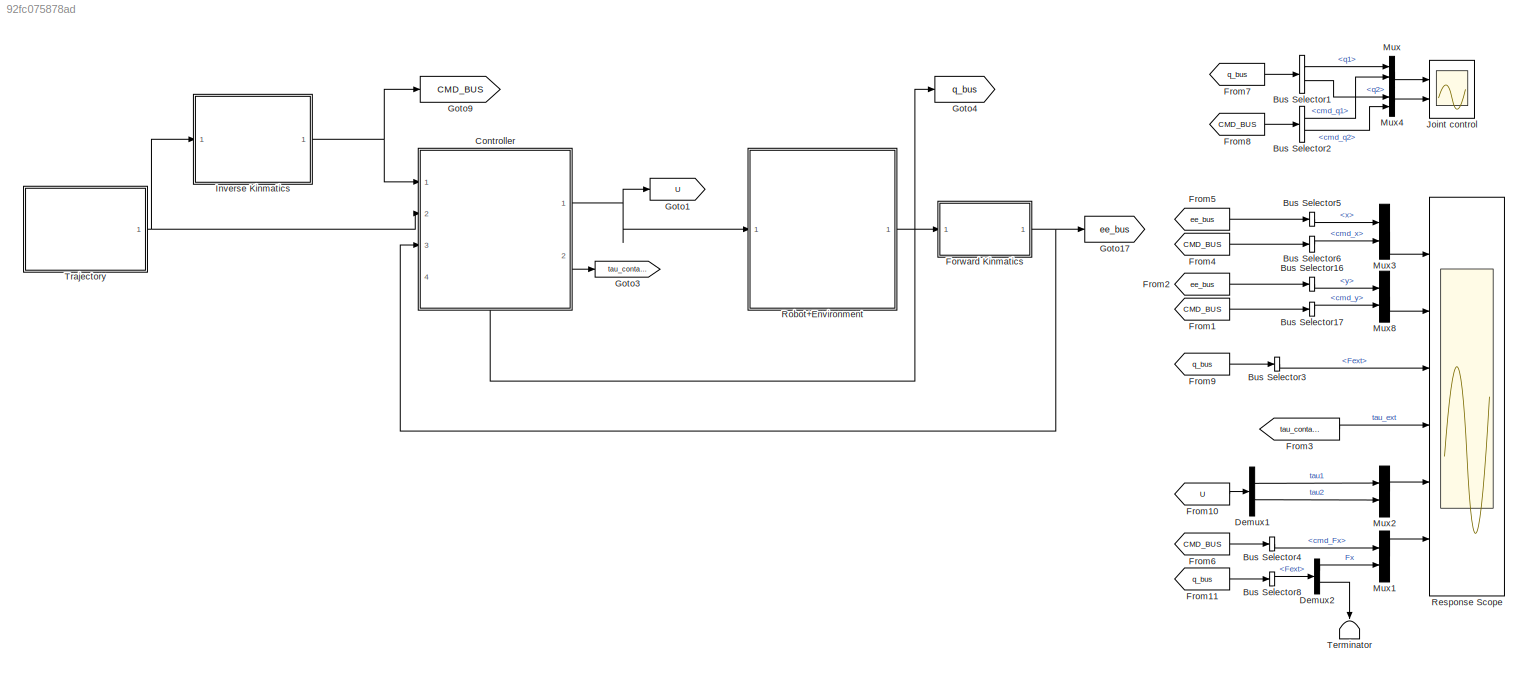
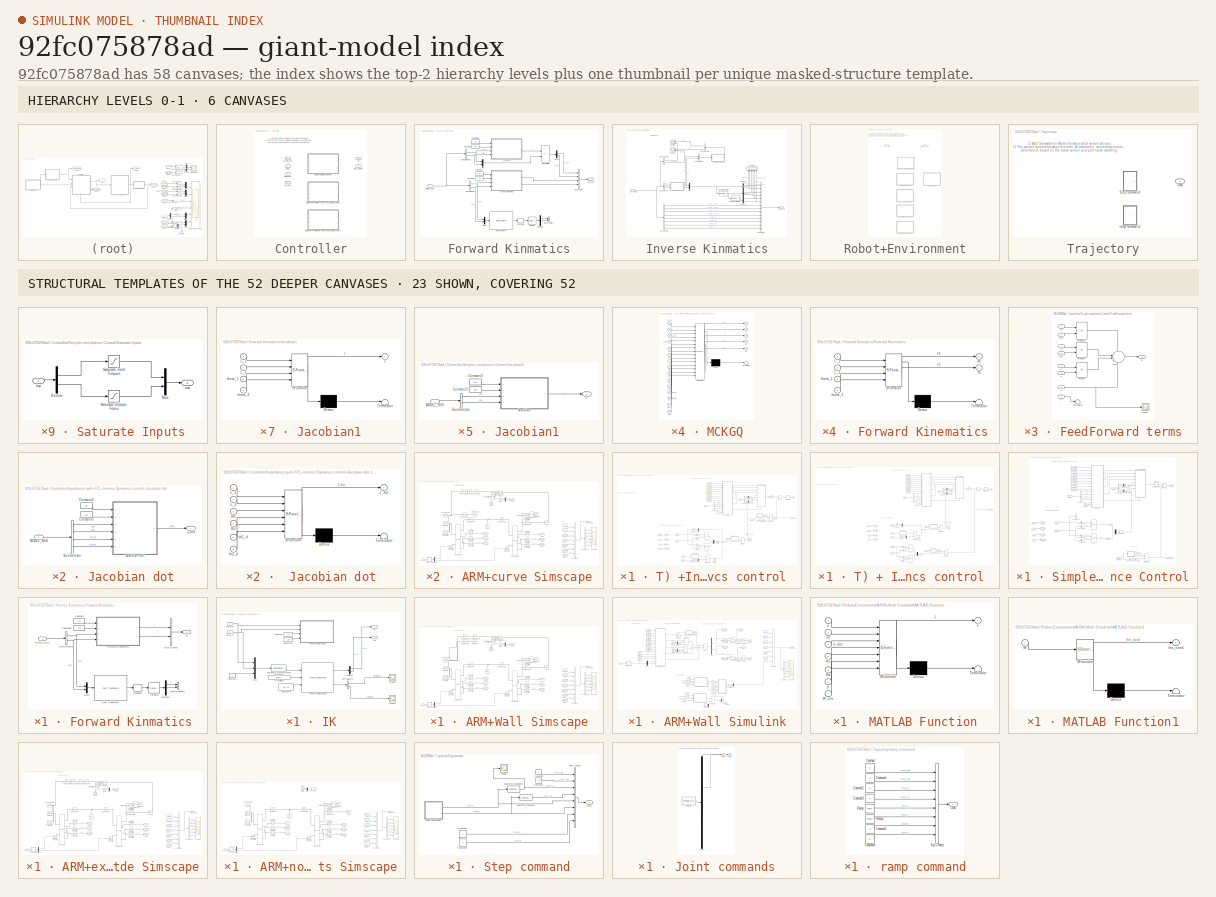
[diagram: thumbnail index - top-2 hierarchy levels (6 canvases) + 23 structural-template representatives of the remaining 52 canvases]
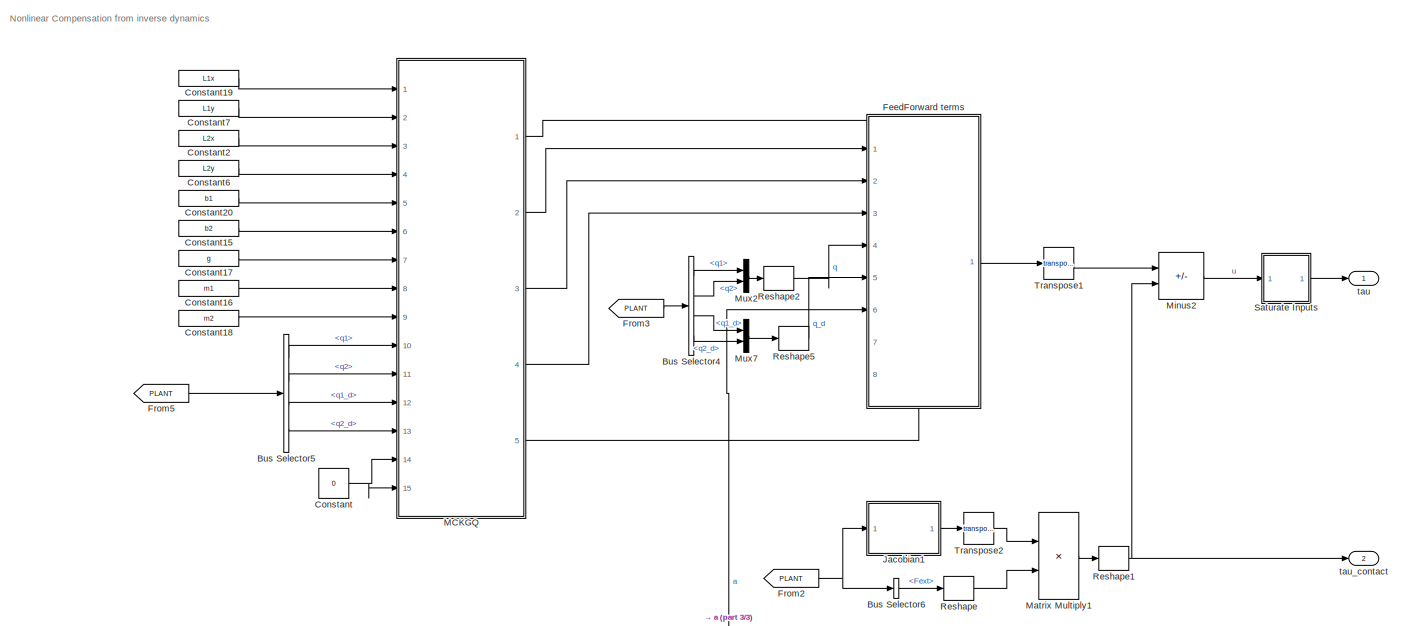
[diagram: Controller/Impedance (with F/T) +Inverse Dynamics control  - part 1/3, top right region]
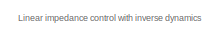
[diagram: Controller/Impedance (with F/T) +Inverse Dynamics control  - part 2/3, top left region]
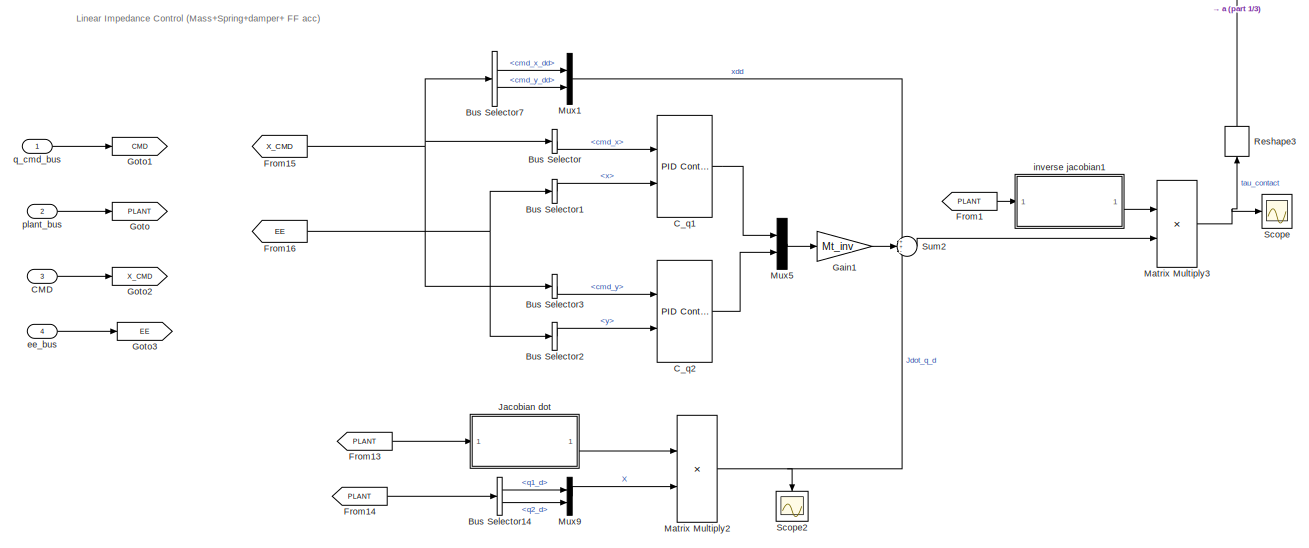
[diagram: Controller/Impedance (with F/T) +Inverse Dynamics control  - part 3/3, bottom center region]
MODEL slx_92fc075878ad
KIND model
CONFIG AbsTol = auto
CONFIG EnableMultiTasking = off
CONFIG FixedStep = auto
CONFIG MaxStep = 0.01
CONFIG MinStep = auto
CONFIG RelTol = 1e-3
CONFIG SampleTimeConstraint = Unconstrained
CONFIG SolverName = VariableStepAuto
CONFIG StartTime = 0.0
CONFIG StopTime = 12
BLOCK [BusSelector] Bus Selector1
  OutputSignals = q1,q2
  Ports = [1, 2]
BLOCK [BusSelector] Bus Selector16
  OutputSignals = y
  Ports = [1, 1]
BLOCK [BusSelector] Bus Selector17
  OutputSignals = cmd_y
  Ports = [1, 1]
BLOCK [BusSelector] Bus Selector2
  OutputSignals = cmd_q1,cmd_q2
  Ports = [1, 2]
BLOCK [BusSelector] Bus Selector3
  OutputSignals = Fext
  Ports = [1, 1]
BLOCK [BusSelector] Bus Selector4
  OutputSignals = cmd_Fx
  Ports = [1, 1]
BLOCK [BusSelector] Bus Selector5
  OutputSignals = x
  Ports = [1, 1]
BLOCK [BusSelector] Bus Selector6
  OutputSignals = cmd_x
  Ports = [1, 1]
BLOCK [BusSelector] Bus Selector8
  OutputSignals = Fext
  Ports = [1, 1]
BLOCK [SubSystem] Controller
  LabelModeActiveChoice = Impedance_FT_control
  PortSchema = {"entries":[{"content":{"sides":[{"content":{"connectorIds":["In1","In2","In3"]},"type":"ConnectorPlacement.EquallySpacedRectSide","uuid":"12e0e0c2-14f8-4f2c-9d40-c223a4f2431c"},{"content":{"connectorIds":["Out1","Out2"],"side":"RIGHT"},"type":"ConnectorPlacement.EquallySpacedRectSide","uuid":"b8197539-8519-4525-8d0f-ad401569c0d0"},{"content":{"connectorIds":[],"side":"TOP"},"type":"ConnectorPlace...<+408ch>
  Ports = [4, 2]
  PropagateVariantConditions = on
  RequestExecContextInheritance = off
  Variant = on
  VariantControlMode = label
BLOCK [Inport] Controller/CMD
  Port = 2
BLOCK [SubSystem] Controller/Impedance (with F//T) +Inverse Dynamics control 
  Ports = [4, 2]
  RequestExecContextInheritance = off
  VariantControl = Impedance_FT_control
BLOCK [BusSelector] Controller/Impedance (with F//T) +Inverse Dynamics control /Bus Selector
  OutputSignals = cmd_x
  Ports = [1, 1]
BLOCK [BusSelector] Controller/Impedance (with F//T) +Inverse Dynamics control /Bus Selector1
  OutputSignals = x
  Ports = [1, 1]
BLOCK [BusSelector] Controller/Impedance (with F//T) +Inverse Dynamics control /Bus Selector14
  OutputSignals = q1_d,q2_d
  Ports = [1, 2]
BLOCK [BusSelector] Controller/Impedance (with F//T) +Inverse Dynamics control /Bus Selector2
  OutputSignals = y
  Ports = [1, 1]
BLOCK [BusSelector] Controller/Impedance (with F//T) +Inverse Dynamics control /Bus Selector3
  OutputSignals = cmd_y
  Ports = [1, 1]
BLOCK [BusSelector] Controller/Impedance (with F//T) +Inverse Dynamics control /Bus Selector4
  OutputSignals = q1,q2,q1_d,q2_d
  Ports = [1, 4]
BLOCK [BusSelector] Controller/Impedance (with F//T) +Inverse Dynamics control /Bus Selector5
  OutputSignals = q1,q2,q1_d,q2_d
  Ports = [1, 4]
BLOCK [BusSelector] Controller/Impedance (with F//T) +Inverse Dynamics control /Bus Selector6
  OutputSignals = Fext
  Ports = [1, 1]
BLOCK [BusSelector] Controller/Impedance (with F//T) +Inverse Dynamics control /Bus Selector7
  OutputSignals = cmd_x_dd,cmd_y_dd
  Ports = [1, 2]
BLOCK [Inport] Controller/Impedance (with F//T) +Inverse Dynamics control /CMD
  Port = 3
BLOCK [Reference] Controller/Impedance (with F//T) +Inverse Dynamics control /C_q1  REF=pid_lib/PID Controller (2DOF)
  Ports = [2, 1]
  SourceBlock = pid_lib/PID Controller (2DOF)
  SourceProductBaseCode = SL
  SourceType = PID 2dof
BLOCK [Reference] Controller/Impedance (with F//T) +Inverse Dynamics control /C_q2  REF=pid_lib/PID Controller (2DOF)
  Ports = [2, 1]
  SourceBlock = pid_lib/PID Controller (2DOF)
  SourceProductBaseCode = SL
  SourceType = PID 2dof
BLOCK [Constant] Controller/Impedance (with F//T) +Inverse Dynamics control /Constant
  Value = 0
BLOCK [Constant] Controller/Impedance (with F//T) +Inverse Dynamics control /Constant15
  Value = b2
BLOCK [Constant] Controller/Impedance (with F//T) +Inverse Dynamics control /Constant16
  Value = m1
BLOCK [Constant] Controller/Impedance (with F//T) +Inverse Dynamics control /Constant17
  Value = g
BLOCK [Constant] Controller/Impedance (with F//T) +Inverse Dynamics control /Constant18
  Value = m2
BLOCK [Constant] Controller/Impedance (with F//T) +Inverse Dynamics control /Constant19
  Value = L1x
BLOCK [Constant] Controller/Impedance (with F//T) +Inverse Dynamics control /Constant2
  Value = L2x
BLOCK [Constant] Controller/Impedance (with F//T) +Inverse Dynamics control /Constant20
  Value = b1
BLOCK [Constant] Controller/Impedance (with F//T) +Inverse Dynamics control /Constant6
  Value = L2y
BLOCK [Constant] Controller/Impedance (with F//T) +Inverse Dynamics control /Constant7
  Value = L1y
BLOCK [SubSystem] Controller/Impedance (with F//T) +Inverse Dynamics control /FeedForward terms
  PortSchema = {"entries":[{"content":{"sides":[{"content":{"connectorIds":["In1","In2","In3","In4","In5","In6"]},"type":"ConnectorPlacement.EquallySpacedRectSide","uuid":"236e7a2f-027c-4887-b3e9-bc0e11a59ec6"},{"content":{"connectorIds":["Out1"],"side":"RIGHT"},"type":"ConnectorPlacement.EquallySpacedRectSide","uuid":"0b727d96-7650-4ea0-95ac-5fb1bad7af10"},{"content":{"connectorIds":["In7"],"side":"TOP"},"type"...<+424ch>  <repeated x3 — deduplicated; at blocks: FeedForward terms>
  Ports = [8, 1]
  RequestExecContextInheritance = off
BLOCK [Inport] Controller/Impedance (with F//T) +Inverse Dynamics control /FeedForward terms/C
  NameLocation = top
BLOCK [Inport] Controller/Impedance (with F//T) +Inverse Dynamics control /FeedForward terms/F
  Port = 8
BLOCK [Inport] Controller/Impedance (with F//T) +Inverse Dynamics control /FeedForward terms/G
  Port = 3
BLOCK [Inport] Controller/Impedance (with F//T) +Inverse Dynamics control /FeedForward terms/K
  Port = 2
BLOCK [Inport] Controller/Impedance (with F//T) +Inverse Dynamics control /FeedForward terms/M
  Port = 7
BLOCK [Product] Controller/Impedance (with F//T) +Inverse Dynamics control /FeedForward terms/Product
  Multiplication = Matrix(*)
  Ports = [2, 1]
BLOCK [Product] Controller/Impedance (with F//T) +Inverse Dynamics control /FeedForward terms/Product2
  Multiplication = Matrix(*)
  Ports = [2, 1]
BLOCK [Product] Controller/Impedance (with F//T) +Inverse Dynamics control /FeedForward terms/Product3
  Multiplication = Matrix(*)
  Ports = [2, 1]
BLOCK [Outport] Controller/Impedance (with F//T) +Inverse Dynamics control /FeedForward terms/Q
  NameLocation = top
BLOCK [Scope] Controller/Impedance (with F//T) +Inverse Dynamics control /FeedForward terms/Scope
  Floating = off
  NumInputPorts = 1
  Ports = [1]
  ScopeSpecificationString = Simulink.scopes.TimeScopeBlockCfg('CurrentConfiguration', extmgr.ConfigurationSet(extmgr.Configuration('Core','General UI',true),extmgr.Configuration('Core','Source UI',true),extmgr.Configuration('Sources','WiredSimulink',true,'DataLoggingVariableName','ScopeData3'),extmgr.Configuration('Visuals','Time Domain',true,'SerializedDisplays',{struct('MinYLimReal','-2.62865','MaxYLimReal','17.45371','YLa...<+1363ch>  <repeated x3 — deduplicated; at blocks: Scope>
BLOCK [Sum] Controller/Impedance (with F//T) +Inverse Dynamics control /FeedForward terms/Sum
  Inputs = +|+|+|+
  Ports = [4, 1]
BLOCK [Terminator] Controller/Impedance (with F//T) +Inverse Dynamics control /FeedForward terms/Terminator
BLOCK [Inport] Controller/Impedance (with F//T) +Inverse Dynamics control /FeedForward terms/q
  Port = 4
BLOCK [Inport] Controller/Impedance (with F//T) +Inverse Dynamics control /FeedForward terms/q_d
  Port = 5
BLOCK [Inport] Controller/Impedance (with F//T) +Inverse Dynamics control /FeedForward terms/q_dd
  Port = 6
BLOCK [From] Controller/Impedance (with F//T) +Inverse Dynamics control /From1
  GotoTag = PLANT
BLOCK [From] Controller/Impedance (with F//T) +Inverse Dynamics control /From13
  GotoTag = PLANT
BLOCK [From] Controller/Impedance (with F//T) +Inverse Dynamics control /From14
  GotoTag = PLANT
BLOCK [From] Controller/Impedance (with F//T) +Inverse Dynamics control /From15
  GotoTag = X_CMD
BLOCK [From] Controller/Impedance (with F//T) +Inverse Dynamics control /From16
  GotoTag = EE
BLOCK [From] Controller/Impedance (with F//T) +Inverse Dynamics control /From2
  GotoTag = PLANT
BLOCK [From] Controller/Impedance (with F//T) +Inverse Dynamics control /From3
  GotoTag = PLANT
BLOCK [From] Controller/Impedance (with F//T) +Inverse Dynamics control /From5
  GotoTag = PLANT
BLOCK [Gain] Controller/Impedance (with F//T) +Inverse Dynamics control /Gain1
  Gain = Mt_inv
BLOCK [Goto] Controller/Impedance (with F//T) +Inverse Dynamics control /Goto
  GotoTag = PLANT
BLOCK [Goto] Controller/Impedance (with F//T) +Inverse Dynamics control /Goto1
  GotoTag = CMD
BLOCK [Goto] Controller/Impedance (with F//T) +Inverse Dynamics control /Goto2
  GotoTag = X_CMD
BLOCK [Goto] Controller/Impedance (with F//T) +Inverse Dynamics control /Goto3
  GotoTag = EE
BLOCK [SubSystem] Controller/Impedance (with F//T) +Inverse Dynamics control /Jacobian dot
  Ports = [1, 1]
  RequestExecContextInheritance = off
BLOCK [SubSystem] Controller/Impedance (with F//T) +Inverse Dynamics control /Jacobian dot/ Jacobian dot
  ErrorFcn = Stateflow.Translate.translate
  NameLocation = top
  PermitHierarchicalResolution = ExplicitOnly
  Ports = [6, 1]
  RequestExecContextInheritance = off
  SFBlockType = MATLAB Function
  TreatAsAtomicUnit = on
BLOCK [Demux] Controller/Impedance (with F//T) +Inverse Dynamics control /Jacobian dot/ Jacobian dot/ Demux 
  Outputs = 1
  Ports = [1, 1]
BLOCK [S-Function] Controller/Impedance (with F//T) +Inverse Dynamics control /Jacobian dot/ Jacobian dot/ SFunction 
  EnableBusSupport = on
  FunctionName = sf_sfun
  PortCounts = [6 2]
  Ports = [6, 2]
  SFcnIsStateOwnerBlock = off
  SFunctionDeploymentMode = off
  Tag = Stateflow S-Function 16
BLOCK [Terminator] Controller/Impedance (with F//T) +Inverse Dynamics control /Jacobian dot/ Jacobian dot/ Terminator 
BLOCK [Outport] Controller/Impedance (with F//T) +Inverse Dynamics control /Jacobian dot/ Jacobian dot/J_dot
BLOCK [Inport] Controller/Impedance (with F//T) +Inverse Dynamics control /Jacobian dot/ Jacobian dot/L_1
BLOCK [Inport] Controller/Impedance (with F//T) +Inverse Dynamics control /Jacobian dot/ Jacobian dot/L_2
  Port = 2
BLOCK [Inport] Controller/Impedance (with F//T) +Inverse Dynamics control /Jacobian dot/ Jacobian dot/th1
  Port = 3
BLOCK [Inport] Controller/Impedance (with F//T) +Inverse Dynamics control /Jacobian dot/ Jacobian dot/th1_d
  Port = 5
BLOCK [Inport] Controller/Impedance (with F//T) +Inverse Dynamics control /Jacobian dot/ Jacobian dot/th2
  Port = 4
BLOCK [Inport] Controller/Impedance (with F//T) +Inverse Dynamics control /Jacobian dot/ Jacobian dot/th2_d
  Port = 6
BLOCK [BusSelector] Controller/Impedance (with F//T) +Inverse Dynamics control /Jacobian dot/Bus Selector
  OutputSignals = q1,q2,q1_d,q2_d
  Ports = [1, 4]
BLOCK [Constant] Controller/Impedance (with F//T) +Inverse Dynamics control /Jacobian dot/Constant2
  Value = L1x
BLOCK [Constant] Controller/Impedance (with F//T) +Inverse Dynamics control /Jacobian dot/Constant3
  Value = L2x
BLOCK [Outport] Controller/Impedance (with F//T) +Inverse Dynamics control /Jacobian dot/J_dot
BLOCK [Inport] Controller/Impedance (with F//T) +Inverse Dynamics control /Jacobian dot/MODEL_BUS
BLOCK [SubSystem] Controller/Impedance (with F//T) +Inverse Dynamics control /Jacobian1
  Ports = [1, 1]
  RequestExecContextInheritance = off
BLOCK [BusSelector] Controller/Impedance (with F//T) +Inverse Dynamics control /Jacobian1/Bus Selector
  OutputSignals = q1,q2
  Ports = [1, 2]
BLOCK [Constant] Controller/Impedance (with F//T) +Inverse Dynamics control /Jacobian1/Constant2
  Value = L1x
BLOCK [Constant] Controller/Impedance (with F//T) +Inverse Dynamics control /Jacobian1/Constant3
  Value = L2x
BLOCK [Outport] Controller/Impedance (with F//T) +Inverse Dynamics control /Jacobian1/J
BLOCK [SubSystem] Controller/Impedance (with F//T) +Inverse Dynamics control /Jacobian1/Jacobian
  ErrorFcn = Stateflow.Translate.translate
  NameLocation = top
  PermitHierarchicalResolution = ExplicitOnly
  Ports = [4, 1]
  RequestExecContextInheritance = off
  SFBlockType = MATLAB Function
  TreatAsAtomicUnit = on
BLOCK [Demux] Controller/Impedance (with F//T) +Inverse Dynamics control /Jacobian1/Jacobian/ Demux 
  Outputs = 1
  Ports = [1, 1]
BLOCK [S-Function] Controller/Impedance (with F//T) +Inverse Dynamics control /Jacobian1/Jacobian/ SFunction 
  EnableBusSupport = on
  FunctionName = sf_sfun
  PortCounts = [4 2]
  Ports = [4, 2]
  SFcnIsStateOwnerBlock = off
  SFunctionDeploymentMode = off
  Tag = Stateflow S-Function 31
BLOCK [Terminator] Controller/Impedance (with F//T) +Inverse Dynamics control /Jacobian1/Jacobian/ Terminator 
BLOCK [Outport] Controller/Impedance (with F//T) +Inverse Dynamics control /Jacobian1/Jacobian/J
BLOCK [Inport] Controller/Impedance (with F//T) +Inverse Dynamics control /Jacobian1/Jacobian/L_1
BLOCK [Inport] Controller/Impedance (with F//T) +Inverse Dynamics control /Jacobian1/Jacobian/L_2
  Port = 2
BLOCK [Inport] Controller/Impedance (with F//T) +Inverse Dynamics control /Jacobian1/Jacobian/theta_1
  Port = 3
BLOCK [Inport] Controller/Impedance (with F//T) +Inverse Dynamics control /Jacobian1/Jacobian/theta_2
  Port = 4
BLOCK [Inport] Controller/Impedance (with F//T) +Inverse Dynamics control /Jacobian1/MODEL_BUS
BLOCK [SubSystem] Controller/Impedance (with F//T) +Inverse Dynamics control /MCKGQ
  ErrorFcn = Stateflow.Translate.translate
  PermitHierarchicalResolution = ExplicitOnly
  Ports = [15, 5]
  RequestExecContextInheritance = off
  SFBlockType = MATLAB Function
  TreatAsAtomicUnit = on
BLOCK [Demux] Controller/Impedance (with F//T) +Inverse Dynamics control /MCKGQ/ Demux 
  Outputs = 1
  Ports = [1, 1]
BLOCK [S-Function] Controller/Impedance (with F//T) +Inverse Dynamics control /MCKGQ/ SFunction 
  EnableBusSupport = on
  FunctionName = sf_sfun
  PortCounts = [15 6]
  Ports = [15, 6]
  SFcnIsStateOwnerBlock = off
  SFunctionDeploymentMode = off
  Tag = Stateflow S-Function 5
BLOCK [Terminator] Controller/Impedance (with F//T) +Inverse Dynamics control /MCKGQ/ Terminator 
BLOCK [Outport] Controller/Impedance (with F//T) +Inverse Dynamics control /MCKGQ/C
  Port = 2
BLOCK [Outport] Controller/Impedance (with F//T) +Inverse Dynamics control /MCKGQ/G
  Port = 4
BLOCK [Outport] Controller/Impedance (with F//T) +Inverse Dynamics control /MCKGQ/K
  Port = 3
BLOCK [Inport] Controller/Impedance (with F//T) +Inverse Dynamics control /MCKGQ/L_1x
BLOCK [Inport] Controller/Impedance (with F//T) +Inverse Dynamics control /MCKGQ/L_1y
  Port = 2
BLOCK [Inport] Controller/Impedance (with F//T) +Inverse Dynamics control /MCKGQ/L_2x
  Port = 3
BLOCK [Inport] Controller/Impedance (with F//T) +Inverse Dynamics control /MCKGQ/L_2y
  Port = 4
BLOCK [Outport] Controller/Impedance (with F//T) +Inverse Dynamics control /MCKGQ/M
BLOCK [Outport] Controller/Impedance (with F//T) +Inverse Dynamics control /MCKGQ/Q
  Port = 5
BLOCK [Inport] Controller/Impedance (with F//T) +Inverse Dynamics control /MCKGQ/b1
  Port = 5
BLOCK [Inport] Controller/Impedance (with F//T) +Inverse Dynamics control /MCKGQ/b2
  Port = 6
BLOCK [Inport] Controller/Impedance (with F//T) +Inverse Dynamics control /MCKGQ/g
  Port = 7
BLOCK [Inport] Controller/Impedance (with F//T) +Inverse Dynamics control /MCKGQ/m1
  Port = 8
BLOCK [Inport] Controller/Impedance (with F//T) +Inverse Dynamics control /MCKGQ/m2
  Port = 9
BLOCK [Inport] Controller/Impedance (with F//T) +Inverse Dynamics control /MCKGQ/q1
  Port = 10
BLOCK [Inport] Controller/Impedance (with F//T) +Inverse Dynamics control /MCKGQ/q1_D
  Port = 12
BLOCK [Inport] Controller/Impedance (with F//T) +Inverse Dynamics control /MCKGQ/q2
  Port = 11
BLOCK [Inport] Controller/Impedance (with F//T) +Inverse Dynamics control /MCKGQ/q2_D
  Port = 13
BLOCK [Inport] Controller/Impedance (with F//T) +Inverse Dynamics control /MCKGQ/tau1
  Port = 14
BLOCK [Inport] Controller/Impedance (with F//T) +Inverse Dynamics control /MCKGQ/tau2
  Port = 15
BLOCK [Product] Controller/Impedance (with F//T) +Inverse Dynamics control /Matrix Multiply1
  Multiplication = Matrix(*)
  Ports = [2, 1]
BLOCK [Product] Controller/Impedance (with F//T) +Inverse Dynamics control /Matrix Multiply2
  Multiplication = Matrix(*)
  Ports = [2, 1]
BLOCK [Product] Controller/Impedance (with F//T) +Inverse Dynamics control /Matrix Multiply3
  Multiplication = Matrix(*)
  Ports = [2, 1]
BLOCK [Sum] Controller/Impedance (with F//T) +Inverse Dynamics control /Minus2
  IconShape = rectangular
  Inputs = +-
  Ports = [2, 1]
BLOCK [Mux] Controller/Impedance (with F//T) +Inverse Dynamics control /Mux1
  DisplayOption = bar
  Inputs = 2
  Ports = [2, 1]
BLOCK [Mux] Controller/Impedance (with F//T) +Inverse Dynamics control /Mux2
  DisplayOption = bar
  Inputs = 2
  Ports = [2, 1]
BLOCK [Mux] Controller/Impedance (with F//T) +Inverse Dynamics control /Mux5
  DisplayOption = bar
  Inputs = 2
  Ports = [2, 1]
BLOCK [Mux] Controller/Impedance (with F//T) +Inverse Dynamics control /Mux7
  DisplayOption = bar
  Inputs = 2
  Ports = [2, 1]
BLOCK [Mux] Controller/Impedance (with F//T) +Inverse Dynamics control /Mux9
  DisplayOption = bar
  Inputs = 2
  Ports = [2, 1]
BLOCK [Reshape] Controller/Impedance (with F//T) +Inverse Dynamics control /Reshape
  OutputDimensionality = Column vector (2-D)
  Ports = [1, 1]
BLOCK [Reshape] Controller/Impedance (with F//T) +Inverse Dynamics control /Reshape1
  OutputDimensionality = Row vector (2-D)
  Ports = [1, 1]
BLOCK [Reshape] Controller/Impedance (with F//T) +Inverse Dynamics control /Reshape2
  OutputDimensionality = Column vector (2-D)
  Ports = [1, 1]
BLOCK [Reshape] Controller/Impedance (with F//T) +Inverse Dynamics control /Reshape3
  NameLocation = right
  OutputDimensionality = Column vector (2-D)
  Ports = [1, 1]
BLOCK [Reshape] Controller/Impedance (with F//T) +Inverse Dynamics control /Reshape5
  OutputDimensionality = Column vector (2-D)
  Ports = [1, 1]
BLOCK [SubSystem] Controller/Impedance (with F//T) +Inverse Dynamics control /Saturate Inputs
  Ports = [1, 1]
  RequestExecContextInheritance = off
BLOCK [Demux] Controller/Impedance (with F//T) +Inverse Dynamics control /Saturate Inputs/Demux
  Outputs = 2
  Ports = [1, 2]
BLOCK [Mux] Controller/Impedance (with F//T) +Inverse Dynamics control /Saturate Inputs/Mux
  DisplayOption = bar
  Inputs = 2
  Ports = [2, 1]
BLOCK [Saturate] Controller/Impedance (with F//T) +Inverse Dynamics control /Saturate Inputs/Saturate Gripper Force
  LowerLimit = -max_joint_torque2
  UpperLimit = max_joint_torque2
BLOCK [Saturate] Controller/Impedance (with F//T) +Inverse Dynamics control /Saturate Inputs/Saturate Joint Torques
  LowerLimit = -max_joint_torque1
  UpperLimit = max_joint_torque1
BLOCK [Inport] Controller/Impedance (with F//T) +Inverse Dynamics control /Saturate Inputs/inp
BLOCK [Outport] Controller/Impedance (with F//T) +Inverse Dynamics control /Saturate Inputs/sat
  VectorParamsAs1DForOutWhenUnconnected = off
BLOCK [Scope] Controller/Impedance (with F//T) +Inverse Dynamics control /Scope
  Floating = off
  NumInputPorts = 1
  Ports = [1]
  ScopeSpecificationString = Simulink.scopes.TimeScopeBlockCfg('CurrentConfiguration', extmgr.ConfigurationSet(extmgr.Configuration('Core','General UI',true),extmgr.Configuration('Core','Source UI',true),extmgr.Configuration('Sources','WiredSimulink',true,'DataLoggingVariableName','ScopeData1'),extmgr.Configuration('Visuals','Time Domain',true,'SerializedDisplays',{struct('MinYLimReal','-11084.98446','MaxYLimReal','1542.63793...<+1416ch>
BLOCK [Scope] Controller/Impedance (with F//T) +Inverse Dynamics control /Scope2
  Floating = off
  NameLocation = left
  NumInputPorts = 1
  Ports = [1]
  ScopeSpecificationString = Simulink.scopes.TimeScopeBlockCfg('CurrentConfiguration', extmgr.ConfigurationSet(extmgr.Configuration('Core','General UI',true),extmgr.Configuration('Core','Source UI',true),extmgr.Configuration('Sources','WiredSimulink',true,'DataLoggingVariableName','ScopeData3'),extmgr.Configuration('Visuals','Time Domain',true,'SerializedDisplays',{struct('MinYLimReal','-19.97717','MaxYLimReal','3.96256','YLa...<+1386ch>
BLOCK [Sum] Controller/Impedance (with F//T) +Inverse Dynamics control /Sum2
  Inputs = ++-
  Ports = [3, 1]
BLOCK [Math] Controller/Impedance (with F//T) +Inverse Dynamics control /Transpose1
  Operator = transpose
  Ports = [1, 1]
BLOCK [Math] Controller/Impedance (with F//T) +Inverse Dynamics control /Transpose2
  Operator = transpose
  Ports = [1, 1]
BLOCK [Inport] Controller/Impedance (with F//T) +Inverse Dynamics control /ee_bus
  Port = 4
BLOCK [SubSystem] Controller/Impedance (with F//T) +Inverse Dynamics control /inverse jacobian1
  Ports = [1, 1]
  RequestExecContextInheritance = off
BLOCK [BusSelector] Controller/Impedance (with F//T) +Inverse Dynamics control /inverse jacobian1/Bus Selector
  OutputSignals = q1,q2
  Ports = [1, 2]
BLOCK [Constant] Controller/Impedance (with F//T) +Inverse Dynamics control /inverse jacobian1/Constant2
  Value = L1x
BLOCK [Constant] Controller/Impedance (with F//T) +Inverse Dynamics control /inverse jacobian1/Constant3
  Value = L2x
BLOCK [SubSystem] Controller/Impedance (with F//T) +Inverse Dynamics control /inverse jacobian1/Inverse Jacobian
  ErrorFcn = Stateflow.Translate.translate
  NameLocation = top
  PermitHierarchicalResolution = ExplicitOnly
  Ports = [4, 1]
  RequestExecContextInheritance = off
  SFBlockType = MATLAB Function
  TreatAsAtomicUnit = on
BLOCK [Demux] Controller/Impedance (with F//T) +Inverse Dynamics control /inverse jacobian1/Inverse Jacobian/ Demux 
  Outputs = 1
  Ports = [1, 1]
BLOCK [S-Function] Controller/Impedance (with F//T) +Inverse Dynamics control /inverse jacobian1/Inverse Jacobian/ SFunction 
  EnableBusSupport = on
  FunctionName = sf_sfun
  PortCounts = [4 2]
  Ports = [4, 2]
  SFcnIsStateOwnerBlock = off
  SFunctionDeploymentMode = off
  Tag = Stateflow S-Function 20
BLOCK [Terminator] Controller/Impedance (with F//T) +Inverse Dynamics control /inverse jacobian1/Inverse Jacobian/ Terminator 
BLOCK [Inport] Controller/Impedance (with F//T) +Inverse Dynamics control /inverse jacobian1/Inverse Jacobian/L_1
BLOCK [Inport] Controller/Impedance (with F//T) +Inverse Dynamics control /inverse jacobian1/Inverse Jacobian/L_2
  Port = 2
BLOCK [Outport] Controller/Impedance (with F//T) +Inverse Dynamics control /inverse jacobian1/Inverse Jacobian/inv_J
BLOCK [Inport] Controller/Impedance (with F//T) +Inverse Dynamics control /inverse jacobian1/Inverse Jacobian/th1
  Port = 3
BLOCK [Inport] Controller/Impedance (with F//T) +Inverse Dynamics control /inverse jacobian1/Inverse Jacobian/th2
  Port = 4
BLOCK [Inport] Controller/Impedance (with F//T) +Inverse Dynamics control /inverse jacobian1/MODEL_BUS
BLOCK [Outport] Controller/Impedance (with F//T) +Inverse Dynamics control /inverse jacobian1/inv_J
BLOCK [Inport] Controller/Impedance (with F//T) +Inverse Dynamics control /plant_bus
  Port = 2
BLOCK [Inport] Controller/Impedance (with F//T) +Inverse Dynamics control /q_cmd_bus
BLOCK [Outport] Controller/Impedance (with F//T) +Inverse Dynamics control /tau
BLOCK [Outport] Controller/Impedance (with F//T) +Inverse Dynamics control /tau_contact
  Port = 2
BLOCK [SubSystem] Controller/Impedance (without F//T) + Inverse Dynamics control 
  Ports = [4, 2]
  RequestExecContextInheritance = off
  VariantControl = Impedance_no/FT_control
BLOCK [BusSelector] Controller/Impedance (without F//T) + Inverse Dynamics control /Bus Selector
  OutputSignals = cmd_x
  Ports = [1, 1]
BLOCK [BusSelector] Controller/Impedance (without F//T) + Inverse Dynamics control /Bus Selector1
  OutputSignals = x
  Ports = [1, 1]
BLOCK [BusSelector] Controller/Impedance (without F//T) + Inverse Dynamics control /Bus Selector14
  OutputSignals = q1_d,q2_d
  Ports = [1, 2]
BLOCK [BusSelector] Controller/Impedance (without F//T) + Inverse Dynamics control /Bus Selector2
  OutputSignals = y
  Ports = [1, 1]
BLOCK [BusSelector] Controller/Impedance (without F//T) + Inverse Dynamics control /Bus Selector3
  OutputSignals = cmd_y
  Ports = [1, 1]
BLOCK [BusSelector] Controller/Impedance (without F//T) + Inverse Dynamics control /Bus Selector4
  OutputSignals = q1,q2,q1_d,q2_d
  Ports = [1, 4]
BLOCK [BusSelector] Controller/Impedance (without F//T) + Inverse Dynamics control /Bus Selector5
  OutputSignals = q1,q2,q1_d,q2_d
  Ports = [1, 4]
BLOCK [BusSelector] Controller/Impedance (without F//T) + Inverse Dynamics control /Bus Selector7
  OutputSignals = cmd_x_dd,cmd_y_dd
  Ports = [1, 2]
BLOCK [Inport] Controller/Impedance (without F//T) + Inverse Dynamics control /CMD
  Port = 3
BLOCK [Reference] Controller/Impedance (without F//T) + Inverse Dynamics control /C_q1  REF=pid_lib/PID Controller (2DOF)
  Ports = [2, 1]
  SourceBlock = pid_lib/PID Controller (2DOF)
  SourceProductBaseCode = SL
  SourceType = PID 2dof
BLOCK [Reference] Controller/Impedance (without F//T) + Inverse Dynamics control /C_q2  REF=pid_lib/PID Controller (2DOF)
  Ports = [2, 1]
  SourceBlock = pid_lib/PID Controller (2DOF)
  SourceProductBaseCode = SL
  SourceType = PID 2dof
BLOCK [Constant] Controller/Impedance (without F//T) + Inverse Dynamics control /Constant
  Value = 0
BLOCK [Constant] Controller/Impedance (without F//T) + Inverse Dynamics control /Constant15
  Value = b2
BLOCK [Constant] Controller/Impedance (without F//T) + Inverse Dynamics control /Constant16
  Value = m1
BLOCK [Constant] Controller/Impedance (without F//T) + Inverse Dynamics control /Constant17
  Value = g
BLOCK [Constant] Controller/Impedance (without F//T) + Inverse Dynamics control /Constant18
  Value = m2
BLOCK [Constant] Controller/Impedance (without F//T) + Inverse Dynamics control /Constant19
  Value = L1x
BLOCK [Constant] Controller/Impedance (without F//T) + Inverse Dynamics control /Constant2
  Value = L2x
BLOCK [Constant] Controller/Impedance (without F//T) + Inverse Dynamics control /Constant20
  Value = b1
BLOCK [Constant] Controller/Impedance (without F//T) + Inverse Dynamics control /Constant6
  Value = L2y
BLOCK [Constant] Controller/Impedance (without F//T) + Inverse Dynamics control /Constant7
  Value = L1y
BLOCK [SubSystem] Controller/Impedance (without F//T) + Inverse Dynamics control /FeedForward terms
  Ports = [8, 1]
  RequestExecContextInheritance = off
BLOCK [Inport] Controller/Impedance (without F//T) + Inverse Dynamics control /FeedForward terms/C
  NameLocation = top
BLOCK [Inport] Controller/Impedance (without F//T) + Inverse Dynamics control /FeedForward terms/F
  Port = 8
BLOCK [Inport] Controller/Impedance (without F//T) + Inverse Dynamics control /FeedForward terms/G
  Port = 3
BLOCK [Inport] Controller/Impedance (without F//T) + Inverse Dynamics control /FeedForward terms/K
  Port = 2
BLOCK [Inport] Controller/Impedance (without F//T) + Inverse Dynamics control /FeedForward terms/M
  Port = 7
BLOCK [Product] Controller/Impedance (without F//T) + Inverse Dynamics control /FeedForward terms/Product
  Multiplication = Matrix(*)
  Ports = [2, 1]
BLOCK [Product] Controller/Impedance (without F//T) + Inverse Dynamics control /FeedForward terms/Product2
  Multiplication = Matrix(*)
  Ports = [2, 1]
BLOCK [Product] Controller/Impedance (without F//T) + Inverse Dynamics control /FeedForward terms/Product3
  Multiplication = Matrix(*)
  Ports = [2, 1]
BLOCK [Outport] Controller/Impedance (without F//T) + Inverse Dynamics control /FeedForward terms/Q
  NameLocation = top
BLOCK [Scope] Controller/Impedance (without F//T) + Inverse Dynamics control /FeedForward terms/Scope
  Floating = off
  NumInputPorts = 1
  Ports = [1]
BLOCK [Sum] Controller/Impedance (without F//T) + Inverse Dynamics control /FeedForward terms/Sum
  Inputs = +|+|+|+
  Ports = [4, 1]
BLOCK [Terminator] Controller/Impedance (without F//T) + Inverse Dynamics control /FeedForward terms/Terminator
BLOCK [Inport] Controller/Impedance (without F//T) + Inverse Dynamics control /FeedForward terms/q
  Port = 4
BLOCK [Inport] Controller/Impedance (without F//T) + Inverse Dynamics control /FeedForward terms/q_d
  Port = 5
BLOCK [Inport] Controller/Impedance (without F//T) + Inverse Dynamics control /FeedForward terms/q_dd
  Port = 6
BLOCK [From] Controller/Impedance (without F//T) + Inverse Dynamics control /From1
  GotoTag = PLANT
BLOCK [From] Controller/Impedance (without F//T) + Inverse Dynamics control /From13
  GotoTag = PLANT
BLOCK [From] Controller/Impedance (without F//T) + Inverse Dynamics control /From14
  GotoTag = PLANT
BLOCK [From] Controller/Impedance (without F//T) + Inverse Dynamics control /From15
  GotoTag = X_CMD
BLOCK [From] Controller/Impedance (without F//T) + Inverse Dynamics control /From16
  GotoTag = EE
BLOCK [From] Controller/Impedance (without F//T) + Inverse Dynamics control /From2
  GotoTag = X_CMD
BLOCK [From] Controller/Impedance (without F//T) + Inverse Dynamics control /From3
  GotoTag = PLANT
BLOCK [From] Controller/Impedance (without F//T) + Inverse Dynamics control /From5
  GotoTag = PLANT
BLOCK [From] Controller/Impedance (without F//T) + Inverse Dynamics control /From6
  GotoTag = PLANT
BLOCK [Goto] Controller/Impedance (without F//T) + Inverse Dynamics control /Goto
  GotoTag = PLANT
BLOCK [Goto] Controller/Impedance (without F//T) + Inverse Dynamics control /Goto1
  GotoTag = CMD
BLOCK [Goto] Controller/Impedance (without F//T) + Inverse Dynamics control /Goto2
  GotoTag = X_CMD
BLOCK [Goto] Controller/Impedance (without F//T) + Inverse Dynamics control /Goto3
  GotoTag = EE
BLOCK [SubSystem] Controller/Impedance (without F//T) + Inverse Dynamics control /Jacobian dot
  Ports = [1, 1]
  RequestExecContextInheritance = off
BLOCK [SubSystem] Controller/Impedance (without F//T) + Inverse Dynamics control /Jacobian dot/ Jacobian dot
  ErrorFcn = Stateflow.Translate.translate
  NameLocation = top
  PermitHierarchicalResolution = ExplicitOnly
  Ports = [6, 1]
  RequestExecContextInheritance = off
  SFBlockType = MATLAB Function
  TreatAsAtomicUnit = on
BLOCK [Demux] Controller/Impedance (without F//T) + Inverse Dynamics control /Jacobian dot/ Jacobian dot/ Demux 
  Outputs = 1
  Ports = [1, 1]
BLOCK [S-Function] Controller/Impedance (without F//T) + Inverse Dynamics control /Jacobian dot/ Jacobian dot/ SFunction 
  EnableBusSupport = on
  FunctionName = sf_sfun
  PortCounts = [6 2]
  Ports = [6, 2]
  SFcnIsStateOwnerBlock = off
  SFunctionDeploymentMode = off
  Tag = Stateflow S-Function 25
BLOCK [Terminator] Controller/Impedance (without F//T) + Inverse Dynamics control /Jacobian dot/ Jacobian dot/ Terminator 
BLOCK [Outport] Controller/Impedance (without F//T) + Inverse Dynamics control /Jacobian dot/ Jacobian dot/J_dot
BLOCK [Inport] Controller/Impedance (without F//T) + Inverse Dynamics control /Jacobian dot/ Jacobian dot/L_1
BLOCK [Inport] Controller/Impedance (without F//T) + Inverse Dynamics control /Jacobian dot/ Jacobian dot/L_2
  Port = 2
BLOCK [Inport] Controller/Impedance (without F//T) + Inverse Dynamics control /Jacobian dot/ Jacobian dot/th1
  Port = 3
BLOCK [Inport] Controller/Impedance (without F//T) + Inverse Dynamics control /Jacobian dot/ Jacobian dot/th1_d
  Port = 5
BLOCK [Inport] Controller/Impedance (without F//T) + Inverse Dynamics control /Jacobian dot/ Jacobian dot/th2
  Port = 4
BLOCK [Inport] Controller/Impedance (without F//T) + Inverse Dynamics control /Jacobian dot/ Jacobian dot/th2_d
  Port = 6
BLOCK [BusSelector] Controller/Impedance (without F//T) + Inverse Dynamics control /Jacobian dot/Bus Selector
  OutputSignals = q1,q2,q1_d,q2_d
  Ports = [1, 4]
BLOCK [Constant] Controller/Impedance (without F//T) + Inverse Dynamics control /Jacobian dot/Constant2
  Value = L1x
BLOCK [Constant] Controller/Impedance (without F//T) + Inverse Dynamics control /Jacobian dot/Constant3
  Value = L2x
BLOCK [Outport] Controller/Impedance (without F//T) + Inverse Dynamics control /Jacobian dot/J_dot
BLOCK [Inport] Controller/Impedance (without F//T) + Inverse Dynamics control /Jacobian dot/MODEL_BUS
BLOCK [SubSystem] Controller/Impedance (without F//T) + Inverse Dynamics control /Jacobian1
  Ports = [1, 1]
  RequestExecContextInheritance = off
BLOCK [BusSelector] Controller/Impedance (without F//T) + Inverse Dynamics control /Jacobian1/Bus Selector
  OutputSignals = q1,q2
  Ports = [1, 2]
BLOCK [Constant] Controller/Impedance (without F//T) + Inverse Dynamics control /Jacobian1/Constant2
  Value = L1x
BLOCK [Constant] Controller/Impedance (without F//T) + Inverse Dynamics control /Jacobian1/Constant3
  Value = L2x
BLOCK [Outport] Controller/Impedance (without F//T) + Inverse Dynamics control /Jacobian1/J
BLOCK [SubSystem] Controller/Impedance (without F//T) + Inverse Dynamics control /Jacobian1/Jacobian
  ErrorFcn = Stateflow.Translate.translate
  NameLocation = top
  PermitHierarchicalResolution = ExplicitOnly
  Ports = [4, 1]
  RequestExecContextInheritance = off
  SFBlockType = MATLAB Function
  TreatAsAtomicUnit = on
BLOCK [Demux] Controller/Impedance (without F//T) + Inverse Dynamics control /Jacobian1/Jacobian/ Demux 
  Outputs = 1
  Ports = [1, 1]
BLOCK [S-Function] Controller/Impedance (without F//T) + Inverse Dynamics control /Jacobian1/Jacobian/ SFunction 
  EnableBusSupport = on
  FunctionName = sf_sfun
  PortCounts = [4 2]
  Ports = [4, 2]
  SFcnIsStateOwnerBlock = off
  SFunctionDeploymentMode = off
  Tag = Stateflow S-Function 28
BLOCK [Terminator] Controller/Impedance (without F//T) + Inverse Dynamics control /Jacobian1/Jacobian/ Terminator 
BLOCK [Outport] Controller/Impedance (without F//T) + Inverse Dynamics control /Jacobian1/Jacobian/J
BLOCK [Inport] Controller/Impedance (without F//T) + Inverse Dynamics control /Jacobian1/Jacobian/L_1
BLOCK [Inport] Controller/Impedance (without F//T) + Inverse Dynamics control /Jacobian1/Jacobian/L_2
  Port = 2
BLOCK [Inport] Controller/Impedance (without F//T) + Inverse Dynamics control /Jacobian1/Jacobian/theta_1
  Port = 3
BLOCK [Inport] Controller/Impedance (without F//T) + Inverse Dynamics control /Jacobian1/Jacobian/theta_2
  Port = 4
BLOCK [Inport] Controller/Impedance (without F//T) + Inverse Dynamics control /Jacobian1/MODEL_BUS
BLOCK [SubSystem] Controller/Impedance (without F//T) + Inverse Dynamics control /MCKGQ
  ErrorFcn = Stateflow.Translate.translate
  PermitHierarchicalResolution = ExplicitOnly
  Ports = [15, 5]
  RequestExecContextInheritance = off
  SFBlockType = MATLAB Function
  TreatAsAtomicUnit = on
BLOCK [Demux] Controller/Impedance (without F//T) + Inverse Dynamics control /MCKGQ/ Demux 
  Outputs = 1
  Ports = [1, 1]
BLOCK [S-Function] Controller/Impedance (without F//T) + Inverse Dynamics control /MCKGQ/ SFunction 
  EnableBusSupport = on
  FunctionName = sf_sfun
  PortCounts = [15 6]
  Ports = [15, 6]
  SFcnIsStateOwnerBlock = off
  SFunctionDeploymentMode = off
  Tag = Stateflow S-Function 26
BLOCK [Terminator] Controller/Impedance (without F//T) + Inverse Dynamics control /MCKGQ/ Terminator 
BLOCK [Outport] Controller/Impedance (without F//T) + Inverse Dynamics control /MCKGQ/C
  Port = 2
BLOCK [Outport] Controller/Impedance (without F//T) + Inverse Dynamics control /MCKGQ/G
  Port = 4
BLOCK [Outport] Controller/Impedance (without F//T) + Inverse Dynamics control /MCKGQ/K
  Port = 3
BLOCK [Inport] Controller/Impedance (without F//T) + Inverse Dynamics control /MCKGQ/L_1x
BLOCK [Inport] Controller/Impedance (without F//T) + Inverse Dynamics control /MCKGQ/L_1y
  Port = 2
BLOCK [Inport] Controller/Impedance (without F//T) + Inverse Dynamics control /MCKGQ/L_2x
  Port = 3
BLOCK [Inport] Controller/Impedance (without F//T) + Inverse Dynamics control /MCKGQ/L_2y
  Port = 4
BLOCK [Outport] Controller/Impedance (without F//T) + Inverse Dynamics control /MCKGQ/M
BLOCK [Outport] Controller/Impedance (without F//T) + Inverse Dynamics control /MCKGQ/Q
  Port = 5
BLOCK [Inport] Controller/Impedance (without F//T) + Inverse Dynamics control /MCKGQ/b1
  Port = 5
BLOCK [Inport] Controller/Impedance (without F//T) + Inverse Dynamics control /MCKGQ/b2
  Port = 6
BLOCK [Inport] Controller/Impedance (without F//T) + Inverse Dynamics control /MCKGQ/g
  Port = 7
BLOCK [Inport] Controller/Impedance (without F//T) + Inverse Dynamics control /MCKGQ/m1
  Port = 8
BLOCK [Inport] Controller/Impedance (without F//T) + Inverse Dynamics control /MCKGQ/m2
  Port = 9
BLOCK [Inport] Controller/Impedance (without F//T) + Inverse Dynamics control /MCKGQ/q1
  Port = 10
BLOCK [Inport] Controller/Impedance (without F//T) + Inverse Dynamics control /MCKGQ/q1_D
  Port = 12
BLOCK [Inport] Controller/Impedance (without F//T) + Inverse Dynamics control /MCKGQ/q2
  Port = 11
BLOCK [Inport] Controller/Impedance (without F//T) + Inverse Dynamics control /MCKGQ/q2_D
  Port = 13
BLOCK [Inport] Controller/Impedance (without F//T) + Inverse Dynamics control /MCKGQ/tau1
  Port = 14
BLOCK [Inport] Controller/Impedance (without F//T) + Inverse Dynamics control /MCKGQ/tau2
  Port = 15
BLOCK [Product] Controller/Impedance (without F//T) + Inverse Dynamics control /Matrix Multiply1
  Multiplication = Matrix(*)
  Ports = [2, 1]
BLOCK [Product] Controller/Impedance (without F//T) + Inverse Dynamics control /Matrix Multiply2
  Multiplication = Matrix(*)
  Ports = [2, 1]
BLOCK [Product] Controller/Impedance (without F//T) + Inverse Dynamics control /Matrix Multiply3
  Multiplication = Matrix(*)
  Ports = [2, 1]
BLOCK [Sum] Controller/Impedance (without F//T) + Inverse Dynamics control /Minus2
  IconShape = rectangular
  Ports = [2, 1]
BLOCK [Mux] Controller/Impedance (without F//T) + Inverse Dynamics control /Mux1
  DisplayOption = bar
  Inputs = 2
  Ports = [2, 1]
BLOCK [Mux] Controller/Impedance (without F//T) + Inverse Dynamics control /Mux2
  DisplayOption = bar
  Inputs = 2
  Ports = [2, 1]
BLOCK [Mux] Controller/Impedance (without F//T) + Inverse Dynamics control /Mux5
  DisplayOption = bar
  Inputs = 2
  Ports = [2, 1]
BLOCK [Mux] Controller/Impedance (without F//T) + Inverse Dynamics control /Mux7
  DisplayOption = bar
  Inputs = 2
  Ports = [2, 1]
BLOCK [Mux] Controller/Impedance (without F//T) + Inverse Dynamics control /Mux9
  DisplayOption = bar
  Inputs = 2
  Ports = [2, 1]
BLOCK [Reshape] Controller/Impedance (without F//T) + Inverse Dynamics control /Reshape2
  OutputDimensionality = Column vector (2-D)
  Ports = [1, 1]
BLOCK [Reshape] Controller/Impedance (without F//T) + Inverse Dynamics control /Reshape3
  NameLocation = right
  OutputDimensionality = Column vector (2-D)
  Ports = [1, 1]
BLOCK [Reshape] Controller/Impedance (without F//T) + Inverse Dynamics control /Reshape4
  OutputDimensionality = Row vector (2-D)
  Ports = [1, 1]
BLOCK [Reshape] Controller/Impedance (without F//T) + Inverse Dynamics control /Reshape5
  OutputDimensionality = Column vector (2-D)
  Ports = [1, 1]
BLOCK [SubSystem] Controller/Impedance (without F//T) + Inverse Dynamics control /Saturate Inputs
  Ports = [1, 1]
  RequestExecContextInheritance = off
BLOCK [Demux] Controller/Impedance (without F//T) + Inverse Dynamics control /Saturate Inputs/Demux
  Outputs = 2
  Ports = [1, 2]
BLOCK [Mux] Controller/Impedance (without F//T) + Inverse Dynamics control /Saturate Inputs/Mux
  DisplayOption = bar
  Inputs = 2
  Ports = [2, 1]
BLOCK [Saturate] Controller/Impedance (without F//T) + Inverse Dynamics control /Saturate Inputs/Saturate Gripper Force
  LowerLimit = -max_joint_torque2
  UpperLimit = max_joint_torque2
BLOCK [Saturate] Controller/Impedance (without F//T) + Inverse Dynamics control /Saturate Inputs/Saturate Joint Torques
  LowerLimit = -max_joint_torque1
  UpperLimit = max_joint_torque1
BLOCK [Inport] Controller/Impedance (without F//T) + Inverse Dynamics control /Saturate Inputs/inp
BLOCK [Outport] Controller/Impedance (without F//T) + Inverse Dynamics control /Saturate Inputs/sat
  VectorParamsAs1DForOutWhenUnconnected = off
BLOCK [Scope] Controller/Impedance (without F//T) + Inverse Dynamics control /Scope
  Floating = off
  NumInputPorts = 1
  Ports = [1]
  ScopeSpecificationString = Simulink.scopes.TimeScopeBlockCfg('CurrentConfiguration', extmgr.ConfigurationSet(extmgr.Configuration('Core','General UI',true),extmgr.Configuration('Core','Source UI',true),extmgr.Configuration('Sources','WiredSimulink',true,'DataLoggingVariableName','ScopeData1'),extmgr.Configuration('Visuals','Time Domain',true,'SerializedDisplays',{struct('MinYLimReal','-12727.57104','MaxYLimReal','1659.25046...<+1416ch>
BLOCK [Scope] Controller/Impedance (without F//T) + Inverse Dynamics control /Scope2
  Floating = off
  NameLocation = left
  NumInputPorts = 1
  Ports = [1]
  ScopeSpecificationString = Simulink.scopes.TimeScopeBlockCfg('CurrentConfiguration', extmgr.ConfigurationSet(extmgr.Configuration('Core','General UI',true),extmgr.Configuration('Core','Source UI',true),extmgr.Configuration('Sources','WiredSimulink',true,'DataLoggingVariableName','ScopeData3'),extmgr.Configuration('Visuals','Time Domain',true,'SerializedDisplays',{struct('MinYLimReal','-21.02366','MaxYLimReal','5.48866','YLa...<+1386ch>
BLOCK [Sum] Controller/Impedance (without F//T) + Inverse Dynamics control /Sum2
  Inputs = +|-
  Ports = [2, 1]
BLOCK [Math] Controller/Impedance (without F//T) + Inverse Dynamics control /Transpose1
  Operator = transpose
  Ports = [1, 1]
BLOCK [Math] Controller/Impedance (without F//T) + Inverse Dynamics control /Transpose2
  Operator = transpose
  Ports = [1, 1]
BLOCK [Inport] Controller/Impedance (without F//T) + Inverse Dynamics control /ee_bus
  Port = 4
BLOCK [SubSystem] Controller/Impedance (without F//T) + Inverse Dynamics control /inverse jacobian1
  Ports = [1, 1]
  RequestExecContextInheritance = off
BLOCK [BusSelector] Controller/Impedance (without F//T) + Inverse Dynamics control /inverse jacobian1/Bus Selector
  OutputSignals = q1,q2
  Ports = [1, 2]
BLOCK [Constant] Controller/Impedance (without F//T) + Inverse Dynamics control /inverse jacobian1/Constant2
  Value = L1x
BLOCK [Constant] Controller/Impedance (without F//T) + Inverse Dynamics control /inverse jacobian1/Constant3
  Value = L2x
BLOCK [SubSystem] Controller/Impedance (without F//T) + Inverse Dynamics control /inverse jacobian1/Inverse Jacobian
  ErrorFcn = Stateflow.Translate.translate
  NameLocation = top
  PermitHierarchicalResolution = ExplicitOnly
  Ports = [4, 1]
  RequestExecContextInheritance = off
  SFBlockType = MATLAB Function
  TreatAsAtomicUnit = on
BLOCK [Demux] Controller/Impedance (without F//T) + Inverse Dynamics control /inverse jacobian1/Inverse Jacobian/ Demux 
  Outputs = 1
  Ports = [1, 1]
BLOCK [S-Function] Controller/Impedance (without F//T) + Inverse Dynamics control /inverse jacobian1/Inverse Jacobian/ SFunction 
  EnableBusSupport = on
  FunctionName = sf_sfun
  PortCounts = [4 2]
  Ports = [4, 2]
  SFcnIsStateOwnerBlock = off
  SFunctionDeploymentMode = off
  Tag = Stateflow S-Function 27
BLOCK [Terminator] Controller/Impedance (without F//T) + Inverse Dynamics control /inverse jacobian1/Inverse Jacobian/ Terminator 
BLOCK [Inport] Controller/Impedance (without F//T) + Inverse Dynamics control /inverse jacobian1/Inverse Jacobian/L_1
BLOCK [Inport] Controller/Impedance (without F//T) + Inverse Dynamics control /inverse jacobian1/Inverse Jacobian/L_2
  Port = 2
BLOCK [Outport] Controller/Impedance (without F//T) + Inverse Dynamics control /inverse jacobian1/Inverse Jacobian/inv_J
BLOCK [Inport] Controller/Impedance (without F//T) + Inverse Dynamics control /inverse jacobian1/Inverse Jacobian/th1
  Port = 3
BLOCK [Inport] Controller/Impedance (without F//T) + Inverse Dynamics control /inverse jacobian1/Inverse Jacobian/th2
  Port = 4
BLOCK [Inport] Controller/Impedance (without F//T) + Inverse Dynamics control /inverse jacobian1/MODEL_BUS
BLOCK [Outport] Controller/Impedance (without F//T) + Inverse Dynamics control /inverse jacobian1/inv_J
BLOCK [Inport] Controller/Impedance (without F//T) + Inverse Dynamics control /plant_bus
  Port = 2
BLOCK [Inport] Controller/Impedance (without F//T) + Inverse Dynamics control /q_cmd_bus
BLOCK [Outport] Controller/Impedance (without F//T) + Inverse Dynamics control /tau
BLOCK [Outport] Controller/Impedance (without F//T) + Inverse Dynamics control /tau_contact
  Port = 2
BLOCK [SubSystem] Controller/Simple complaince Control
  Ports = [4, 2]
  RequestExecContextInheritance = off
  VariantControl = simple_complaince_control
BLOCK [BusSelector] Controller/Simple complaince Control/Bus Selector
  OutputSignals = cmd_q1
  Ports = [1, 1]
BLOCK [BusSelector] Controller/Simple complaince Control/Bus Selector1
  OutputSignals = q1
  Ports = [1, 1]
BLOCK [BusSelector] Controller/Simple complaince Control/Bus Selector2
  OutputSignals = q2
  Ports = [1, 1]
BLOCK [BusSelector] Controller/Simple complaince Control/Bus Selector3
  OutputSignals = cmd_q2
  Ports = [1, 1]
BLOCK [BusSelector] Controller/Simple complaince Control/Bus Selector4
  OutputSignals = q1,q2,q1_d,q2_d
  Ports = [1, 4]
BLOCK [BusSelector] Controller/Simple complaince Control/Bus Selector5
  OutputSignals = q1,q2,q1_d,q2_d
  Ports = [1, 4]
BLOCK [BusSelector] Controller/Simple complaince Control/Bus Selector6
  OutputSignals = Fext
  Ports = [1, 1]
BLOCK [BusSelector] Controller/Simple complaince Control/Bus Selector7
  OutputSignals = cmd_q1_dd,cmd_q2_dd
  Ports = [1, 2]
BLOCK [Inport] Controller/Simple complaince Control/CMD
  Port = 3
BLOCK [Reference] Controller/Simple complaince Control/C_q1  REF=pid_lib/PID Controller (2DOF)
  Ports = [2, 1]
  SourceBlock = pid_lib/PID Controller (2DOF)
  SourceProductBaseCode = SL
  SourceType = PID 2dof
BLOCK [Reference] Controller/Simple complaince Control/C_q2  REF=pid_lib/PID Controller (2DOF)
  Ports = [2, 1]
  SourceBlock = pid_lib/PID Controller (2DOF)
  SourceProductBaseCode = SL
  SourceType = PID 2dof
BLOCK [Constant] Controller/Simple complaince Control/Constant
  Value = 0
BLOCK [Constant] Controller/Simple complaince Control/Constant15
  Value = b2
BLOCK [Constant] Controller/Simple complaince Control/Constant16
  Value = m1
BLOCK [Constant] Controller/Simple complaince Control/Constant17
  Value = g
BLOCK [Constant] Controller/Simple complaince Control/Constant18
  Value = m2
BLOCK [Constant] Controller/Simple complaince Control/Constant19
  Value = L1x
BLOCK [Constant] Controller/Simple complaince Control/Constant2
  Value = L2x
BLOCK [Constant] Controller/Simple complaince Control/Constant20
  Value = b1
BLOCK [Constant] Controller/Simple complaince Control/Constant6
  Value = L2y
BLOCK [Constant] Controller/Simple complaince Control/Constant7
  Value = L1y
BLOCK [SubSystem] Controller/Simple complaince Control/FeedForward terms
  Ports = [8, 1]
  RequestExecContextInheritance = off
BLOCK [Inport] Controller/Simple complaince Control/FeedForward terms/C
  NameLocation = top
BLOCK [Inport] Controller/Simple complaince Control/FeedForward terms/F
  Port = 8
BLOCK [Inport] Controller/Simple complaince Control/FeedForward terms/G
  Port = 3
BLOCK [Inport] Controller/Simple complaince Control/FeedForward terms/K
  Port = 2
BLOCK [Inport] Controller/Simple complaince Control/FeedForward terms/M
  Port = 7
BLOCK [Product] Controller/Simple complaince Control/FeedForward terms/Product
  Multiplication = Matrix(*)
  Ports = [2, 1]
BLOCK [Product] Controller/Simple complaince Control/FeedForward terms/Product2
  Multiplication = Matrix(*)
  Ports = [2, 1]
BLOCK [Product] Controller/Simple complaince Control/FeedForward terms/Product3
  Multiplication = Matrix(*)
  Ports = [2, 1]
BLOCK [Outport] Controller/Simple complaince Control/FeedForward terms/Q
  NameLocation = top
BLOCK [Scope] Controller/Simple complaince Control/FeedForward terms/Scope
  Floating = off
  NumInputPorts = 1
  Ports = [1]
BLOCK [Sum] Controller/Simple complaince Control/FeedForward terms/Sum
  Inputs = +|+|+|+
  Ports = [4, 1]
BLOCK [Terminator] Controller/Simple complaince Control/FeedForward terms/Terminator
BLOCK [Inport] Controller/Simple complaince Control/FeedForward terms/q
  Port = 4
BLOCK [Inport] Controller/Simple complaince Control/FeedForward terms/q_d
  Port = 5
BLOCK [Inport] Controller/Simple complaince Control/FeedForward terms/q_dd
  Port = 6
BLOCK [From] Controller/Simple complaince Control/From1
  GotoTag = PLANT
BLOCK [From] Controller/Simple complaince Control/From2
  GotoTag = CMD
BLOCK [From] Controller/Simple complaince Control/From3
  GotoTag = PLANT
BLOCK [From] Controller/Simple complaince Control/From5
  GotoTag = PLANT
BLOCK [From] Controller/Simple complaince Control/From6
  GotoTag = PLANT
BLOCK [Goto] Controller/Simple complaince Control/Goto
  GotoTag = PLANT
BLOCK [Goto] Controller/Simple complaince Control/Goto1
  GotoTag = CMD
BLOCK [Goto] Controller/Simple complaince Control/Goto2
  GotoTag = X_CMD
BLOCK [Goto] Controller/Simple complaince Control/Goto3
  GotoTag = EE
BLOCK [SubSystem] Controller/Simple complaince Control/Jacobian1
  Ports = [1, 1]
  RequestExecContextInheritance = off
BLOCK [BusSelector] Controller/Simple complaince Control/Jacobian1/Bus Selector
  OutputSignals = q1,q2
  Ports = [1, 2]
BLOCK [Constant] Controller/Simple complaince Control/Jacobian1/Constant2
  Value = L1x
BLOCK [Constant] Controller/Simple complaince Control/Jacobian1/Constant3
  Value = L2x
BLOCK [Outport] Controller/Simple complaince Control/Jacobian1/J
BLOCK [SubSystem] Controller/Simple complaince Control/Jacobian1/Jacobian
  ErrorFcn = Stateflow.Translate.translate
  NameLocation = top
  PermitHierarchicalResolution = ExplicitOnly
  Ports = [4, 1]
  RequestExecContextInheritance = off
  SFBlockType = MATLAB Function
  TreatAsAtomicUnit = on
BLOCK [Demux] Controller/Simple complaince Control/Jacobian1/Jacobian/ Demux 
  Outputs = 1
  Ports = [1, 1]
BLOCK [S-Function] Controller/Simple complaince Control/Jacobian1/Jacobian/ SFunction 
  EnableBusSupport = on
  FunctionName = sf_sfun
  PortCounts = [4 2]
  Ports = [4, 2]
  SFcnIsStateOwnerBlock = off
  SFunctionDeploymentMode = off
  Tag = Stateflow S-Function 4
BLOCK [Terminator] Controller/Simple complaince Control/Jacobian1/Jacobian/ Terminator 
BLOCK [Outport] Controller/Simple complaince Control/Jacobian1/Jacobian/J
BLOCK [Inport] Controller/Simple complaince Control/Jacobian1/Jacobian/L_1
BLOCK [Inport] Controller/Simple complaince Control/Jacobian1/Jacobian/L_2
  Port = 2
BLOCK [Inport] Controller/Simple complaince Control/Jacobian1/Jacobian/theta_1
  Port = 3
BLOCK [Inport] Controller/Simple complaince Control/Jacobian1/Jacobian/theta_2
  Port = 4
BLOCK [Inport] Controller/Simple complaince Control/Jacobian1/MODEL_BUS
BLOCK [SubSystem] Controller/Simple complaince Control/MCKGQ
  ErrorFcn = Stateflow.Translate.translate
  PermitHierarchicalResolution = ExplicitOnly
  Ports = [15, 5]
  RequestExecContextInheritance = off
  SFBlockType = MATLAB Function
  TreatAsAtomicUnit = on
BLOCK [Demux] Controller/Simple complaince Control/MCKGQ/ Demux 
  Outputs = 1
  Ports = [1, 1]
BLOCK [S-Function] Controller/Simple complaince Control/MCKGQ/ SFunction 
  EnableBusSupport = on
  FunctionName = sf_sfun
  PortCounts = [15 6]
  Ports = [15, 6]
  SFcnIsStateOwnerBlock = off
  SFunctionDeploymentMode = off
  Tag = Stateflow S-Function 18
BLOCK [Terminator] Controller/Simple complaince Control/MCKGQ/ Terminator 
BLOCK [Outport] Controller/Simple complaince Control/MCKGQ/C
  Port = 2
BLOCK [Outport] Controller/Simple complaince Control/MCKGQ/G
  Port = 4
BLOCK [Outport] Controller/Simple complaince Control/MCKGQ/K
  Port = 3
BLOCK [Inport] Controller/Simple complaince Control/MCKGQ/L_1x
BLOCK [Inport] Controller/Simple complaince Control/MCKGQ/L_1y
  Port = 2
BLOCK [Inport] Controller/Simple complaince Control/MCKGQ/L_2x
  Port = 3
BLOCK [Inport] Controller/Simple complaince Control/MCKGQ/L_2y
  Port = 4
BLOCK [Outport] Controller/Simple complaince Control/MCKGQ/M
BLOCK [Outport] Controller/Simple complaince Control/MCKGQ/Q
  Port = 5
BLOCK [Inport] Controller/Simple complaince Control/MCKGQ/b1
  Port = 5
BLOCK [Inport] Controller/Simple complaince Control/MCKGQ/b2
  Port = 6
BLOCK [Inport] Controller/Simple complaince Control/MCKGQ/g
  Port = 7
BLOCK [Inport] Controller/Simple complaince Control/MCKGQ/m1
  Port = 8
BLOCK [Inport] Controller/Simple complaince Control/MCKGQ/m2
  Port = 9
BLOCK [Inport] Controller/Simple complaince Control/MCKGQ/q1
  Port = 10
BLOCK [Inport] Controller/Simple complaince Control/MCKGQ/q1_D
  Port = 12
BLOCK [Inport] Controller/Simple complaince Control/MCKGQ/q2
  Port = 11
BLOCK [Inport] Controller/Simple complaince Control/MCKGQ/q2_D
  Port = 13
BLOCK [Inport] Controller/Simple complaince Control/MCKGQ/tau1
  Port = 14
BLOCK [Inport] Controller/Simple complaince Control/MCKGQ/tau2
  Port = 15
BLOCK [Product] Controller/Simple complaince Control/Matrix Multiply1
  Multiplication = Matrix(*)
  Ports = [2, 1]
BLOCK [Sum] Controller/Simple complaince Control/Minus2
  IconShape = rectangular
  Inputs = +-
  Ports = [2, 1]
BLOCK [Mux] Controller/Simple complaince Control/Mux2
  DisplayOption = bar
  Inputs = 2
  Ports = [2, 1]
BLOCK [Mux] Controller/Simple complaince Control/Mux5
  DisplayOption = bar
  Inputs = 2
  Ports = [2, 1]
BLOCK [Mux] Controller/Simple complaince Control/Mux7
  DisplayOption = bar
  Inputs = 2
  Ports = [2, 1]
BLOCK [Reshape] Controller/Simple complaince Control/Reshape
  OutputDimensionality = Column vector (2-D)
  Ports = [1, 1]
BLOCK [Reshape] Controller/Simple complaince Control/Reshape1
  OutputDimensionality = Column vector (2-D)
  Ports = [1, 1]
BLOCK [Reshape] Controller/Simple complaince Control/Reshape2
  OutputDimensionality = Column vector (2-D)
  Ports = [1, 1]
BLOCK [Reshape] Controller/Simple complaince Control/Reshape5
  OutputDimensionality = Column vector (2-D)
  Ports = [1, 1]
BLOCK [SubSystem] Controller/Simple complaince Control/Saturate Inputs
  Ports = [1, 1]
  RequestExecContextInheritance = off
BLOCK [Demux] Controller/Simple complaince Control/Saturate Inputs/Demux
  Outputs = 2
  Ports = [1, 2]
BLOCK [Mux] Controller/Simple complaince Control/Saturate Inputs/Mux
  DisplayOption = bar
  Inputs = 2
  Ports = [2, 1]
BLOCK [Saturate] Controller/Simple complaince Control/Saturate Inputs/Saturate Gripper Force
  LowerLimit = -max_joint_torque2
  UpperLimit = max_joint_torque2
BLOCK [Saturate] Controller/Simple complaince Control/Saturate Inputs/Saturate Joint Torques
  LowerLimit = -max_joint_torque1
  UpperLimit = max_joint_torque1
BLOCK [Inport] Controller/Simple complaince Control/Saturate Inputs/inp
BLOCK [Outport] Controller/Simple complaince Control/Saturate Inputs/sat
  VectorParamsAs1DForOutWhenUnconnected = off
BLOCK [Sum] Controller/Simple complaince Control/Sum
  Inputs = ++|
  Ports = [2, 1]
BLOCK [Sum] Controller/Simple complaince Control/Sum1
  Inputs = ++|
  Ports = [2, 1]
BLOCK [Math] Controller/Simple complaince Control/Transpose2
  Operator = transpose
  Ports = [1, 1]
BLOCK [Inport] Controller/Simple complaince Control/ee_bus
  Port = 4
BLOCK [Inport] Controller/Simple complaince Control/plant_bus
  Port = 2
BLOCK [Inport] Controller/Simple complaince Control/q_cmd_bus
BLOCK [Outport] Controller/Simple complaince Control/tau
BLOCK [Outport] Controller/Simple complaince Control/tau_contact
  Port = 2
BLOCK [Inport] Controller/ee_bus
  Port = 3
BLOCK [Inport] Controller/plant_bus
  Port = 4
BLOCK [Inport] Controller/q_cmd_bus
BLOCK [Outport] Controller/tau
BLOCK [Outport] Controller/tau_contact
  Port = 2
BLOCK [Demux] Demux1
  Outputs = 2
  Ports = [1, 2]
BLOCK [Demux] Demux2
  Outputs = 2
  Ports = [1, 2]
BLOCK [SubSystem] Forward Kinmatics
  Ports = [1, 1]
  RequestExecContextInheritance = off
BLOCK [BusCreator] Forward Kinmatics/Bus Creator
  DisplayOption = bar
  InheritFromInputs = on
  Inputs = 4
  Ports = [4, 1]
BLOCK [BusCreator] Forward Kinmatics/Bus Creator1
  Commented = on
  DisplayOption = bar
  InheritFromInputs = on
  Inputs = 2
  Ports = [2, 1]
BLOCK [BusSelector] Forward Kinmatics/Bus Selector
  OutputSignals = q1,q2
  Ports = [1, 2]
BLOCK [BusSelector] Forward Kinmatics/Bus Selector1
  OutputSignals = q1,q2
  Ports = [1, 2]
BLOCK [Constant] Forward Kinmatics/Constant
  Value = L1x
BLOCK [Constant] Forward Kinmatics/Constant1
  Value = L2x
BLOCK [Constant] Forward Kinmatics/Constant2
  Value = L1x
BLOCK [Constant] Forward Kinmatics/Constant3
  Value = L2x
BLOCK [Demux] Forward Kinmatics/Demux
  Outputs = 2
  Ports = [1, 2]
BLOCK [Demux] Forward Kinmatics/Demux3
  Commented = on
  Outputs = 3
  Ports = [1, 3]
BLOCK [SubSystem] Forward Kinmatics/Forward Kinematics
  ErrorFcn = Stateflow.Translate.translate
  NameLocation = top
  PermitHierarchicalResolution = ExplicitOnly
  Ports = [4, 2]
  RequestExecContextInheritance = off
  SFBlockType = MATLAB Function
  TreatAsAtomicUnit = on
BLOCK [Demux] Forward Kinmatics/Forward Kinematics/ Demux 
  Outputs = 1
  Ports = [1, 1]
BLOCK [S-Function] Forward Kinmatics/Forward Kinematics/ SFunction 
  EnableBusSupport = on
  FunctionName = sf_sfun
  PortCounts = [4 3]
  Ports = [4, 3]
  SFcnIsStateOwnerBlock = off
  SFunctionDeploymentMode = off
  Tag = Stateflow S-Function 15
BLOCK [Terminator] Forward Kinmatics/Forward Kinematics/ Terminator 
BLOCK [Inport] Forward Kinmatics/Forward Kinematics/L_1
BLOCK [Inport] Forward Kinmatics/Forward Kinematics/L_2
  Port = 2
BLOCK [Outport] Forward Kinmatics/Forward Kinematics/XE
BLOCK [Outport] Forward Kinmatics/Forward Kinematics/YE
  Port = 2
BLOCK [Inport] Forward Kinmatics/Forward Kinematics/theta_1
  Port = 3
BLOCK [Inport] Forward Kinmatics/Forward Kinematics/theta_2
  Port = 4
BLOCK [Reference] Forward Kinmatics/Get Transform  REF=robotmaniplib/Get Transform
  Commented = on
  Ports = [1, 1]
  SourceBlock = robotmaniplib/Get Transform
  SourceProductBaseCode = RO
  SourceType = Get Transform
BLOCK [SubSystem] Forward Kinmatics/Jacobian1
  ErrorFcn = Stateflow.Translate.translate
  NameLocation = top
  PermitHierarchicalResolution = ExplicitOnly
  Ports = [4, 1]
  RequestExecContextInheritance = off
  SFBlockType = MATLAB Function
  TreatAsAtomicUnit = on
BLOCK [Demux] Forward Kinmatics/Jacobian1/ Demux 
  Outputs = 1
  Ports = [1, 1]
BLOCK [S-Function] Forward Kinmatics/Jacobian1/ SFunction 
  EnableBusSupport = on
  FunctionName = sf_sfun
  PortCounts = [4 2]
  Ports = [4, 2]
  SFcnIsStateOwnerBlock = off
  SFunctionDeploymentMode = off
  Tag = Stateflow S-Function 6
BLOCK [Terminator] Forward Kinmatics/Jacobian1/ Terminator 
BLOCK [Outport] Forward Kinmatics/Jacobian1/J
BLOCK [Inport] Forward Kinmatics/Jacobian1/L_1
BLOCK [Inport] Forward Kinmatics/Jacobian1/L_2
  Port = 2
BLOCK [Inport] Forward Kinmatics/Jacobian1/theta_1
  Port = 3
BLOCK [Inport] Forward Kinmatics/Jacobian1/theta_2
  Port = 4
BLOCK [Inport] Forward Kinmatics/MODEL_BUS
BLOCK [Product] Forward Kinmatics/Matrix Multiply
  Multiplication = Matrix(*)
  Ports = [2, 1]
BLOCK [Mux] Forward Kinmatics/Mux
  DisplayOption = bar
  Inputs = 2
  Ports = [2, 1]
BLOCK [Mux] Forward Kinmatics/Mux2
  Commented = on
  DisplayOption = bar
  Inputs = 2
  Ports = [2, 1]
BLOCK [Reshape] Forward Kinmatics/Reshape
  Commented = on
  Ports = [1, 1]
BLOCK [Selector] Forward Kinmatics/Selector
  Commented = on
  IndexOptions = Index vector (dialog)
  Indices = [13:15]
  InputPortWidth = 16
  OutputSizes = 1
  Ports = [1, 1]
BLOCK [Outport] Forward Kinmatics/ee_bus
BLOCK [From] From1
  GotoTag = CMD_BUS
BLOCK [From] From10
  GotoTag = U
BLOCK [From] From11
  GotoTag = q_bus
BLOCK [From] From2
  GotoTag = ee_bus
BLOCK [From] From3
  GotoTag = tau_contact
BLOCK [From] From4
  GotoTag = CMD_BUS
BLOCK [From] From5
  GotoTag = ee_bus
BLOCK [From] From6
  GotoTag = CMD_BUS
BLOCK [From] From7
  GotoTag = q_bus
BLOCK [From] From8
  GotoTag = CMD_BUS
BLOCK [From] From9
  GotoTag = q_bus
BLOCK [Goto] Goto1
  GotoTag = U
BLOCK [Goto] Goto17
  GotoTag = ee_bus
BLOCK [Goto] Goto3
  GotoTag = tau_contact
BLOCK [Goto] Goto4
  GotoTag = q_bus
BLOCK [Goto] Goto9
  GotoTag = CMD_BUS
BLOCK [SubSystem] Inverse Kinmatics
  Ports = [1, 1]
  RequestExecContextInheritance = off
BLOCK [BusCreator] Inverse Kinmatics/Bus Creator
  DisplayOption = bar
  InheritFromInputs = on
  Inputs = 14
  Ports = [14, 1]
BLOCK [BusCreator] Inverse Kinmatics/Bus Creator1
  DisplayOption = bar
  InheritFromInputs = on
  Inputs = 2
  Ports = [2, 1]
BLOCK [BusSelector] Inverse Kinmatics/Bus Selector
  OutputSignals = cmd_x,cmd_y
  Ports = [1, 2]
BLOCK [BusSelector] Inverse Kinmatics/Bus Selector1
  OutputSignals = cmd_x_dd,cmd_y_dd,cmd_x_d,cmd_y_d,cmd_x,cmd_y,cmd_Fx,cmd_Fy
  Ports = [1, 8]
BLOCK [BusSelector] Inverse Kinmatics/Bus Selector3
  OutputSignals = cmd_x,cmd_y
  Ports = [1, 2]
BLOCK [BusSelector] Inverse Kinmatics/Bus Selector4
  NameLocation = top
  OutputSignals = x,y
  Ports = [1, 2]
BLOCK [Inport] Inverse Kinmatics/CART_CMD
BLOCK [Outport] Inverse Kinmatics/CMD_BUS
BLOCK [Demux] Inverse Kinmatics/Demux
  Outputs = 2
  Ports = [1, 2]
BLOCK [Demux] Inverse Kinmatics/Demux1
  Outputs = 2
  Ports = [1, 2]
BLOCK [Demux] Inverse Kinmatics/Demux2
  Outputs = 2
  Ports = [1, 2]
BLOCK [Reference] Inverse Kinmatics/Discrete Derivative  REF=simulink/Discrete/Discrete Derivative
  Ports = [1, 1]
  SourceBlock = simulink/Discrete/Discrete Derivative
  SourceProductBaseCode = SL
  SourceType = Discrete Derivative
BLOCK [Reference] Inverse Kinmatics/Discrete Derivative1  REF=simulink/Discrete/Discrete Derivative
  Ports = [1, 1]
  SourceBlock = simulink/Discrete/Discrete Derivative
  SourceProductBaseCode = SL
  SourceType = Discrete Derivative
BLOCK [SubSystem] Inverse Kinmatics/Forward Kinmatics
  PortSchema = {"entries":[{"content":{"sides":[{"content":{"connectorIds":["In1"]},"type":"ConnectorPlacement.EquallySpacedRectSide","uuid":"2c0f0405-b445-4922-82b0-9ed34ea6e343"},{"content":{"connectorIds":[],"side":"RIGHT"},"type":"ConnectorPlacement.EquallySpacedRectSide","uuid":"91fea7c3-4850-470e-b524-5886f9b138cb"},{"content":{"connectorIds":["Out1"],"side":"TOP"},"type":"ConnectorPlacement.EquallySpacedR...<+240ch>
  Ports = [1, 1]
  RequestExecContextInheritance = off
BLOCK [BusCreator] Inverse Kinmatics/Forward Kinmatics/Bus Creator
  DisplayOption = bar
  InheritFromInputs = on
  Inputs = 2
  Ports = [2, 1]
BLOCK [BusCreator] Inverse Kinmatics/Forward Kinmatics/Bus Creator1
  Commented = on
  DisplayOption = bar
  InheritFromInputs = on
  Inputs = 2
  Ports = [2, 1]
BLOCK [BusSelector] Inverse Kinmatics/Forward Kinmatics/Bus Selector
  OutputSignals = q1,q2
  Ports = [1, 2]
BLOCK [Constant] Inverse Kinmatics/Forward Kinmatics/Constant
  Value = L1x
BLOCK [Constant] Inverse Kinmatics/Forward Kinmatics/Constant1
  Value = L2x
BLOCK [Demux] Inverse Kinmatics/Forward Kinmatics/Demux3
  Commented = on
  Outputs = 3
  Ports = [1, 3]
BLOCK [SubSystem] Inverse Kinmatics/Forward Kinmatics/Forward Kinematics
  ErrorFcn = Stateflow.Translate.translate
  NameLocation = top
  PermitHierarchicalResolution = ExplicitOnly
  Ports = [4, 2]
  RequestExecContextInheritance = off
  SFBlockType = MATLAB Function
  TreatAsAtomicUnit = on
BLOCK [Demux] Inverse Kinmatics/Forward Kinmatics/Forward Kinematics/ Demux 
  Outputs = 1
  Ports = [1, 1]
BLOCK [S-Function] Inverse Kinmatics/Forward Kinmatics/Forward Kinematics/ SFunction 
  EnableBusSupport = on
  FunctionName = sf_sfun
  PortCounts = [4 3]
  Ports = [4, 3]
  SFcnIsStateOwnerBlock = off
  SFunctionDeploymentMode = off
  Tag = Stateflow S-Function 1
BLOCK [Terminator] Inverse Kinmatics/Forward Kinmatics/Forward Kinematics/ Terminator 
BLOCK [Inport] Inverse Kinmatics/Forward Kinmatics/Forward Kinematics/L_1
BLOCK [Inport] Inverse Kinmatics/Forward Kinmatics/Forward Kinematics/L_2
  Port = 2
BLOCK [Outport] Inverse Kinmatics/Forward Kinmatics/Forward Kinematics/XE
BLOCK [Outport] Inverse Kinmatics/Forward Kinmatics/Forward Kinematics/YE
  Port = 2
BLOCK [Inport] Inverse Kinmatics/Forward Kinmatics/Forward Kinematics/theta_1
  Port = 3
BLOCK [Inport] Inverse Kinmatics/Forward Kinmatics/Forward Kinematics/theta_2
  Port = 4
BLOCK [Reference] Inverse Kinmatics/Forward Kinmatics/Get Transform  REF=robotmaniplib/Get Transform
  Commented = on
  Ports = [1, 1]
  SourceBlock = robotmaniplib/Get Transform
  SourceProductBaseCode = RO
  SourceType = Get Transform
BLOCK [Inport] Inverse Kinmatics/Forward Kinmatics/MODEL_BUS
BLOCK [Mux] Inverse Kinmatics/Forward Kinmatics/Mux2
  Commented = on
  DisplayOption = bar
  Inputs = 2
  Ports = [2, 1]
BLOCK [Reshape] Inverse Kinmatics/Forward Kinmatics/Reshape
  Commented = on
  Ports = [1, 1]
BLOCK [Selector] Inverse Kinmatics/Forward Kinmatics/Selector
  Commented = on
  IndexOptions = Index vector (dialog)
  Indices = [13:15]
  InputPortWidth = 16
  OutputSizes = 1
  Ports = [1, 1]
BLOCK [Outport] Inverse Kinmatics/Forward Kinmatics/xy
BLOCK [SubSystem] Inverse Kinmatics/IK
  Ports = [2, 2]
  RequestExecContextInheritance = off
BLOCK [Inport] Inverse Kinmatics/IK/<cmd_x>
BLOCK [Inport] Inverse Kinmatics/IK/<cmd_y>
  Port = 2
BLOCK [BusSelector] Inverse Kinmatics/IK/Bus Selector
  OutputSignals = Iterations,ExitFlag
  Ports = [1, 2]
BLOCK [Constant] Inverse Kinmatics/IK/Constant
  Commented = on
  Value = L1x
BLOCK [Constant] Inverse Kinmatics/IK/Constant1
  Commented = on
  Value = L2x
BLOCK [Constant] Inverse Kinmatics/IK/Constant2
  Value = 0
BLOCK [Constant] Inverse Kinmatics/IK/Constant3
  Value = [0, 0]
BLOCK [Reference] Inverse Kinmatics/IK/Coordinate Transformation Conversion  REF=robotcorelib/Coordinate Transformation Conversion
  Ports = [1, 1]
  SourceBlock = robotcorelib/Coordinate Transformation Conversion
  SourceProductBaseCode = RO
  SourceType = robotics.slcore.internal.block.CoordinateTransformationConversion
BLOCK [Demux] Inverse Kinmatics/IK/Demux
  Outputs = 2
  Ports = [1, 2]
BLOCK [Constant] Inverse Kinmatics/IK/IK Weights
  Value = [0.1, 0.1, 0, 1, 1, 0]
BLOCK [SubSystem] Inverse Kinmatics/IK/Inverse Kinematics
  Commented = on
  ErrorFcn = Stateflow.Translate.translate
  NameLocation = top
  PermitHierarchicalResolution = ExplicitOnly
  Ports = [4, 2]
  RequestExecContextInheritance = off
  SFBlockType = MATLAB Function
  TreatAsAtomicUnit = on
BLOCK [Demux] Inverse Kinmatics/IK/Inverse Kinematics/ Demux 
  Outputs = 1
  Ports = [1, 1]
BLOCK [S-Function] Inverse Kinmatics/IK/Inverse Kinematics/ SFunction 
  EnableBusSupport = on
  FunctionName = sf_sfun
  PortCounts = [4 3]
  Ports = [4, 3]
  SFcnIsStateOwnerBlock = off
  SFunctionDeploymentMode = off
  Tag = Stateflow S-Function 11
BLOCK [Terminator] Inverse Kinmatics/IK/Inverse Kinematics/ Terminator 
BLOCK [Inport] Inverse Kinmatics/IK/Inverse Kinematics/L1
  Port = 3
BLOCK [Inport] Inverse Kinmatics/IK/Inverse Kinematics/L2
  Port = 4
BLOCK [Outport] Inverse Kinmatics/IK/Inverse Kinematics/q1
BLOCK [Outport] Inverse Kinmatics/IK/Inverse Kinematics/q2
  Port = 2
BLOCK [Inport] Inverse Kinmatics/IK/Inverse Kinematics/x
BLOCK [Inport] Inverse Kinmatics/IK/Inverse Kinematics/y
  Port = 2
BLOCK [Reference] Inverse Kinmatics/IK/Inverse Kinematics1  REF=robotmaniplib/Inverse Kinematics
  Ports = [3, 2]
  SourceBlock = robotmaniplib/Inverse Kinematics
  SourceProductBaseCode = RO
  SourceType = Inverse Kinematics
BLOCK [Mux] Inverse Kinmatics/IK/Mux
  DisplayOption = bar
  Inputs = 3
  Ports = [3, 1]
BLOCK [Scope] Inverse Kinmatics/IK/Scope1
  Floating = off
  NumInputPorts = 1
  Ports = [1]
  ScopeSpecificationString = Simulink.scopes.TimeScopeBlockCfg('CurrentConfiguration', extmgr.ConfigurationSet(extmgr.Configuration('Core','General UI',true),extmgr.Configuration('Core','Source UI',true),extmgr.Configuration('Sources','WiredSimulink',true,'DataLoggingVariableName','ScopeData2'),extmgr.Configuration('Visuals','Time Domain',true,'SerializedDisplays',{struct('MinYLimReal','0.875','MaxYLimReal','2.125','YLabelRea...<+1405ch>
BLOCK [Scope] Inverse Kinmatics/IK/Scope2
  Floating = off
  NumInputPorts = 1
  Ports = [1]
  ScopeSpecificationString = Simulink.scopes.TimeScopeBlockCfg('CurrentConfiguration', extmgr.ConfigurationSet(extmgr.Configuration('Core','General UI',true),extmgr.Configuration('Core','Source UI',true),extmgr.Configuration('Sources','WiredSimulink',true,'DataLoggingVariableName','ScopeData3'),extmgr.Configuration('Visuals','Time Domain',true,'SerializedDisplays',{struct('MinYLimReal','6.00000','MaxYLimReal','26.00000','YLab...<+1402ch>
BLOCK [Outport] Inverse Kinmatics/IK/q1
BLOCK [Outport] Inverse Kinmatics/IK/q2
  Port = 2
BLOCK [Mux] Inverse Kinmatics/Mux
  DisplayOption = bar
  Inputs = 2
  Ports = [2, 1]
BLOCK [Scope] Inverse Kinmatics/Scope
  Floating = off
  NameLocation = top
  NumInputPorts = 2
  Ports = [2]
  ScopeSpecificationString = Simulink.scopes.TimeScopeBlockCfg('CurrentConfiguration', extmgr.ConfigurationSet(extmgr.Configuration('Core','General UI',true),extmgr.Configuration('Core','Source UI',true),extmgr.Configuration('Sources','WiredSimulink',true,'DataLoggingVariableName','ScopeData4'),extmgr.Configuration('Visuals','Time Domain',true,'SerializedDisplays',{struct('MinYLimReal','0.1892','MaxYLimReal','0.30329','YLabel...<+1445ch>
BLOCK [Scope] Inverse Kinmatics/Scope1
  Floating = off
  NameLocation = right
  NumInputPorts = 6
  Ports = [6]
  ScopeSpecificationString = Simulink.scopes.TimeScopeBlockCfg('CurrentConfiguration', extmgr.ConfigurationSet(extmgr.Configuration('Core','General UI',true),extmgr.Configuration('Core','Source UI',true),extmgr.Configuration('Sources','WiredSimulink',true,'DataLoggingVariableName','ScopeData1'),extmgr.Configuration('Visuals','Time Domain',true,'SerializedDisplays',{struct('MinYLimReal','0.14255','MaxYLimReal','0.57193','YLabe...<+4889ch>
BLOCK [Scope] Inverse Kinmatics/Scope2
  Floating = off
  NameLocation = top
  NumInputPorts = 2
  Ports = [2]
  ScopeSpecificationString = Simulink.scopes.TimeScopeBlockCfg('CurrentConfiguration', extmgr.ConfigurationSet(extmgr.Configuration('Core','General UI',true),extmgr.Configuration('Core','Source UI',true),extmgr.Configuration('Sources','WiredSimulink',true,'DataLoggingVariableName','ScopeData5'),extmgr.Configuration('Visuals','Time Domain',true,'SerializedDisplays',{struct('MinYLimReal','0.19115','MaxYLimReal','0.30592','YLabe...<+1448ch>
BLOCK [Scope] Joint control
  Floating = off
  NumInputPorts = 2
  Ports = [2]
  ScopeSpecificationString = Simulink.scopes.TimeScopeBlockCfg('CurrentConfiguration', extmgr.ConfigurationSet(extmgr.Configuration('Core','General UI',true),extmgr.Configuration('Core','Source UI',true),extmgr.Configuration('Sources','WiredSimulink',true,'DataLoggingVariableName','ScopeData1'),extmgr.Configuration('Visuals','Time Domain',true,'SerializedDisplays',{struct('MinYLimReal','-3.44435','MaxYLimReal','4.57203','YLab...<+2081ch>
BLOCK [Mux] Mux
  DisplayOption = bar
  Inputs = 2
  Ports = [2, 1]
BLOCK [Mux] Mux1
  DisplayOption = bar
  Inputs = 2
  Ports = [2, 1]
BLOCK [Mux] Mux2
  DisplayOption = bar
  Inputs = 2
  Ports = [2, 1]
BLOCK [Mux] Mux3
  DisplayOption = bar
  Inputs = 2
  Ports = [2, 1]
BLOCK [Mux] Mux4
  DisplayOption = bar
  Inputs = 2
  Ports = [2, 1]
BLOCK [Mux] Mux8
  DisplayOption = bar
  Inputs = 2
  Ports = [2, 1]
BLOCK [Scope] Response Scope
  Floating = off
  NumInputPorts = 6
  Ports = [6]
  ScopeSpecificationString = Simulink.scopes.TimeScopeBlockCfg('CurrentConfiguration', extmgr.ConfigurationSet(extmgr.Configuration('Core','General UI',true),extmgr.Configuration('Core','Source UI',true),extmgr.Configuration('Sources','WiredSimulink',true,'DataLoggingVariableName','ScopeData2'),extmgr.Configuration('Visuals','Time Domain',true,'SerializedDisplays',{struct('MinYLimReal','0.26701','MaxYLimReal','0.54811','YLabe...<+5145ch>
BLOCK [SubSystem] Robot+Environment
  LabelModeActiveChoice = Choice1
  Ports = [1, 1]
  RequestExecContextInheritance = off
  Variant = on
  VariantControlMode = label
BLOCK [SubSystem] Robot+Environment/ARM+Wall Simscape
  Ports = [1, 1]
  RequestExecContextInheritance = off
  VariantControl = Choice1
BLOCK [BusCreator] Robot+Environment/ARM+Wall Simscape/Bus Creator
  DisplayOption = bar
  InheritFromInputs = on
  Inputs = 7
  Ports = [7, 1]
BLOCK [BusSelector] Robot+Environment/ARM+Wall Simscape/Bus Selector1
  OutputSignals = q1,q1_d,q1_dd,q2,q2_d,q2_dd
  Ports = [1, 6]
BLOCK [Demux] Robot+Environment/ARM+Wall Simscape/Demux2
  Outputs = 2
  Ports = [1, 2]
BLOCK [Reference] Robot+Environment/ARM+Wall Simscape/Environment shape  REF=sm_lib/Body Elements/Brick Solid
  NameLocation = top
  Ports = [0, 0, 0, 0, 0, 1, 1]
  SourceBlock = sm_lib/Body Elements/Brick Solid
  SourceProductBaseCode = MS
  SourceType = Brick Solid
BLOCK [From] Robot+Environment/ARM+Wall Simscape/From1
  GotoTag = Fext
BLOCK [From] Robot+Environment/ARM+Wall Simscape/From10
  GotoTag = q1_dd
BLOCK [From] Robot+Environment/ARM+Wall Simscape/From11
  GotoTag = q2_d
BLOCK [From] Robot+Environment/ARM+Wall Simscape/From14
  GotoTag = q2_dd
BLOCK [From] Robot+Environment/ARM+Wall Simscape/From7
  GotoTag = q2
BLOCK [From] Robot+Environment/ARM+Wall Simscape/From8
  GotoTag = q1_d
BLOCK [From] Robot+Environment/ARM+Wall Simscape/From9
  GotoTag = q1
BLOCK [Goto] Robot+Environment/ARM+Wall Simscape/Goto1
  GotoTag = q2_dd
BLOCK [Goto] Robot+Environment/ARM+Wall Simscape/Goto2
  GotoTag = q2_d
BLOCK [Goto] Robot+Environment/ARM+Wall Simscape/Goto3
  GotoTag = Fext
BLOCK [Goto] Robot+Environment/ARM+Wall Simscape/Goto4
  GotoTag = q1_dd
BLOCK [Goto] Robot+Environment/ARM+Wall Simscape/Goto5
  GotoTag = q1_d
BLOCK [Goto] Robot+Environment/ARM+Wall Simscape/Goto6
  GotoTag = q1
BLOCK [Goto] Robot+Environment/ARM+Wall Simscape/Goto7
  GotoTag = q2
BLOCK [Reference] Robot+Environment/ARM+Wall Simscape/Infinite Plane  REF=sm_lib/Curves and Surfaces/Infinite Plane
  Commented = on
  Ports = [0, 0, 0, 0, 0, 1, 1]
  SourceBlock = sm_lib/Curves and Surfaces/Infinite Plane
  SourceProductBaseCode = MS
  SourceType = Infinite Plane
BLOCK [Reference] Robot+Environment/ARM+Wall Simscape/Link1  REF=sm_lib/Body Elements/Brick Solid
  NameLocation = right
  Ports = [0, 0, 0, 0, 0, 0, 1]
  SourceBlock = sm_lib/Body Elements/Brick Solid
  SourceProductBaseCode = MS
  SourceType = Brick Solid
BLOCK [Reference] Robot+Environment/ARM+Wall Simscape/Link2  REF=sm_lib/Body Elements/Brick Solid
  NameLocation = top
  Ports = [0, 0, 0, 0, 0, 1, 1]
  SourceBlock = sm_lib/Body Elements/Brick Solid
  SourceProductBaseCode = MS
  SourceType = Brick Solid
BLOCK [Outport] Robot+Environment/ARM+Wall Simscape/MODEL_BUS
BLOCK [Reference] Robot+Environment/ARM+Wall Simscape/Mechanism Configuration  REF=sm_lib/Utilities/Mechanism
Configuration
  Ports = [0, 0, 0, 0, 0, 0, 1]
  SourceBlock = sm_lib/Utilities/Mechanism\nConfiguration
  SourceProductBaseCode = MS
  SourceType = Mechanism\nConfiguration
BLOCK [Mux] Robot+Environment/ARM+Wall Simscape/Mux
  DisplayOption = bar
  Inputs = 2
  Ports = [2, 1]
BLOCK [Reference] Robot+Environment/ARM+Wall Simscape/PS-Simulink Converter  REF=nesl_utility/PS-Simulink
Converter
  Ports = [0, 1, 0, 0, 0, 1]
  SourceBlock = nesl_utility/PS-Simulink\nConverter
  SourceProductBaseCode = PW,SS
  SourceType = PS-Simulink\nConverter
BLOCK [Reference] Robot+Environment/ARM+Wall Simscape/PS-Simulink Converter1  REF=nesl_utility/PS-Simulink
Converter
  Ports = [0, 1, 0, 0, 0, 1]
  SourceBlock = nesl_utility/PS-Simulink\nConverter
  SourceProductBaseCode = PW,SS
  SourceType = PS-Simulink\nConverter
BLOCK [Reference] Robot+Environment/ARM+Wall Simscape/PS-Simulink Converter2  REF=nesl_utility/PS-Simulink
Converter
  Ports = [0, 1, 0, 0, 0, 1]
  SourceBlock = nesl_utility/PS-Simulink\nConverter
  SourceProductBaseCode = PW,SS
  SourceType = PS-Simulink\nConverter
BLOCK [Reference] Robot+Environment/ARM+Wall Simscape/PS-Simulink Converter3  REF=nesl_utility/PS-Simulink
Converter
  NameLocation = left
  Ports = [0, 1, 0, 0, 0, 1]
  SourceBlock = nesl_utility/PS-Simulink\nConverter
  SourceProductBaseCode = PW,SS
  SourceType = PS-Simulink\nConverter
BLOCK [Reference] Robot+Environment/ARM+Wall Simscape/PS-Simulink Converter4  REF=nesl_utility/PS-Simulink
Converter
  Ports = [0, 1, 0, 0, 0, 1]
  SourceBlock = nesl_utility/PS-Simulink\nConverter
  SourceProductBaseCode = PW,SS
  SourceType = PS-Simulink\nConverter
BLOCK [Reference] Robot+Environment/ARM+Wall Simscape/PS-Simulink Converter5  REF=nesl_utility/PS-Simulink
Converter
  Ports = [0, 1, 0, 0, 0, 1]
  SourceBlock = nesl_utility/PS-Simulink\nConverter
  SourceProductBaseCode = PW,SS
  SourceType = PS-Simulink\nConverter
BLOCK [Reference] Robot+Environment/ARM+Wall Simscape/PS-Simulink Converter6  REF=nesl_utility/PS-Simulink
Converter
  Ports = [0, 1, 0, 0, 0, 1]
  SourceBlock = nesl_utility/PS-Simulink\nConverter
  SourceProductBaseCode = PW,SS
  SourceType = PS-Simulink\nConverter
BLOCK [Reference] Robot+Environment/ARM+Wall Simscape/PS-Simulink Converter7  REF=nesl_utility/PS-Simulink
Converter
  NameLocation = left
  Ports = [0, 1, 0, 0, 0, 1]
  SourceBlock = nesl_utility/PS-Simulink\nConverter
  SourceProductBaseCode = PW,SS
  SourceType = PS-Simulink\nConverter
BLOCK [Reference] Robot+Environment/ARM+Wall Simscape/PS-Simulink Converter8  REF=nesl_utility/PS-Simulink
Converter
  NameLocation = top
  Ports = [0, 1, 0, 0, 0, 1]
  SourceBlock = nesl_utility/PS-Simulink\nConverter
  SourceProductBaseCode = PW,SS
  SourceType = PS-Simulink\nConverter
BLOCK [Reference] Robot+Environment/ARM+Wall Simscape/Revolute Joint  REF=sm_lib/Joints/Revolute Joint
  AttributesFormatString = %<DampingCoefficient>\n%<PositionTargetValue>\n%<VelocityTargetValue>
  Ports = [0, 0, 0, 0, 0, 2, 4]
  SourceBlock = sm_lib/Joints/Revolute Joint
  SourceProductBaseCode = MS
  SourceType = Revolute Joint
BLOCK [Reference] Robot+Environment/ARM+Wall Simscape/Revolute Joint1  REF=sm_lib/Joints/Revolute Joint
  AttributesFormatString = %<DampingCoefficient>\n%<PositionTargetValue>\n%<VelocityTargetValue>
  Ports = [0, 0, 0, 0, 0, 2, 4]
  SourceBlock = sm_lib/Joints/Revolute Joint
  SourceProductBaseCode = MS
  SourceType = Revolute Joint
BLOCK [Reference] Robot+Environment/ARM+Wall Simscape/Rigid Transform  REF=sm_lib/Frames and
Transforms/Rigid
Transform
  Ports = [0, 0, 0, 0, 0, 1, 1]
  SourceBlock = sm_lib/Frames and\nTransforms/Rigid\nTransform
  SourceProductBaseCode = MS
  SourceType = Rigid\nTransform
BLOCK [Reference] Robot+Environment/ARM+Wall Simscape/Rigid Transform1  REF=sm_lib/Frames and
Transforms/Rigid
Transform
  Ports = [0, 0, 0, 0, 0, 1, 1]
  SourceBlock = sm_lib/Frames and\nTransforms/Rigid\nTransform
  SourceProductBaseCode = MS
  SourceType = Rigid\nTransform
BLOCK [Reference] Robot+Environment/ARM+Wall Simscape/Rigid Transform2  REF=sm_lib/Frames and
Transforms/Rigid
Transform
  Ports = [0, 0, 0, 0, 0, 1, 1]
  SourceBlock = sm_lib/Frames and\nTransforms/Rigid\nTransform
  SourceProductBaseCode = MS
  SourceType = Rigid\nTransform
BLOCK [Reference] Robot+Environment/ARM+Wall Simscape/Rigid Transform3  REF=sm_lib/Frames and
Transforms/Rigid
Transform
  Ports = [0, 0, 0, 0, 0, 1, 1]
  SourceBlock = sm_lib/Frames and\nTransforms/Rigid\nTransform
  SourceProductBaseCode = MS
  SourceType = Rigid\nTransform
BLOCK [Reference] Robot+Environment/ARM+Wall Simscape/Rigid Transform4  REF=sm_lib/Frames and
Transforms/Rigid
Transform
  Commented = on
  Ports = [0, 0, 0, 0, 0, 1, 1]
  SourceBlock = sm_lib/Frames and\nTransforms/Rigid\nTransform
  SourceProductBaseCode = MS
  SourceType = Rigid\nTransform
BLOCK [Scope] Robot+Environment/ARM+Wall Simscape/SL_ANGS
  Floating = off
  NumInputPorts = 6
  Ports = [6]
  ScopeSpecificationString = Simulink.scopes.TimeScopeBlockCfg('CurrentConfiguration', extmgr.ConfigurationSet(extmgr.Configuration('Core','General UI',true),extmgr.Configuration('Core','Source UI',true),extmgr.Configuration('Sources','WiredSimulink',true,'DataLoggingVariableName','ScopeData1'),extmgr.Configuration('Visuals','Time Domain',true,'SerializedDisplays',{struct('MinYLimReal','-55.14001','MaxYLimReal','327.33011','Y...<+4859ch>  <repeated x5 — deduplicated; at blocks: SL_ANGS>
BLOCK [SubSystem] Robot+Environment/ARM+Wall Simscape/Saturate Inputs
  Ports = [1, 1]
  RequestExecContextInheritance = off
BLOCK [Demux] Robot+Environment/ARM+Wall Simscape/Saturate Inputs/Demux
  Outputs = 2
  Ports = [1, 2]
BLOCK [Mux] Robot+Environment/ARM+Wall Simscape/Saturate Inputs/Mux
  DisplayOption = bar
  Inputs = 2
  Ports = [2, 1]
BLOCK [Saturate] Robot+Environment/ARM+Wall Simscape/Saturate Inputs/Saturate Gripper Force
  LowerLimit = -max_joint_torque2
  UpperLimit = max_joint_torque2
BLOCK [Saturate] Robot+Environment/ARM+Wall Simscape/Saturate Inputs/Saturate Joint Torques
  LowerLimit = -max_joint_torque1
  UpperLimit = max_joint_torque1
BLOCK [Inport] Robot+Environment/ARM+Wall Simscape/Saturate Inputs/inp
BLOCK [Outport] Robot+Environment/ARM+Wall Simscape/Saturate Inputs/sat
  VectorParamsAs1DForOutWhenUnconnected = off
BLOCK [Scope] Robot+Environment/ARM+Wall Simscape/Scope1
  Floating = off
  NameLocation = left
  NumInputPorts = 1
  Ports = [1]
  ScopeSpecificationString = Simulink.scopes.TimeScopeBlockCfg('CurrentConfiguration', extmgr.ConfigurationSet(extmgr.Configuration('Core','General UI',true),extmgr.Configuration('Core','Source UI',true),extmgr.Configuration('Sources','WiredSimulink',true,'DataLoggingVariableName','ScopeData2'),extmgr.Configuration('Visuals','Time Domain',true,'SerializedDisplays',{struct('MinYLimReal','-0.02118','MaxYLimReal','0.18808','YLab...<+1415ch>
BLOCK [Reference] Robot+Environment/ARM+Wall Simscape/Simulink-PS Converter  REF=nesl_utility/Simulink-PS
Converter
  Ports = [1, 0, 0, 0, 0, 0, 1]
  SourceBlock = nesl_utility/Simulink-PS\nConverter
  SourceProductBaseCode = PW,SS
  SourceType = Simulink-PS\nConverter
BLOCK [Reference] Robot+Environment/ARM+Wall Simscape/Simulink-PS Converter1  REF=nesl_utility/Simulink-PS
Converter
  Ports = [1, 0, 0, 0, 0, 0, 1]
  SourceBlock = nesl_utility/Simulink-PS\nConverter
  SourceProductBaseCode = PW,SS
  SourceType = Simulink-PS\nConverter
BLOCK [Reference] Robot+Environment/ARM+Wall Simscape/Solver Configuration  REF=nesl_utility/Solver
Configuration
  Ports = [0, 0, 0, 0, 0, 0, 1]
  SourceBlock = nesl_utility/Solver\nConfiguration
  SourceProductBaseCode = PW,SS
  SourceType = Solver\nConfiguration
BLOCK [Reference] Robot+Environment/ARM+Wall Simscape/Spatial Contact Force  REF=sm_lib/Forces and
Torques/Spatial
Contact Force
  NameLocation = top
  Ports = [0, 0, 0, 0, 0, 1, 3]
  SourceBlock = sm_lib/Forces and\nTorques/Spatial\nContact Force
  SourceProductBaseCode = MS
  SourceType = Spatial\nContact Force
BLOCK [Inport] Robot+Environment/ARM+Wall Simscape/Tau_VEC
BLOCK [Terminator] Robot+Environment/ARM+Wall Simscape/Terminator1
  NameLocation = top
BLOCK [Reference] Robot+Environment/ARM+Wall Simscape/Transform Sensor  REF=sm_lib/Frames and
Transforms/Transform
Sensor
  NameLocation = top
  Ports = [0, 0, 0, 0, 0, 1, 2]
  SourceBlock = sm_lib/Frames and\nTransforms/Transform\nSensor
  SourceProductBaseCode = MS
  SourceType = Transform\nSensor
BLOCK [Reference] Robot+Environment/ARM+Wall Simscape/World Frame  REF=sm_lib/Frames and
Transforms/World Frame
  Ports = [0, 0, 0, 0, 0, 0, 1]
  SourceBlock = sm_lib/Frames and\nTransforms/World Frame
  SourceProductBaseCode = MS
  SourceType = World Frame
BLOCK [Reference] Robot+Environment/ARM+Wall Simscape/World Frame1  REF=sm_lib/Frames and
Transforms/World Frame
  NameLocation = top
  Ports = [0, 0, 0, 0, 0, 0, 1]
  SourceBlock = sm_lib/Frames and\nTransforms/World Frame
  SourceProductBaseCode = MS
  SourceType = World Frame
BLOCK [Constant] Robot+Environment/ARM+Wall Simscape/Zero
  OutDataTypeStr = Inherit: Inherit via back propagation
  Value = 0
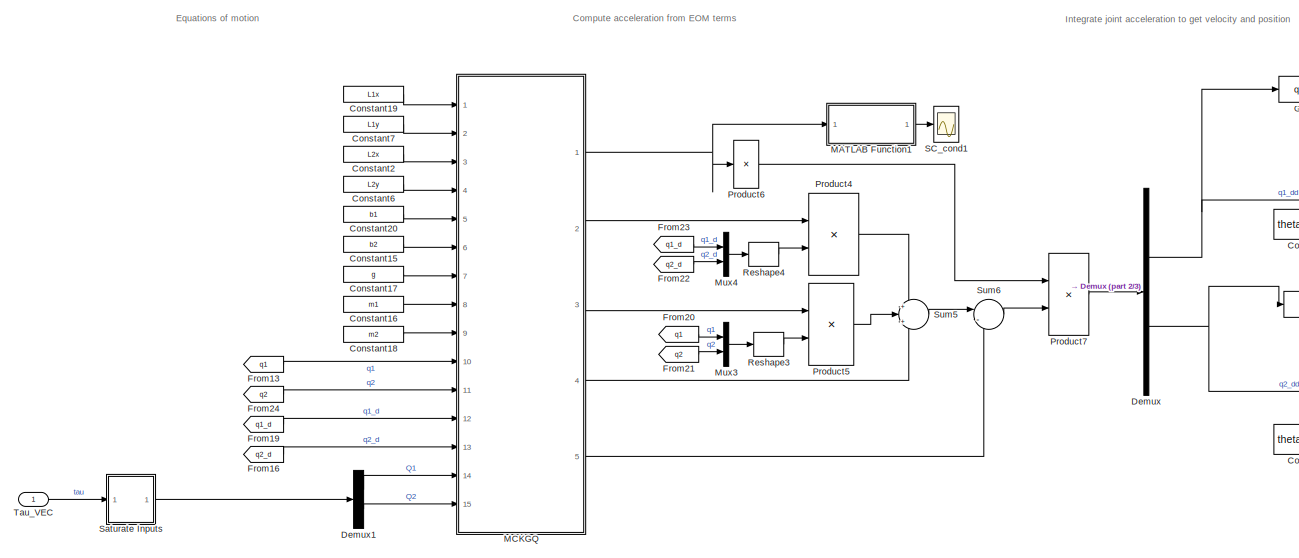
[diagram: Robot+Environment/ARM+Wall Simulink - part 1/3, top left region]
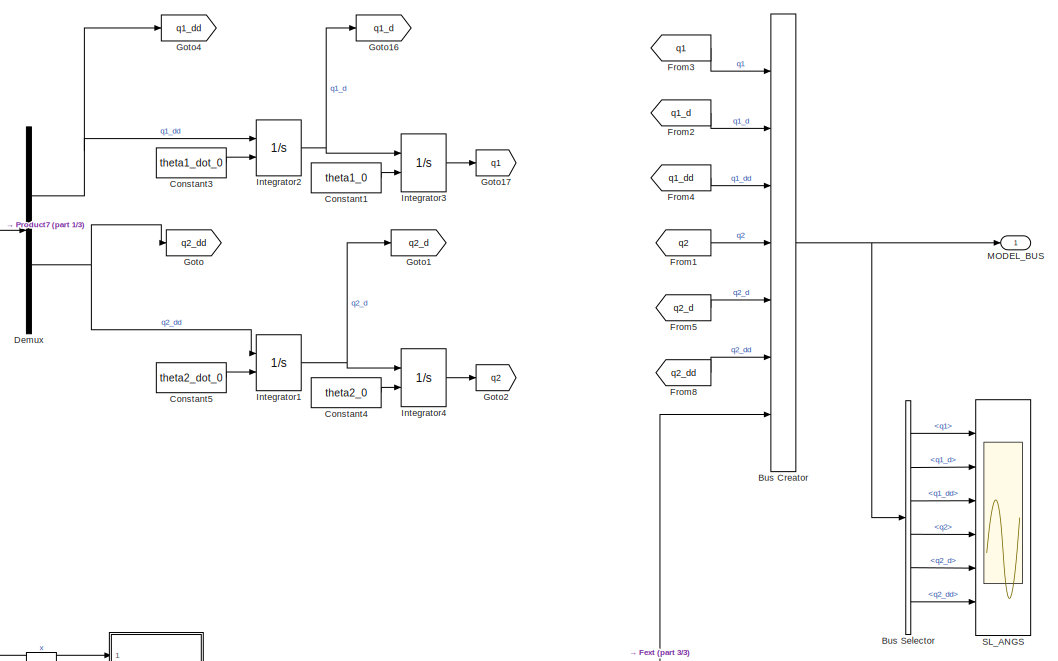
[diagram: Robot+Environment/ARM+Wall Simulink - part 2/3, middle right region]
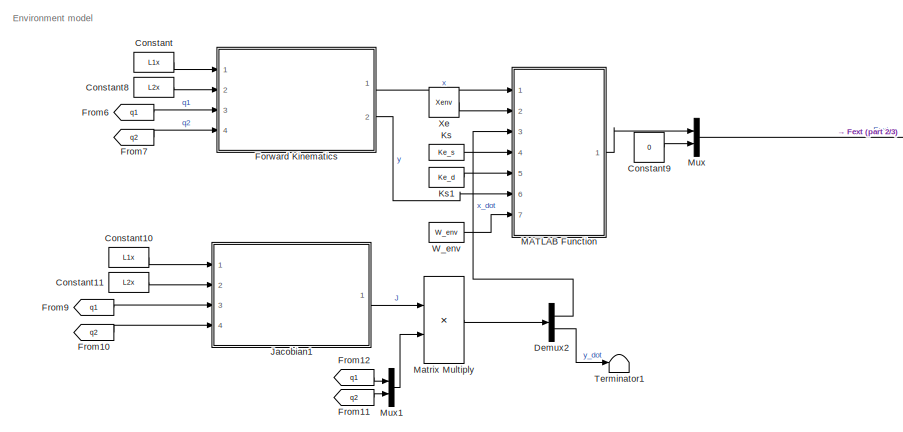
[diagram: Robot+Environment/ARM+Wall Simulink - part 3/3, bottom center region]
BLOCK [SubSystem] Robot+Environment/ARM+Wall Simulink
  NameLocation = top
  Ports = [1, 1]
  RequestExecContextInheritance = off
  VariantControl = Choice2
BLOCK [BusCreator] Robot+Environment/ARM+Wall Simulink/Bus Creator
  DisplayOption = bar
  InheritFromInputs = on
  Inputs = 7
  Ports = [7, 1]
BLOCK [BusSelector] Robot+Environment/ARM+Wall Simulink/Bus Selector
  OutputSignals = q1,q1_d,q1_dd,q2,q2_d,q2_dd
  Ports = [1, 6]
BLOCK [Constant] Robot+Environment/ARM+Wall Simulink/Constant
  Value = L1x
BLOCK [Constant] Robot+Environment/ARM+Wall Simulink/Constant1
  Value = theta1_0
BLOCK [Constant] Robot+Environment/ARM+Wall Simulink/Constant10
  Value = L1x
BLOCK [Constant] Robot+Environment/ARM+Wall Simulink/Constant11
  Value = L2x
BLOCK [Constant] Robot+Environment/ARM+Wall Simulink/Constant15
  Value = b2
BLOCK [Constant] Robot+Environment/ARM+Wall Simulink/Constant16
  Value = m1
BLOCK [Constant] Robot+Environment/ARM+Wall Simulink/Constant17
  Value = g
BLOCK [Constant] Robot+Environment/ARM+Wall Simulink/Constant18
  Value = m2
BLOCK [Constant] Robot+Environment/ARM+Wall Simulink/Constant19
  Value = L1x
BLOCK [Constant] Robot+Environment/ARM+Wall Simulink/Constant2
  Value = L2x
BLOCK [Constant] Robot+Environment/ARM+Wall Simulink/Constant20
  Value = b1
BLOCK [Constant] Robot+Environment/ARM+Wall Simulink/Constant3
  Value = theta1_dot_0
BLOCK [Constant] Robot+Environment/ARM+Wall Simulink/Constant4
  Value = theta2_0
BLOCK [Constant] Robot+Environment/ARM+Wall Simulink/Constant5
  Value = theta2_dot_0
BLOCK [Constant] Robot+Environment/ARM+Wall Simulink/Constant6
  Value = L2y
BLOCK [Constant] Robot+Environment/ARM+Wall Simulink/Constant7
  Value = L1y
BLOCK [Constant] Robot+Environment/ARM+Wall Simulink/Constant8
  Value = L2x
BLOCK [Constant] Robot+Environment/ARM+Wall Simulink/Constant9
  Value = 0
BLOCK [Demux] Robot+Environment/ARM+Wall Simulink/Demux
  Outputs = 2
  Ports = [1, 2]
BLOCK [Demux] Robot+Environment/ARM+Wall Simulink/Demux1
  Outputs = 2
  Ports = [1, 2]
BLOCK [Demux] Robot+Environment/ARM+Wall Simulink/Demux2
  Outputs = 2
  Ports = [1, 2]
BLOCK [SubSystem] Robot+Environment/ARM+Wall Simulink/Forward Kinematics
  ErrorFcn = Stateflow.Translate.translate
  NameLocation = top
  PermitHierarchicalResolution = ExplicitOnly
  Ports = [4, 2]
  RequestExecContextInheritance = off
  SFBlockType = MATLAB Function
  TreatAsAtomicUnit = on
BLOCK [Demux] Robot+Environment/ARM+Wall Simulink/Forward Kinematics/ Demux 
  Outputs = 1
  Ports = [1, 1]
BLOCK [S-Function] Robot+Environment/ARM+Wall Simulink/Forward Kinematics/ SFunction 
  EnableBusSupport = on
  FunctionName = sf_sfun
  PortCounts = [4 3]
  Ports = [4, 3]
  SFcnIsStateOwnerBlock = off
  SFunctionDeploymentMode = off
  Tag = Stateflow S-Function 12
BLOCK [Terminator] Robot+Environment/ARM+Wall Simulink/Forward Kinematics/ Terminator 
BLOCK [Inport] Robot+Environment/ARM+Wall Simulink/Forward Kinematics/L_1
BLOCK [Inport] Robot+Environment/ARM+Wall Simulink/Forward Kinematics/L_2
  Port = 2
BLOCK [Outport] Robot+Environment/ARM+Wall Simulink/Forward Kinematics/XE
BLOCK [Outport] Robot+Environment/ARM+Wall Simulink/Forward Kinematics/YE
  Port = 2
BLOCK [Inport] Robot+Environment/ARM+Wall Simulink/Forward Kinematics/theta_1
  Port = 3
BLOCK [Inport] Robot+Environment/ARM+Wall Simulink/Forward Kinematics/theta_2
  Port = 4
BLOCK [From] Robot+Environment/ARM+Wall Simulink/From1
  GotoTag = q2
BLOCK [From] Robot+Environment/ARM+Wall Simulink/From10
  GotoTag = q2
BLOCK [From] Robot+Environment/ARM+Wall Simulink/From11
  GotoTag = q2
BLOCK [From] Robot+Environment/ARM+Wall Simulink/From12
  GotoTag = q1
BLOCK [From] Robot+Environment/ARM+Wall Simulink/From13
  GotoTag = q1
BLOCK [From] Robot+Environment/ARM+Wall Simulink/From16
  GotoTag = q2_d
BLOCK [From] Robot+Environment/ARM+Wall Simulink/From19
  GotoTag = q1_d
BLOCK [From] Robot+Environment/ARM+Wall Simulink/From2
  GotoTag = q1_d
BLOCK [From] Robot+Environment/ARM+Wall Simulink/From20
  GotoTag = q1
BLOCK [From] Robot+Environment/ARM+Wall Simulink/From21
  GotoTag = q2
BLOCK [From] Robot+Environment/ARM+Wall Simulink/From22
  GotoTag = q2_d
BLOCK [From] Robot+Environment/ARM+Wall Simulink/From23
  GotoTag = q1_d
BLOCK [From] Robot+Environment/ARM+Wall Simulink/From24
  GotoTag = q2
BLOCK [From] Robot+Environment/ARM+Wall Simulink/From3
  GotoTag = q1
BLOCK [From] Robot+Environment/ARM+Wall Simulink/From4
  GotoTag = q1_dd
BLOCK [From] Robot+Environment/ARM+Wall Simulink/From5
  GotoTag = q2_d
BLOCK [From] Robot+Environment/ARM+Wall Simulink/From6
  GotoTag = q1
BLOCK [From] Robot+Environment/ARM+Wall Simulink/From7
  GotoTag = q2
BLOCK [From] Robot+Environment/ARM+Wall Simulink/From8
  GotoTag = q2_dd
BLOCK [From] Robot+Environment/ARM+Wall Simulink/From9
  GotoTag = q1
BLOCK [Goto] Robot+Environment/ARM+Wall Simulink/Goto
  GotoTag = q2_dd
BLOCK [Goto] Robot+Environment/ARM+Wall Simulink/Goto1
  GotoTag = q2_d
BLOCK [Goto] Robot+Environment/ARM+Wall Simulink/Goto16
  GotoTag = q1_d
BLOCK [Goto] Robot+Environment/ARM+Wall Simulink/Goto17
  GotoTag = q1
BLOCK [Goto] Robot+Environment/ARM+Wall Simulink/Goto2
  GotoTag = q2
BLOCK [Goto] Robot+Environment/ARM+Wall Simulink/Goto4
  GotoTag = q1_dd
BLOCK [Integrator] Robot+Environment/ARM+Wall Simulink/Integrator1
  InitialConditionSource = external
  Ports = [2, 1]
BLOCK [Integrator] Robot+Environment/ARM+Wall Simulink/Integrator2
  InitialConditionSource = external
  Ports = [2, 1]
BLOCK [Integrator] Robot+Environment/ARM+Wall Simulink/Integrator3
  InitialConditionSource = external
  Ports = [2, 1]
BLOCK [Integrator] Robot+Environment/ARM+Wall Simulink/Integrator4
  InitialConditionSource = external
  Ports = [2, 1]
BLOCK [SubSystem] Robot+Environment/ARM+Wall Simulink/Jacobian1
  ErrorFcn = Stateflow.Translate.translate
  NameLocation = top
  PermitHierarchicalResolution = ExplicitOnly
  Ports = [4, 1]
  RequestExecContextInheritance = off
  SFBlockType = MATLAB Function
  TreatAsAtomicUnit = on
BLOCK [Demux] Robot+Environment/ARM+Wall Simulink/Jacobian1/ Demux 
  Outputs = 1
  Ports = [1, 1]
BLOCK [S-Function] Robot+Environment/ARM+Wall Simulink/Jacobian1/ SFunction 
  EnableBusSupport = on
  FunctionName = sf_sfun
  PortCounts = [4 2]
  Ports = [4, 2]
  SFcnIsStateOwnerBlock = off
  SFunctionDeploymentMode = off
  Tag = Stateflow S-Function 8
BLOCK [Terminator] Robot+Environment/ARM+Wall Simulink/Jacobian1/ Terminator 
BLOCK [Outport] Robot+Environment/ARM+Wall Simulink/Jacobian1/J
BLOCK [Inport] Robot+Environment/ARM+Wall Simulink/Jacobian1/L_1
BLOCK [Inport] Robot+Environment/ARM+Wall Simulink/Jacobian1/L_2
  Port = 2
BLOCK [Inport] Robot+Environment/ARM+Wall Simulink/Jacobian1/theta_1
  Port = 3
BLOCK [Inport] Robot+Environment/ARM+Wall Simulink/Jacobian1/theta_2
  Port = 4
BLOCK [Constant] Robot+Environment/ARM+Wall Simulink/Ks
  Value = Ke_s
BLOCK [Constant] Robot+Environment/ARM+Wall Simulink/Ks1
  Value = Ke_d
BLOCK [SubSystem] Robot+Environment/ARM+Wall Simulink/MATLAB Function
  ErrorFcn = Stateflow.Translate.translate
  PermitHierarchicalResolution = ExplicitOnly
  Ports = [7, 1]
  RequestExecContextInheritance = off
  SFBlockType = MATLAB Function
  TreatAsAtomicUnit = on
BLOCK [Demux] Robot+Environment/ARM+Wall Simulink/MATLAB Function/ Demux 
  Outputs = 1
  Ports = [1, 1]
BLOCK [S-Function] Robot+Environment/ARM+Wall Simulink/MATLAB Function/ SFunction 
  EnableBusSupport = on
  FunctionName = sf_sfun
  PortCounts = [7 2]
  Ports = [7, 2]
  SFcnIsStateOwnerBlock = off
  SFunctionDeploymentMode = off
  Tag = Stateflow S-Function 10
BLOCK [Terminator] Robot+Environment/ARM+Wall Simulink/MATLAB Function/ Terminator 
BLOCK [Outport] Robot+Environment/ARM+Wall Simulink/MATLAB Function/F
BLOCK [Inport] Robot+Environment/ARM+Wall Simulink/MATLAB Function/Kd
  Port = 5
BLOCK [Inport] Robot+Environment/ARM+Wall Simulink/MATLAB Function/Ks
  Port = 4
BLOCK [Inport] Robot+Environment/ARM+Wall Simulink/MATLAB Function/W_env
  Port = 7
BLOCK [Inport] Robot+Environment/ARM+Wall Simulink/MATLAB Function/x
BLOCK [Inport] Robot+Environment/ARM+Wall Simulink/MATLAB Function/x_dot
  Port = 3
BLOCK [Inport] Robot+Environment/ARM+Wall Simulink/MATLAB Function/xe
  Port = 2
BLOCK [Inport] Robot+Environment/ARM+Wall Simulink/MATLAB Function/y
  Port = 6
BLOCK [SubSystem] Robot+Environment/ARM+Wall Simulink/MATLAB Function1
  ErrorFcn = Stateflow.Translate.translate
  PermitHierarchicalResolution = ExplicitOnly
  Ports = [1, 1]
  RequestExecContextInheritance = off
  SFBlockType = MATLAB Function
  TreatAsAtomicUnit = on
BLOCK [Demux] Robot+Environment/ARM+Wall Simulink/MATLAB Function1/ Demux 
  Outputs = 1
  Ports = [1, 1]
BLOCK [S-Function] Robot+Environment/ARM+Wall Simulink/MATLAB Function1/ SFunction 
  EnableBusSupport = on
  FunctionName = sf_sfun
  PortCounts = [1 2]
  Ports = [1, 2]
  SFcnIsStateOwnerBlock = off
  SFunctionDeploymentMode = off
  Tag = Stateflow S-Function 3
BLOCK [Terminator] Robot+Environment/ARM+Wall Simulink/MATLAB Function1/ Terminator 
BLOCK [Inport] Robot+Environment/ARM+Wall Simulink/MATLAB Function1/M
BLOCK [Outport] Robot+Environment/ARM+Wall Simulink/MATLAB Function1/the_cond
BLOCK [SubSystem] Robot+Environment/ARM+Wall Simulink/MCKGQ
  ErrorFcn = Stateflow.Translate.translate
  PermitHierarchicalResolution = ExplicitOnly
  Ports = [15, 5]
  RequestExecContextInheritance = off
  SFBlockType = MATLAB Function
  TreatAsAtomicUnit = on
BLOCK [Demux] Robot+Environment/ARM+Wall Simulink/MCKGQ/ Demux 
  Outputs = 1
  Ports = [1, 1]
BLOCK [S-Function] Robot+Environment/ARM+Wall Simulink/MCKGQ/ SFunction 
  EnableBusSupport = on
  FunctionName = sf_sfun
  PortCounts = [15 6]
  Ports = [15, 6]
  SFcnIsStateOwnerBlock = off
  SFunctionDeploymentMode = off
  Tag = Stateflow S-Function 2
BLOCK [Terminator] Robot+Environment/ARM+Wall Simulink/MCKGQ/ Terminator 
BLOCK [Outport] Robot+Environment/ARM+Wall Simulink/MCKGQ/C
  Port = 2
BLOCK [Outport] Robot+Environment/ARM+Wall Simulink/MCKGQ/G
  Port = 4
BLOCK [Outport] Robot+Environment/ARM+Wall Simulink/MCKGQ/K
  Port = 3
BLOCK [Inport] Robot+Environment/ARM+Wall Simulink/MCKGQ/L_1x
BLOCK [Inport] Robot+Environment/ARM+Wall Simulink/MCKGQ/L_1y
  Port = 2
BLOCK [Inport] Robot+Environment/ARM+Wall Simulink/MCKGQ/L_2x
  Port = 3
BLOCK [Inport] Robot+Environment/ARM+Wall Simulink/MCKGQ/L_2y
  Port = 4
BLOCK [Outport] Robot+Environment/ARM+Wall Simulink/MCKGQ/M
BLOCK [Outport] Robot+Environment/ARM+Wall Simulink/MCKGQ/Q
  Port = 5
BLOCK [Inport] Robot+Environment/ARM+Wall Simulink/MCKGQ/b1
  Port = 5
BLOCK [Inport] Robot+Environment/ARM+Wall Simulink/MCKGQ/b2
  Port = 6
BLOCK [Inport] Robot+Environment/ARM+Wall Simulink/MCKGQ/g
  Port = 7
BLOCK [Inport] Robot+Environment/ARM+Wall Simulink/MCKGQ/m1
  Port = 8
BLOCK [Inport] Robot+Environment/ARM+Wall Simulink/MCKGQ/m2
  Port = 9
BLOCK [Inport] Robot+Environment/ARM+Wall Simulink/MCKGQ/q1
  Port = 10
BLOCK [Inport] Robot+Environment/ARM+Wall Simulink/MCKGQ/q1_D
  Port = 12
BLOCK [Inport] Robot+Environment/ARM+Wall Simulink/MCKGQ/q2
  Port = 11
BLOCK [Inport] Robot+Environment/ARM+Wall Simulink/MCKGQ/q2_D
  Port = 13
BLOCK [Inport] Robot+Environment/ARM+Wall Simulink/MCKGQ/tau1
  Port = 14
BLOCK [Inport] Robot+Environment/ARM+Wall Simulink/MCKGQ/tau2
  Port = 15
BLOCK [Outport] Robot+Environment/ARM+Wall Simulink/MODEL_BUS
BLOCK [Product] Robot+Environment/ARM+Wall Simulink/Matrix Multiply
  Multiplication = Matrix(*)
  Ports = [2, 1]
BLOCK [Mux] Robot+Environment/ARM+Wall Simulink/Mux
  DisplayOption = bar
  Inputs = 2
  Ports = [2, 1]
BLOCK [Mux] Robot+Environment/ARM+Wall Simulink/Mux1
  DisplayOption = bar
  Inputs = 2
  Ports = [2, 1]
BLOCK [Mux] Robot+Environment/ARM+Wall Simulink/Mux3
  DisplayOption = bar
  Inputs = 2
  Ports = [2, 1]
BLOCK [Mux] Robot+Environment/ARM+Wall Simulink/Mux4
  DisplayOption = bar
  Inputs = 2
  Ports = [2, 1]
BLOCK [Product] Robot+Environment/ARM+Wall Simulink/Product4
  Multiplication = Matrix(*)
  Ports = [2, 1]
BLOCK [Product] Robot+Environment/ARM+Wall Simulink/Product5
  Multiplication = Matrix(*)
  Ports = [2, 1]
BLOCK [Product] Robot+Environment/ARM+Wall Simulink/Product6
  Inputs = /
  Multiplication = Matrix(*)
  Ports = [1, 1]
BLOCK [Product] Robot+Environment/ARM+Wall Simulink/Product7
  Multiplication = Matrix(*)
  Ports = [2, 1]
BLOCK [Reshape] Robot+Environment/ARM+Wall Simulink/Reshape3
  OutputDimensionality = Column vector (2-D)
  Ports = [1, 1]
BLOCK [Reshape] Robot+Environment/ARM+Wall Simulink/Reshape4
  OutputDimensionality = Column vector (2-D)
  Ports = [1, 1]
BLOCK [Scope] Robot+Environment/ARM+Wall Simulink/SC_cond1
  Floating = off
  NumInputPorts = 1
  Ports = [1]
  ScopeSpecificationString = Simulink.scopes.TimeScopeBlockCfg('CurrentConfiguration', extmgr.ConfigurationSet(extmgr.Configuration('Core','General UI',true),extmgr.Configuration('Core','Source UI',true),extmgr.Configuration('Sources','WiredSimulink',true,'DataLoggingVariableName','ScopeData1'),extmgr.Configuration('Visuals','Time Domain',true,'SerializedDisplays',{struct('MinYLimReal','43.00725','MaxYLimReal','44.76554','YLa...<+1399ch>
BLOCK [Scope] Robot+Environment/ARM+Wall Simulink/SL_ANGS
  Floating = off
  NumInputPorts = 6
  Ports = [6]
  ScopeSpecificationString = Simulink.scopes.TimeScopeBlockCfg('CurrentConfiguration', extmgr.ConfigurationSet(extmgr.Configuration('Core','General UI',true),extmgr.Configuration('Core','Source UI',true),extmgr.Configuration('Sources','WiredSimulink',true,'DataLoggingVariableName','ScopeData1'),extmgr.Configuration('Visuals','Time Domain',true,'SerializedDisplays',{struct('MinYLimReal','-0.36376','MaxYLimReal','0.04042','YLab...<+4779ch>
BLOCK [SubSystem] Robot+Environment/ARM+Wall Simulink/Saturate Inputs
  Ports = [1, 1]
  RequestExecContextInheritance = off
BLOCK [Demux] Robot+Environment/ARM+Wall Simulink/Saturate Inputs/Demux
  Outputs = 2
  Ports = [1, 2]
BLOCK [Mux] Robot+Environment/ARM+Wall Simulink/Saturate Inputs/Mux
  DisplayOption = bar
  Inputs = 2
  Ports = [2, 1]
BLOCK [Saturate] Robot+Environment/ARM+Wall Simulink/Saturate Inputs/Saturate Gripper Force
  LowerLimit = -max_joint_torque2
  UpperLimit = max_joint_torque2
BLOCK [Saturate] Robot+Environment/ARM+Wall Simulink/Saturate Inputs/Saturate Joint Torques
  LowerLimit = -max_joint_torque1
  UpperLimit = max_joint_torque1
BLOCK [Inport] Robot+Environment/ARM+Wall Simulink/Saturate Inputs/inp
BLOCK [Outport] Robot+Environment/ARM+Wall Simulink/Saturate Inputs/sat
  VectorParamsAs1DForOutWhenUnconnected = off
BLOCK [Sum] Robot+Environment/ARM+Wall Simulink/Sum5
  Inputs = +|+|+
  Ports = [3, 1]
BLOCK [Sum] Robot+Environment/ARM+Wall Simulink/Sum6
  Inputs = |-+
  Ports = [2, 1]
BLOCK [Inport] Robot+Environment/ARM+Wall Simulink/Tau_VEC
BLOCK [Terminator] Robot+Environment/ARM+Wall Simulink/Terminator1
BLOCK [Constant] Robot+Environment/ARM+Wall Simulink/W_env
  Value = W_env
BLOCK [Constant] Robot+Environment/ARM+Wall Simulink/Xe
  Value = Xenv
BLOCK [SubSystem] Robot+Environment/ARM+curve Simscape
  Ports = [1, 1]
  RequestExecContextInheritance = off
  VariantControl = Choice3
BLOCK [BusCreator] Robot+Environment/ARM+curve Simscape/Bus Creator
  DisplayOption = bar
  InheritFromInputs = on
  Inputs = 7
  Ports = [7, 1]
BLOCK [BusSelector] Robot+Environment/ARM+curve Simscape/Bus Selector1
  OutputSignals = q1,q1_d,q1_dd,q2,q2_d,q2_dd
  Ports = [1, 6]
BLOCK [Reference] Robot+Environment/ARM+curve Simscape/Cylindrical Solid  REF=sm_lib/Body Elements/Cylindrical Solid
  NameLocation = top
  Ports = [0, 0, 0, 0, 0, 1, 1]
  SourceBlock = sm_lib/Body Elements/Cylindrical Solid
  SourceProductBaseCode = MS
  SourceType = Cylindrical Solid
BLOCK [Demux] Robot+Environment/ARM+curve Simscape/Demux2
  Outputs = 2
  Ports = [1, 2]
BLOCK [Reference] Robot+Environment/ARM+curve Simscape/Extruded Solid  REF=sm_lib/Body Elements/Extruded Solid
  NameLocation = top
  Ports = [0, 0, 0, 0, 0, 1, 1]
  SourceBlock = sm_lib/Body Elements/Extruded Solid
  SourceProductBaseCode = MS
  SourceType = Extruded Solid
BLOCK [From] Robot+Environment/ARM+curve Simscape/From1
  GotoTag = Fext
BLOCK [From] Robot+Environment/ARM+curve Simscape/From10
  GotoTag = q1_dd
BLOCK [From] Robot+Environment/ARM+curve Simscape/From11
  GotoTag = q2_d
BLOCK [From] Robot+Environment/ARM+curve Simscape/From14
  GotoTag = q2_dd
BLOCK [From] Robot+Environment/ARM+curve Simscape/From7
  GotoTag = q2
BLOCK [From] Robot+Environment/ARM+curve Simscape/From8
  GotoTag = q1_d
BLOCK [From] Robot+Environment/ARM+curve Simscape/From9
  GotoTag = q1
BLOCK [Goto] Robot+Environment/ARM+curve Simscape/Goto1
  GotoTag = q2_dd
BLOCK [Goto] Robot+Environment/ARM+curve Simscape/Goto2
  GotoTag = q2_d
BLOCK [Goto] Robot+Environment/ARM+curve Simscape/Goto3
  GotoTag = Fext
BLOCK [Goto] Robot+Environment/ARM+curve Simscape/Goto4
  GotoTag = q1_dd
BLOCK [Goto] Robot+Environment/ARM+curve Simscape/Goto5
  GotoTag = q1_d
BLOCK [Goto] Robot+Environment/ARM+curve Simscape/Goto6
  GotoTag = q1
BLOCK [Goto] Robot+Environment/ARM+curve Simscape/Goto7
  GotoTag = q2
BLOCK [Reference] Robot+Environment/ARM+curve Simscape/Link1  REF=sm_lib/Body Elements/Brick Solid
  NameLocation = right
  Ports = [0, 0, 0, 0, 0, 0, 1]
  SourceBlock = sm_lib/Body Elements/Brick Solid
  SourceProductBaseCode = MS
  SourceType = Brick Solid
BLOCK [Reference] Robot+Environment/ARM+curve Simscape/Link2  REF=sm_lib/Body Elements/Brick Solid
  NameLocation = top
  Ports = [0, 0, 0, 0, 0, 1, 1]
  SourceBlock = sm_lib/Body Elements/Brick Solid
  SourceProductBaseCode = MS
  SourceType = Brick Solid
BLOCK [Outport] Robot+Environment/ARM+curve Simscape/MODEL_BUS
BLOCK [Reference] Robot+Environment/ARM+curve Simscape/Mechanism Configuration  REF=sm_lib/Utilities/Mechanism
Configuration
  Ports = [0, 0, 0, 0, 0, 0, 1]
  SourceBlock = sm_lib/Utilities/Mechanism\nConfiguration
  SourceProductBaseCode = MS
  SourceType = Mechanism\nConfiguration
BLOCK [Mux] Robot+Environment/ARM+curve Simscape/Mux
  DisplayOption = bar
  Inputs = 2
  Ports = [2, 1]
BLOCK [Reference] Robot+Environment/ARM+curve Simscape/PS-Simulink Converter  REF=nesl_utility/PS-Simulink
Converter
  Ports = [0, 1, 0, 0, 0, 1]
  SourceBlock = nesl_utility/PS-Simulink\nConverter
  SourceProductBaseCode = PW,SS
  SourceType = PS-Simulink\nConverter
BLOCK [Reference] Robot+Environment/ARM+curve Simscape/PS-Simulink Converter1  REF=nesl_utility/PS-Simulink
Converter
  Ports = [0, 1, 0, 0, 0, 1]
  SourceBlock = nesl_utility/PS-Simulink\nConverter
  SourceProductBaseCode = PW,SS
  SourceType = PS-Simulink\nConverter
BLOCK [Reference] Robot+Environment/ARM+curve Simscape/PS-Simulink Converter2  REF=nesl_utility/PS-Simulink
Converter
  Ports = [0, 1, 0, 0, 0, 1]
  SourceBlock = nesl_utility/PS-Simulink\nConverter
  SourceProductBaseCode = PW,SS
  SourceType = PS-Simulink\nConverter
BLOCK [Reference] Robot+Environment/ARM+curve Simscape/PS-Simulink Converter3  REF=nesl_utility/PS-Simulink
Converter
  NameLocation = left
  Ports = [0, 1, 0, 0, 0, 1]
  SourceBlock = nesl_utility/PS-Simulink\nConverter
  SourceProductBaseCode = PW,SS
  SourceType = PS-Simulink\nConverter
BLOCK [Reference] Robot+Environment/ARM+curve Simscape/PS-Simulink Converter4  REF=nesl_utility/PS-Simulink
Converter
  Ports = [0, 1, 0, 0, 0, 1]
  SourceBlock = nesl_utility/PS-Simulink\nConverter
  SourceProductBaseCode = PW,SS
  SourceType = PS-Simulink\nConverter
BLOCK [Reference] Robot+Environment/ARM+curve Simscape/PS-Simulink Converter5  REF=nesl_utility/PS-Simulink
Converter
  Ports = [0, 1, 0, 0, 0, 1]
  SourceBlock = nesl_utility/PS-Simulink\nConverter
  SourceProductBaseCode = PW,SS
  SourceType = PS-Simulink\nConverter
BLOCK [Reference] Robot+Environment/ARM+curve Simscape/PS-Simulink Converter6  REF=nesl_utility/PS-Simulink
Converter
  Ports = [0, 1, 0, 0, 0, 1]
  SourceBlock = nesl_utility/PS-Simulink\nConverter
  SourceProductBaseCode = PW,SS
  SourceType = PS-Simulink\nConverter
BLOCK [Reference] Robot+Environment/ARM+curve Simscape/PS-Simulink Converter7  REF=nesl_utility/PS-Simulink
Converter
  NameLocation = left
  Ports = [0, 1, 0, 0, 0, 1]
  SourceBlock = nesl_utility/PS-Simulink\nConverter
  SourceProductBaseCode = PW,SS
  SourceType = PS-Simulink\nConverter
BLOCK [Reference] Robot+Environment/ARM+curve Simscape/PS-Simulink Converter8  REF=nesl_utility/PS-Simulink
Converter
  NameLocation = top
  Ports = [0, 1, 0, 0, 0, 1]
  SourceBlock = nesl_utility/PS-Simulink\nConverter
  SourceProductBaseCode = PW,SS
  SourceType = PS-Simulink\nConverter
BLOCK [Reference] Robot+Environment/ARM+curve Simscape/Revolute Joint  REF=sm_lib/Joints/Revolute Joint
  AttributesFormatString = %<DampingCoefficient>\n%<PositionTargetValue>\n%<VelocityTargetValue>
  Ports = [0, 0, 0, 0, 0, 2, 4]
  SourceBlock = sm_lib/Joints/Revolute Joint
  SourceProductBaseCode = MS
  SourceType = Revolute Joint
BLOCK [Reference] Robot+Environment/ARM+curve Simscape/Revolute Joint1  REF=sm_lib/Joints/Revolute Joint
  AttributesFormatString = %<DampingCoefficient>\n%<PositionTargetValue>\n%<VelocityTargetValue>
  Ports = [0, 0, 0, 0, 0, 2, 4]
  SourceBlock = sm_lib/Joints/Revolute Joint
  SourceProductBaseCode = MS
  SourceType = Revolute Joint
BLOCK [Reference] Robot+Environment/ARM+curve Simscape/Rigid Transform  REF=sm_lib/Frames and
Transforms/Rigid
Transform
  Ports = [0, 0, 0, 0, 0, 1, 1]
  SourceBlock = sm_lib/Frames and\nTransforms/Rigid\nTransform
  SourceProductBaseCode = MS
  SourceType = Rigid\nTransform
BLOCK [Reference] Robot+Environment/ARM+curve Simscape/Rigid Transform1  REF=sm_lib/Frames and
Transforms/Rigid
Transform
  Ports = [0, 0, 0, 0, 0, 1, 1]
  SourceBlock = sm_lib/Frames and\nTransforms/Rigid\nTransform
  SourceProductBaseCode = MS
  SourceType = Rigid\nTransform
BLOCK [Reference] Robot+Environment/ARM+curve Simscape/Rigid Transform2  REF=sm_lib/Frames and
Transforms/Rigid
Transform
  Ports = [0, 0, 0, 0, 0, 1, 1]
  SourceBlock = sm_lib/Frames and\nTransforms/Rigid\nTransform
  SourceProductBaseCode = MS
  SourceType = Rigid\nTransform
BLOCK [Reference] Robot+Environment/ARM+curve Simscape/Rigid Transform3  REF=sm_lib/Frames and
Transforms/Rigid
Transform
  Ports = [0, 0, 0, 0, 0, 1, 1]
  SourceBlock = sm_lib/Frames and\nTransforms/Rigid\nTransform
  SourceProductBaseCode = MS
  SourceType = Rigid\nTransform
BLOCK [Reference] Robot+Environment/ARM+curve Simscape/Rigid Transform4  REF=sm_lib/Frames and
Transforms/Rigid
Transform
  Ports = [0, 0, 0, 0, 0, 1, 1]
  SourceBlock = sm_lib/Frames and\nTransforms/Rigid\nTransform
  SourceProductBaseCode = MS
  SourceType = Rigid\nTransform
BLOCK [Reference] Robot+Environment/ARM+curve Simscape/Rigid Transform5  REF=sm_lib/Frames and
Transforms/Rigid
Transform
  Ports = [0, 0, 0, 0, 0, 1, 1]
  SourceBlock = sm_lib/Frames and\nTransforms/Rigid\nTransform
  SourceProductBaseCode = MS
  SourceType = Rigid\nTransform
BLOCK [Scope] Robot+Environment/ARM+curve Simscape/SL_ANGS
  Floating = off
  NumInputPorts = 6
  Ports = [6]
BLOCK [SubSystem] Robot+Environment/ARM+curve Simscape/Saturate Inputs
  Ports = [1, 1]
  RequestExecContextInheritance = off
BLOCK [Demux] Robot+Environment/ARM+curve Simscape/Saturate Inputs/Demux
  Outputs = 2
  Ports = [1, 2]
BLOCK [Mux] Robot+Environment/ARM+curve Simscape/Saturate Inputs/Mux
  DisplayOption = bar
  Inputs = 2
  Ports = [2, 1]
BLOCK [Saturate] Robot+Environment/ARM+curve Simscape/Saturate Inputs/Saturate Gripper Force
  LowerLimit = -max_joint_torque2
  UpperLimit = max_joint_torque2
BLOCK [Saturate] Robot+Environment/ARM+curve Simscape/Saturate Inputs/Saturate Joint Torques
  LowerLimit = -max_joint_torque1
  UpperLimit = max_joint_torque1
BLOCK [Inport] Robot+Environment/ARM+curve Simscape/Saturate Inputs/inp
BLOCK [Outport] Robot+Environment/ARM+curve Simscape/Saturate Inputs/sat
  VectorParamsAs1DForOutWhenUnconnected = off
BLOCK [Scope] Robot+Environment/ARM+curve Simscape/Scope1
  Floating = off
  NameLocation = left
  NumInputPorts = 1
  Ports = [1]
  ScopeSpecificationString = Simulink.scopes.TimeScopeBlockCfg('CurrentConfiguration', extmgr.ConfigurationSet(extmgr.Configuration('Core','General UI',true),extmgr.Configuration('Core','Source UI',true),extmgr.Configuration('Sources','WiredSimulink',true,'DataLoggingVariableName','ScopeData2'),extmgr.Configuration('Visuals','Time Domain',true,'SerializedDisplays',{struct('MinYLimReal','0.06697','MaxYLimReal','0.29811','YLabe...<+1413ch>
BLOCK [Reference] Robot+Environment/ARM+curve Simscape/Simulink-PS Converter  REF=nesl_utility/Simulink-PS
Converter
  Ports = [1, 0, 0, 0, 0, 0, 1]
  SourceBlock = nesl_utility/Simulink-PS\nConverter
  SourceProductBaseCode = PW,SS
  SourceType = Simulink-PS\nConverter
BLOCK [Reference] Robot+Environment/ARM+curve Simscape/Simulink-PS Converter1  REF=nesl_utility/Simulink-PS
Converter
  Ports = [1, 0, 0, 0, 0, 0, 1]
  SourceBlock = nesl_utility/Simulink-PS\nConverter
  SourceProductBaseCode = PW,SS
  SourceType = Simulink-PS\nConverter
BLOCK [Reference] Robot+Environment/ARM+curve Simscape/Solver Configuration  REF=nesl_utility/Solver
Configuration
  Ports = [0, 0, 0, 0, 0, 0, 1]
  SourceBlock = nesl_utility/Solver\nConfiguration
  SourceProductBaseCode = PW,SS
  SourceType = Solver\nConfiguration
BLOCK [Reference] Robot+Environment/ARM+curve Simscape/Spatial Contact Force  REF=sm_lib/Forces and
Torques/Spatial
Contact Force
  NameLocation = top
  Ports = [0, 0, 0, 0, 0, 1, 3]
  SourceBlock = sm_lib/Forces and\nTorques/Spatial\nContact Force
  SourceProductBaseCode = MS
  SourceType = Spatial\nContact Force
BLOCK [Inport] Robot+Environment/ARM+curve Simscape/Tau_VEC
BLOCK [Terminator] Robot+Environment/ARM+curve Simscape/Terminator1
  NameLocation = top
BLOCK [Reference] Robot+Environment/ARM+curve Simscape/Transform Sensor  REF=sm_lib/Frames and
Transforms/Transform
Sensor
  NameLocation = top
  Ports = [0, 0, 0, 0, 0, 1, 2]
  SourceBlock = sm_lib/Frames and\nTransforms/Transform\nSensor
  SourceProductBaseCode = MS
  SourceType = Transform\nSensor
BLOCK [Reference] Robot+Environment/ARM+curve Simscape/World Frame  REF=sm_lib/Frames and
Transforms/World Frame
  Ports = [0, 0, 0, 0, 0, 0, 1]
  SourceBlock = sm_lib/Frames and\nTransforms/World Frame
  SourceProductBaseCode = MS
  SourceType = World Frame
BLOCK [Reference] Robot+Environment/ARM+curve Simscape/World Frame1  REF=sm_lib/Frames and
Transforms/World Frame
  NameLocation = top
  Ports = [0, 0, 0, 0, 0, 0, 1]
  SourceBlock = sm_lib/Frames and\nTransforms/World Frame
  SourceProductBaseCode = MS
  SourceType = World Frame
BLOCK [Constant] Robot+Environment/ARM+curve Simscape/Zero
  OutDataTypeStr = Inherit: Inherit via back propagation
  Value = 0
BLOCK [SubSystem] Robot+Environment/ARM+extrude Simscape
  Ports = [1, 1]
  RequestExecContextInheritance = off
  VariantControl = Choice4
BLOCK [BusCreator] Robot+Environment/ARM+extrude Simscape/Bus Creator
  DisplayOption = bar
  InheritFromInputs = on
  Inputs = 7
  Ports = [7, 1]
BLOCK [BusSelector] Robot+Environment/ARM+extrude Simscape/Bus Selector1
  OutputSignals = q1,q1_d,q1_dd,q2,q2_d,q2_dd
  Ports = [1, 6]
BLOCK [Demux] Robot+Environment/ARM+extrude Simscape/Demux2
  Outputs = 2
  Ports = [1, 2]
BLOCK [Reference] Robot+Environment/ARM+extrude Simscape/Extruded Solid  REF=sm_lib/Body Elements/Extruded Solid
  NameLocation = top
  Ports = [0, 0, 0, 0, 0, 1, 1]
  SourceBlock = sm_lib/Body Elements/Extruded Solid
  SourceProductBaseCode = MS
  SourceType = Extruded Solid
BLOCK [From] Robot+Environment/ARM+extrude Simscape/From1
  GotoTag = Fext
BLOCK [From] Robot+Environment/ARM+extrude Simscape/From10
  GotoTag = q1_dd
BLOCK [From] Robot+Environment/ARM+extrude Simscape/From11
  GotoTag = q2_d
BLOCK [From] Robot+Environment/ARM+extrude Simscape/From14
  GotoTag = q2_dd
BLOCK [From] Robot+Environment/ARM+extrude Simscape/From7
  GotoTag = q2
BLOCK [From] Robot+Environment/ARM+extrude Simscape/From8
  GotoTag = q1_d
BLOCK [From] Robot+Environment/ARM+extrude Simscape/From9
  GotoTag = q1
BLOCK [Goto] Robot+Environment/ARM+extrude Simscape/Goto1
  GotoTag = q2_dd
BLOCK [Goto] Robot+Environment/ARM+extrude Simscape/Goto2
  GotoTag = q2_d
BLOCK [Goto] Robot+Environment/ARM+extrude Simscape/Goto3
  GotoTag = Fext
BLOCK [Goto] Robot+Environment/ARM+extrude Simscape/Goto4
  GotoTag = q1_dd
BLOCK [Goto] Robot+Environment/ARM+extrude Simscape/Goto5
  GotoTag = q1_d
BLOCK [Goto] Robot+Environment/ARM+extrude Simscape/Goto6
  GotoTag = q1
BLOCK [Goto] Robot+Environment/ARM+extrude Simscape/Goto7
  GotoTag = q2
BLOCK [Reference] Robot+Environment/ARM+extrude Simscape/Link1  REF=sm_lib/Body Elements/Brick Solid
  NameLocation = right
  Ports = [0, 0, 0, 0, 0, 0, 1]
  SourceBlock = sm_lib/Body Elements/Brick Solid
  SourceProductBaseCode = MS
  SourceType = Brick Solid
BLOCK [Reference] Robot+Environment/ARM+extrude Simscape/Link2  REF=sm_lib/Body Elements/Brick Solid
  NameLocation = top
  Ports = [0, 0, 0, 0, 0, 1, 1]
  SourceBlock = sm_lib/Body Elements/Brick Solid
  SourceProductBaseCode = MS
  SourceType = Brick Solid
BLOCK [Outport] Robot+Environment/ARM+extrude Simscape/MODEL_BUS
BLOCK [Reference] Robot+Environment/ARM+extrude Simscape/Mechanism Configuration  REF=sm_lib/Utilities/Mechanism
Configuration
  Ports = [0, 0, 0, 0, 0, 0, 1]
  SourceBlock = sm_lib/Utilities/Mechanism\nConfiguration
  SourceProductBaseCode = MS
  SourceType = Mechanism\nConfiguration
BLOCK [Mux] Robot+Environment/ARM+extrude Simscape/Mux
  DisplayOption = bar
  Inputs = 2
  Ports = [2, 1]
BLOCK [Reference] Robot+Environment/ARM+extrude Simscape/PS-Simulink Converter  REF=nesl_utility/PS-Simulink
Converter
  Ports = [0, 1, 0, 0, 0, 1]
  SourceBlock = nesl_utility/PS-Simulink\nConverter
  SourceProductBaseCode = PW,SS
  SourceType = PS-Simulink\nConverter
BLOCK [Reference] Robot+Environment/ARM+extrude Simscape/PS-Simulink Converter1  REF=nesl_utility/PS-Simulink
Converter
  Ports = [0, 1, 0, 0, 0, 1]
  SourceBlock = nesl_utility/PS-Simulink\nConverter
  SourceProductBaseCode = PW,SS
  SourceType = PS-Simulink\nConverter
BLOCK [Reference] Robot+Environment/ARM+extrude Simscape/PS-Simulink Converter2  REF=nesl_utility/PS-Simulink
Converter
  Ports = [0, 1, 0, 0, 0, 1]
  SourceBlock = nesl_utility/PS-Simulink\nConverter
  SourceProductBaseCode = PW,SS
  SourceType = PS-Simulink\nConverter
BLOCK [Reference] Robot+Environment/ARM+extrude Simscape/PS-Simulink Converter3  REF=nesl_utility/PS-Simulink
Converter
  NameLocation = left
  Ports = [0, 1, 0, 0, 0, 1]
  SourceBlock = nesl_utility/PS-Simulink\nConverter
  SourceProductBaseCode = PW,SS
  SourceType = PS-Simulink\nConverter
BLOCK [Reference] Robot+Environment/ARM+extrude Simscape/PS-Simulink Converter4  REF=nesl_utility/PS-Simulink
Converter
  Ports = [0, 1, 0, 0, 0, 1]
  SourceBlock = nesl_utility/PS-Simulink\nConverter
  SourceProductBaseCode = PW,SS
  SourceType = PS-Simulink\nConverter
BLOCK [Reference] Robot+Environment/ARM+extrude Simscape/PS-Simulink Converter5  REF=nesl_utility/PS-Simulink
Converter
  Ports = [0, 1, 0, 0, 0, 1]
  SourceBlock = nesl_utility/PS-Simulink\nConverter
  SourceProductBaseCode = PW,SS
  SourceType = PS-Simulink\nConverter
BLOCK [Reference] Robot+Environment/ARM+extrude Simscape/PS-Simulink Converter6  REF=nesl_utility/PS-Simulink
Converter
  Ports = [0, 1, 0, 0, 0, 1]
  SourceBlock = nesl_utility/PS-Simulink\nConverter
  SourceProductBaseCode = PW,SS
  SourceType = PS-Simulink\nConverter
BLOCK [Reference] Robot+Environment/ARM+extrude Simscape/PS-Simulink Converter7  REF=nesl_utility/PS-Simulink
Converter
  NameLocation = left
  Ports = [0, 1, 0, 0, 0, 1]
  SourceBlock = nesl_utility/PS-Simulink\nConverter
  SourceProductBaseCode = PW,SS
  SourceType = PS-Simulink\nConverter
BLOCK [Reference] Robot+Environment/ARM+extrude Simscape/PS-Simulink Converter8  REF=nesl_utility/PS-Simulink
Converter
  NameLocation = top
  Ports = [0, 1, 0, 0, 0, 1]
  SourceBlock = nesl_utility/PS-Simulink\nConverter
  SourceProductBaseCode = PW,SS
  SourceType = PS-Simulink\nConverter
BLOCK [Reference] Robot+Environment/ARM+extrude Simscape/Revolute Joint  REF=sm_lib/Joints/Revolute Joint
  AttributesFormatString = %<DampingCoefficient>\n%<PositionTargetValue>\n%<VelocityTargetValue>
  Ports = [0, 0, 0, 0, 0, 2, 4]
  SourceBlock = sm_lib/Joints/Revolute Joint
  SourceProductBaseCode = MS
  SourceType = Revolute Joint
BLOCK [Reference] Robot+Environment/ARM+extrude Simscape/Revolute Joint1  REF=sm_lib/Joints/Revolute Joint
  AttributesFormatString = %<DampingCoefficient>\n%<PositionTargetValue>\n%<VelocityTargetValue>
  Ports = [0, 0, 0, 0, 0, 2, 4]
  SourceBlock = sm_lib/Joints/Revolute Joint
  SourceProductBaseCode = MS
  SourceType = Revolute Joint
BLOCK [Reference] Robot+Environment/ARM+extrude Simscape/Rigid Transform  REF=sm_lib/Frames and
Transforms/Rigid
Transform
  Ports = [0, 0, 0, 0, 0, 1, 1]
  SourceBlock = sm_lib/Frames and\nTransforms/Rigid\nTransform
  SourceProductBaseCode = MS
  SourceType = Rigid\nTransform
BLOCK [Reference] Robot+Environment/ARM+extrude Simscape/Rigid Transform1  REF=sm_lib/Frames and
Transforms/Rigid
Transform
  Ports = [0, 0, 0, 0, 0, 1, 1]
  SourceBlock = sm_lib/Frames and\nTransforms/Rigid\nTransform
  SourceProductBaseCode = MS
  SourceType = Rigid\nTransform
BLOCK [Reference] Robot+Environment/ARM+extrude Simscape/Rigid Transform2  REF=sm_lib/Frames and
Transforms/Rigid
Transform
  Ports = [0, 0, 0, 0, 0, 1, 1]
  SourceBlock = sm_lib/Frames and\nTransforms/Rigid\nTransform
  SourceProductBaseCode = MS
  SourceType = Rigid\nTransform
BLOCK [Reference] Robot+Environment/ARM+extrude Simscape/Rigid Transform3  REF=sm_lib/Frames and
Transforms/Rigid
Transform
  Ports = [0, 0, 0, 0, 0, 1, 1]
  SourceBlock = sm_lib/Frames and\nTransforms/Rigid\nTransform
  SourceProductBaseCode = MS
  SourceType = Rigid\nTransform
BLOCK [Reference] Robot+Environment/ARM+extrude Simscape/Rigid Transform4  REF=sm_lib/Frames and
Transforms/Rigid
Transform
  Ports = [0, 0, 0, 0, 0, 1, 1]
  SourceBlock = sm_lib/Frames and\nTransforms/Rigid\nTransform
  SourceProductBaseCode = MS
  SourceType = Rigid\nTransform
BLOCK [Reference] Robot+Environment/ARM+extrude Simscape/Rigid Transform5  REF=sm_lib/Frames and
Transforms/Rigid
Transform
  Ports = [0, 0, 0, 0, 0, 1, 1]
  SourceBlock = sm_lib/Frames and\nTransforms/Rigid\nTransform
  SourceProductBaseCode = MS
  SourceType = Rigid\nTransform
BLOCK [Scope] Robot+Environment/ARM+extrude Simscape/SL_ANGS
  Floating = off
  NumInputPorts = 6
  Ports = [6]
BLOCK [SubSystem] Robot+Environment/ARM+extrude Simscape/Saturate Inputs
  Ports = [1, 1]
  RequestExecContextInheritance = off
BLOCK [Demux] Robot+Environment/ARM+extrude Simscape/Saturate Inputs/Demux
  Outputs = 2
  Ports = [1, 2]
BLOCK [Mux] Robot+Environment/ARM+extrude Simscape/Saturate Inputs/Mux
  DisplayOption = bar
  Inputs = 2
  Ports = [2, 1]
BLOCK [Saturate] Robot+Environment/ARM+extrude Simscape/Saturate Inputs/Saturate Gripper Force
  LowerLimit = -max_joint_torque2
  UpperLimit = max_joint_torque2
BLOCK [Saturate] Robot+Environment/ARM+extrude Simscape/Saturate Inputs/Saturate Joint Torques
  LowerLimit = -max_joint_torque1
  UpperLimit = max_joint_torque1
BLOCK [Inport] Robot+Environment/ARM+extrude Simscape/Saturate Inputs/inp
BLOCK [Outport] Robot+Environment/ARM+extrude Simscape/Saturate Inputs/sat
  VectorParamsAs1DForOutWhenUnconnected = off
BLOCK [Scope] Robot+Environment/ARM+extrude Simscape/Scope1
  Floating = off
  NameLocation = left
  NumInputPorts = 1
  Ports = [1]
  ScopeSpecificationString = Simulink.scopes.TimeScopeBlockCfg('CurrentConfiguration', extmgr.ConfigurationSet(extmgr.Configuration('Core','General UI',true),extmgr.Configuration('Core','Source UI',true),extmgr.Configuration('Sources','WiredSimulink',true,'DataLoggingVariableName','ScopeData2'),extmgr.Configuration('Visuals','Time Domain',true,'SerializedDisplays',{struct('MinYLimReal','-0.02203','MaxYLimReal','0.19238','YLab...<+1415ch>
BLOCK [Reference] Robot+Environment/ARM+extrude Simscape/Simulink-PS Converter  REF=nesl_utility/Simulink-PS
Converter
  Ports = [1, 0, 0, 0, 0, 0, 1]
  SourceBlock = nesl_utility/Simulink-PS\nConverter
  SourceProductBaseCode = PW,SS
  SourceType = Simulink-PS\nConverter
BLOCK [Reference] Robot+Environment/ARM+extrude Simscape/Simulink-PS Converter1  REF=nesl_utility/Simulink-PS
Converter
  Ports = [1, 0, 0, 0, 0, 0, 1]
  SourceBlock = nesl_utility/Simulink-PS\nConverter
  SourceProductBaseCode = PW,SS
  SourceType = Simulink-PS\nConverter
BLOCK [Reference] Robot+Environment/ARM+extrude Simscape/Solver Configuration  REF=nesl_utility/Solver
Configuration
  Ports = [0, 0, 0, 0, 0, 0, 1]
  SourceBlock = nesl_utility/Solver\nConfiguration
  SourceProductBaseCode = PW,SS
  SourceType = Solver\nConfiguration
BLOCK [Reference] Robot+Environment/ARM+extrude Simscape/Spatial Contact Force  REF=sm_lib/Forces and
Torques/Spatial
Contact Force
  NameLocation = top
  Ports = [0, 0, 0, 0, 0, 1, 3]
  SourceBlock = sm_lib/Forces and\nTorques/Spatial\nContact Force
  SourceProductBaseCode = MS
  SourceType = Spatial\nContact Force
BLOCK [Inport] Robot+Environment/ARM+extrude Simscape/Tau_VEC
BLOCK [Terminator] Robot+Environment/ARM+extrude Simscape/Terminator1
  NameLocation = top
BLOCK [Reference] Robot+Environment/ARM+extrude Simscape/Transform Sensor  REF=sm_lib/Frames and
Transforms/Transform
Sensor
  NameLocation = top
  Ports = [0, 0, 0, 0, 0, 1, 2]
  SourceBlock = sm_lib/Frames and\nTransforms/Transform\nSensor
  SourceProductBaseCode = MS
  SourceType = Transform\nSensor
BLOCK [Reference] Robot+Environment/ARM+extrude Simscape/World Frame  REF=sm_lib/Frames and
Transforms/World Frame
  Ports = [0, 0, 0, 0, 0, 0, 1]
  SourceBlock = sm_lib/Frames and\nTransforms/World Frame
  SourceProductBaseCode = MS
  SourceType = World Frame
BLOCK [Reference] Robot+Environment/ARM+extrude Simscape/World Frame1  REF=sm_lib/Frames and
Transforms/World Frame
  NameLocation = top
  Ports = [0, 0, 0, 0, 0, 0, 1]
  SourceBlock = sm_lib/Frames and\nTransforms/World Frame
  SourceProductBaseCode = MS
  SourceType = World Frame
BLOCK [Constant] Robot+Environment/ARM+extrude Simscape/Zero
  OutDataTypeStr = Inherit: Inherit via back propagation
  Value = 0
BLOCK [SubSystem] Robot+Environment/ARM+no constraints Simscape
  Ports = [1, 1]
  RequestExecContextInheritance = off
  VariantControl = Choice5
BLOCK [BusCreator] Robot+Environment/ARM+no constraints Simscape/Bus Creator
  DisplayOption = bar
  InheritFromInputs = on
  Inputs = 7
  Ports = [7, 1]
BLOCK [BusSelector] Robot+Environment/ARM+no constraints Simscape/Bus Selector1
  OutputSignals = q1,q1_d,q1_dd,q2,q2_d,q2_dd
  Ports = [1, 6]
BLOCK [Demux] Robot+Environment/ARM+no constraints Simscape/Demux2
  Outputs = 2
  Ports = [1, 2]
BLOCK [From] Robot+Environment/ARM+no constraints Simscape/From1
  GotoTag = Fext
BLOCK [From] Robot+Environment/ARM+no constraints Simscape/From10
  GotoTag = q1_dd
BLOCK [From] Robot+Environment/ARM+no constraints Simscape/From11
  GotoTag = q2_d
BLOCK [From] Robot+Environment/ARM+no constraints Simscape/From14
  GotoTag = q2_dd
BLOCK [From] Robot+Environment/ARM+no constraints Simscape/From7
  GotoTag = q2
BLOCK [From] Robot+Environment/ARM+no constraints Simscape/From8
  GotoTag = q1_d
BLOCK [From] Robot+Environment/ARM+no constraints Simscape/From9
  GotoTag = q1
BLOCK [Goto] Robot+Environment/ARM+no constraints Simscape/Goto1
  GotoTag = q2_dd
BLOCK [Goto] Robot+Environment/ARM+no constraints Simscape/Goto2
  GotoTag = q2_d
BLOCK [Goto] Robot+Environment/ARM+no constraints Simscape/Goto3
  GotoTag = Fext
BLOCK [Goto] Robot+Environment/ARM+no constraints Simscape/Goto4
  GotoTag = q1_dd
BLOCK [Goto] Robot+Environment/ARM+no constraints Simscape/Goto5
  GotoTag = q1_d
BLOCK [Goto] Robot+Environment/ARM+no constraints Simscape/Goto6
  GotoTag = q1
BLOCK [Goto] Robot+Environment/ARM+no constraints Simscape/Goto7
  GotoTag = q2
BLOCK [Reference] Robot+Environment/ARM+no constraints Simscape/Link1  REF=sm_lib/Body Elements/Brick Solid
  NameLocation = right
  Ports = [0, 0, 0, 0, 0, 0, 1]
  SourceBlock = sm_lib/Body Elements/Brick Solid
  SourceProductBaseCode = MS
  SourceType = Brick Solid
BLOCK [Reference] Robot+Environment/ARM+no constraints Simscape/Link2  REF=sm_lib/Body Elements/Brick Solid
  NameLocation = top
  Ports = [0, 0, 0, 0, 0, 0, 1]
  SourceBlock = sm_lib/Body Elements/Brick Solid
  SourceProductBaseCode = MS
  SourceType = Brick Solid
BLOCK [Outport] Robot+Environment/ARM+no constraints Simscape/MODEL_BUS
BLOCK [Reference] Robot+Environment/ARM+no constraints Simscape/Mechanism Configuration  REF=sm_lib/Utilities/Mechanism
Configuration
  Ports = [0, 0, 0, 0, 0, 0, 1]
  SourceBlock = sm_lib/Utilities/Mechanism\nConfiguration
  SourceProductBaseCode = MS
  SourceType = Mechanism\nConfiguration
BLOCK [Mux] Robot+Environment/ARM+no constraints Simscape/Mux
  DisplayOption = bar
  Inputs = 2
  Ports = [2, 1]
BLOCK [Reference] Robot+Environment/ARM+no constraints Simscape/PS-Simulink Converter  REF=nesl_utility/PS-Simulink
Converter
  Ports = [0, 1, 0, 0, 0, 1]
  SourceBlock = nesl_utility/PS-Simulink\nConverter
  SourceProductBaseCode = PW,SS
  SourceType = PS-Simulink\nConverter
BLOCK [Reference] Robot+Environment/ARM+no constraints Simscape/PS-Simulink Converter1  REF=nesl_utility/PS-Simulink
Converter
  Ports = [0, 1, 0, 0, 0, 1]
  SourceBlock = nesl_utility/PS-Simulink\nConverter
  SourceProductBaseCode = PW,SS
  SourceType = PS-Simulink\nConverter
BLOCK [Reference] Robot+Environment/ARM+no constraints Simscape/PS-Simulink Converter2  REF=nesl_utility/PS-Simulink
Converter
  Ports = [0, 1, 0, 0, 0, 1]
  SourceBlock = nesl_utility/PS-Simulink\nConverter
  SourceProductBaseCode = PW,SS
  SourceType = PS-Simulink\nConverter
BLOCK [Reference] Robot+Environment/ARM+no constraints Simscape/PS-Simulink Converter4  REF=nesl_utility/PS-Simulink
Converter
  Ports = [0, 1, 0, 0, 0, 1]
  SourceBlock = nesl_utility/PS-Simulink\nConverter
  SourceProductBaseCode = PW,SS
  SourceType = PS-Simulink\nConverter
BLOCK [Reference] Robot+Environment/ARM+no constraints Simscape/PS-Simulink Converter5  REF=nesl_utility/PS-Simulink
Converter
  Ports = [0, 1, 0, 0, 0, 1]
  SourceBlock = nesl_utility/PS-Simulink\nConverter
  SourceProductBaseCode = PW,SS
  SourceType = PS-Simulink\nConverter
BLOCK [Reference] Robot+Environment/ARM+no constraints Simscape/PS-Simulink Converter6  REF=nesl_utility/PS-Simulink
Converter
  Ports = [0, 1, 0, 0, 0, 1]
  SourceBlock = nesl_utility/PS-Simulink\nConverter
  SourceProductBaseCode = PW,SS
  SourceType = PS-Simulink\nConverter
BLOCK [Reference] Robot+Environment/ARM+no constraints Simscape/PS-Simulink Converter8  REF=nesl_utility/PS-Simulink
Converter
  NameLocation = top
  Ports = [0, 1, 0, 0, 0, 1]
  SourceBlock = nesl_utility/PS-Simulink\nConverter
  SourceProductBaseCode = PW,SS
  SourceType = PS-Simulink\nConverter
BLOCK [Reference] Robot+Environment/ARM+no constraints Simscape/Revolute Joint  REF=sm_lib/Joints/Revolute Joint
  AttributesFormatString = %<DampingCoefficient>\n%<PositionTargetValue>\n%<VelocityTargetValue>
  Ports = [0, 0, 0, 0, 0, 2, 4]
  SourceBlock = sm_lib/Joints/Revolute Joint
  SourceProductBaseCode = MS
  SourceType = Revolute Joint
BLOCK [Reference] Robot+Environment/ARM+no constraints Simscape/Revolute Joint1  REF=sm_lib/Joints/Revolute Joint
  AttributesFormatString = %<DampingCoefficient>\n%<PositionTargetValue>\n%<VelocityTargetValue>
  Ports = [0, 0, 0, 0, 0, 2, 4]
  SourceBlock = sm_lib/Joints/Revolute Joint
  SourceProductBaseCode = MS
  SourceType = Revolute Joint
BLOCK [Reference] Robot+Environment/ARM+no constraints Simscape/Rigid Transform  REF=sm_lib/Frames and
Transforms/Rigid
Transform
  Ports = [0, 0, 0, 0, 0, 1, 1]
  SourceBlock = sm_lib/Frames and\nTransforms/Rigid\nTransform
  SourceProductBaseCode = MS
  SourceType = Rigid\nTransform
BLOCK [Reference] Robot+Environment/ARM+no constraints Simscape/Rigid Transform1  REF=sm_lib/Frames and
Transforms/Rigid
Transform
  Ports = [0, 0, 0, 0, 0, 1, 1]
  SourceBlock = sm_lib/Frames and\nTransforms/Rigid\nTransform
  SourceProductBaseCode = MS
  SourceType = Rigid\nTransform
BLOCK [Reference] Robot+Environment/ARM+no constraints Simscape/Rigid Transform2  REF=sm_lib/Frames and
Transforms/Rigid
Transform
  Ports = [0, 0, 0, 0, 0, 1, 1]
  SourceBlock = sm_lib/Frames and\nTransforms/Rigid\nTransform
  SourceProductBaseCode = MS
  SourceType = Rigid\nTransform
BLOCK [Scope] Robot+Environment/ARM+no constraints Simscape/SL_ANGS
  Floating = off
  NumInputPorts = 6
  Ports = [6]
BLOCK [SubSystem] Robot+Environment/ARM+no constraints Simscape/Saturate Inputs
  Ports = [1, 1]
  RequestExecContextInheritance = off
BLOCK [Demux] Robot+Environment/ARM+no constraints Simscape/Saturate Inputs/Demux
  Outputs = 2
  Ports = [1, 2]
BLOCK [Mux] Robot+Environment/ARM+no constraints Simscape/Saturate Inputs/Mux
  DisplayOption = bar
  Inputs = 2
  Ports = [2, 1]
BLOCK [Saturate] Robot+Environment/ARM+no constraints Simscape/Saturate Inputs/Saturate Gripper Force
  LowerLimit = -max_joint_torque2
  UpperLimit = max_joint_torque2
BLOCK [Saturate] Robot+Environment/ARM+no constraints Simscape/Saturate Inputs/Saturate Joint Torques
  LowerLimit = -max_joint_torque1
  UpperLimit = max_joint_torque1
BLOCK [Inport] Robot+Environment/ARM+no constraints Simscape/Saturate Inputs/inp
BLOCK [Outport] Robot+Environment/ARM+no constraints Simscape/Saturate Inputs/sat
  VectorParamsAs1DForOutWhenUnconnected = off
BLOCK [Reference] Robot+Environment/ARM+no constraints Simscape/Simulink-PS Converter  REF=nesl_utility/Simulink-PS
Converter
  Ports = [1, 0, 0, 0, 0, 0, 1]
  SourceBlock = nesl_utility/Simulink-PS\nConverter
  SourceProductBaseCode = PW,SS
  SourceType = Simulink-PS\nConverter
BLOCK [Reference] Robot+Environment/ARM+no constraints Simscape/Simulink-PS Converter1  REF=nesl_utility/Simulink-PS
Converter
  Ports = [1, 0, 0, 0, 0, 0, 1]
  SourceBlock = nesl_utility/Simulink-PS\nConverter
  SourceProductBaseCode = PW,SS
  SourceType = Simulink-PS\nConverter
BLOCK [Reference] Robot+Environment/ARM+no constraints Simscape/Solver Configuration  REF=nesl_utility/Solver
Configuration
  Ports = [0, 0, 0, 0, 0, 0, 1]
  SourceBlock = nesl_utility/Solver\nConfiguration
  SourceProductBaseCode = PW,SS
  SourceType = Solver\nConfiguration
BLOCK [Inport] Robot+Environment/ARM+no constraints Simscape/Tau_VEC
BLOCK [Terminator] Robot+Environment/ARM+no constraints Simscape/Terminator1
  NameLocation = top
BLOCK [Reference] Robot+Environment/ARM+no constraints Simscape/Transform Sensor  REF=sm_lib/Frames and
Transforms/Transform
Sensor
  NameLocation = top
  Ports = [0, 0, 0, 0, 0, 1, 2]
  SourceBlock = sm_lib/Frames and\nTransforms/Transform\nSensor
  SourceProductBaseCode = MS
  SourceType = Transform\nSensor
BLOCK [Reference] Robot+Environment/ARM+no constraints Simscape/World Frame  REF=sm_lib/Frames and
Transforms/World Frame
  Ports = [0, 0, 0, 0, 0, 0, 1]
  SourceBlock = sm_lib/Frames and\nTransforms/World Frame
  SourceProductBaseCode = MS
  SourceType = World Frame
BLOCK [Reference] Robot+Environment/ARM+no constraints Simscape/World Frame1  REF=sm_lib/Frames and
Transforms/World Frame
  NameLocation = top
  Ports = [0, 0, 0, 0, 0, 0, 1]
  SourceBlock = sm_lib/Frames and\nTransforms/World Frame
  SourceProductBaseCode = MS
  SourceType = World Frame
BLOCK [Constant] Robot+Environment/ARM+no constraints Simscape/Zero
  OutDataTypeStr = Inherit: Inherit via back propagation
  Value = 0
BLOCK [Constant] Robot+Environment/ARM+no constraints Simscape/Zero1
  OutDataTypeStr = Inherit: Inherit via back propagation
  Value = 0
BLOCK [SubSystem] Robot+Environment/ARM+ramp up Simscape
  Ports = [1, 1]
  RequestExecContextInheritance = off
  VariantControl = Choice6
BLOCK [BusCreator] Robot+Environment/ARM+ramp up Simscape/Bus Creator
  DisplayOption = bar
  InheritFromInputs = on
  Inputs = 7
  Ports = [7, 1]
BLOCK [BusSelector] Robot+Environment/ARM+ramp up Simscape/Bus Selector1
  OutputSignals = q1,q1_d,q1_dd,q2,q2_d,q2_dd
  Ports = [1, 6]
BLOCK [Demux] Robot+Environment/ARM+ramp up Simscape/Demux2
  Outputs = 2
  Ports = [1, 2]
BLOCK [Reference] Robot+Environment/ARM+ramp up Simscape/EE  REF=sm_lib/Body Elements/Brick Solid
  NameLocation = left
  Ports = [0, 0, 0, 0, 0, 1, 1]
  SourceBlock = sm_lib/Body Elements/Brick Solid
  SourceProductBaseCode = MS
  SourceType = Brick Solid
BLOCK [Reference] Robot+Environment/ARM+ramp up Simscape/EndEffector_transform  REF=sm_lib/Frames and
Transforms/Rigid
Transform
  NameLocation = right
  Ports = [0, 0, 0, 0, 0, 1, 1]
  SourceBlock = sm_lib/Frames and\nTransforms/Rigid\nTransform
  SourceProductBaseCode = MS
  SourceType = Rigid\nTransform
BLOCK [Reference] Robot+Environment/ARM+ramp up Simscape/Extruded Solid  REF=sm_lib/Body Elements/Extruded Solid
  NameLocation = top
  Ports = [0, 0, 0, 0, 0, 1, 1]
  SourceBlock = sm_lib/Body Elements/Extruded Solid
  SourceProductBaseCode = MS
  SourceType = Extruded Solid
BLOCK [From] Robot+Environment/ARM+ramp up Simscape/From1
  GotoTag = Fext
BLOCK [From] Robot+Environment/ARM+ramp up Simscape/From10
  GotoTag = q1_dd
BLOCK [From] Robot+Environment/ARM+ramp up Simscape/From11
  GotoTag = q2_d
BLOCK [From] Robot+Environment/ARM+ramp up Simscape/From14
  GotoTag = q2_dd
BLOCK [From] Robot+Environment/ARM+ramp up Simscape/From7
  GotoTag = q2
BLOCK [From] Robot+Environment/ARM+ramp up Simscape/From8
  GotoTag = q1_d
BLOCK [From] Robot+Environment/ARM+ramp up Simscape/From9
  GotoTag = q1
BLOCK [Goto] Robot+Environment/ARM+ramp up Simscape/Goto1
  GotoTag = q2_dd
BLOCK [Goto] Robot+Environment/ARM+ramp up Simscape/Goto2
  GotoTag = q2_d
BLOCK [Goto] Robot+Environment/ARM+ramp up Simscape/Goto3
  GotoTag = Fext
BLOCK [Goto] Robot+Environment/ARM+ramp up Simscape/Goto4
  GotoTag = q1_dd
BLOCK [Goto] Robot+Environment/ARM+ramp up Simscape/Goto5
  GotoTag = q1_d
BLOCK [Goto] Robot+Environment/ARM+ramp up Simscape/Goto6
  GotoTag = q1
BLOCK [Goto] Robot+Environment/ARM+ramp up Simscape/Goto7
  GotoTag = q2
BLOCK [Reference] Robot+Environment/ARM+ramp up Simscape/Link1  REF=sm_lib/Body Elements/Brick Solid
  NameLocation = right
  Ports = [0, 0, 0, 0, 0, 0, 1]
  SourceBlock = sm_lib/Body Elements/Brick Solid
  SourceProductBaseCode = MS
  SourceType = Brick Solid
BLOCK [Reference] Robot+Environment/ARM+ramp up Simscape/Link2  REF=sm_lib/Body Elements/Brick Solid
  NameLocation = top
  Ports = [0, 0, 0, 0, 0, 1, 1]
  SourceBlock = sm_lib/Body Elements/Brick Solid
  SourceProductBaseCode = MS
  SourceType = Brick Solid
BLOCK [Outport] Robot+Environment/ARM+ramp up Simscape/MODEL_BUS
BLOCK [Reference] Robot+Environment/ARM+ramp up Simscape/Mechanism Configuration  REF=sm_lib/Utilities/Mechanism
Configuration
  Ports = [0, 0, 0, 0, 0, 0, 1]
  SourceBlock = sm_lib/Utilities/Mechanism\nConfiguration
  SourceProductBaseCode = MS
  SourceType = Mechanism\nConfiguration
BLOCK [Mux] Robot+Environment/ARM+ramp up Simscape/Mux
  DisplayOption = bar
  Inputs = 2
  Ports = [2, 1]
BLOCK [Reference] Robot+Environment/ARM+ramp up Simscape/PS-Simulink Converter  REF=nesl_utility/PS-Simulink
Converter
  Ports = [0, 1, 0, 0, 0, 1]
  SourceBlock = nesl_utility/PS-Simulink\nConverter
  SourceProductBaseCode = PW,SS
  SourceType = PS-Simulink\nConverter
BLOCK [Reference] Robot+Environment/ARM+ramp up Simscape/PS-Simulink Converter1  REF=nesl_utility/PS-Simulink
Converter
  Ports = [0, 1, 0, 0, 0, 1]
  SourceBlock = nesl_utility/PS-Simulink\nConverter
  SourceProductBaseCode = PW,SS
  SourceType = PS-Simulink\nConverter
BLOCK [Reference] Robot+Environment/ARM+ramp up Simscape/PS-Simulink Converter2  REF=nesl_utility/PS-Simulink
Converter
  Ports = [0, 1, 0, 0, 0, 1]
  SourceBlock = nesl_utility/PS-Simulink\nConverter
  SourceProductBaseCode = PW,SS
  SourceType = PS-Simulink\nConverter
BLOCK [Reference] Robot+Environment/ARM+ramp up Simscape/PS-Simulink Converter3  REF=nesl_utility/PS-Simulink
Converter
  NameLocation = left
  Ports = [0, 1, 0, 0, 0, 1]
  SourceBlock = nesl_utility/PS-Simulink\nConverter
  SourceProductBaseCode = PW,SS
  SourceType = PS-Simulink\nConverter
BLOCK [Reference] Robot+Environment/ARM+ramp up Simscape/PS-Simulink Converter4  REF=nesl_utility/PS-Simulink
Converter
  Ports = [0, 1, 0, 0, 0, 1]
  SourceBlock = nesl_utility/PS-Simulink\nConverter
  SourceProductBaseCode = PW,SS
  SourceType = PS-Simulink\nConverter
BLOCK [Reference] Robot+Environment/ARM+ramp up Simscape/PS-Simulink Converter5  REF=nesl_utility/PS-Simulink
Converter
  Ports = [0, 1, 0, 0, 0, 1]
  SourceBlock = nesl_utility/PS-Simulink\nConverter
  SourceProductBaseCode = PW,SS
  SourceType = PS-Simulink\nConverter
BLOCK [Reference] Robot+Environment/ARM+ramp up Simscape/PS-Simulink Converter6  REF=nesl_utility/PS-Simulink
Converter
  Ports = [0, 1, 0, 0, 0, 1]
  SourceBlock = nesl_utility/PS-Simulink\nConverter
  SourceProductBaseCode = PW,SS
  SourceType = PS-Simulink\nConverter
BLOCK [Reference] Robot+Environment/ARM+ramp up Simscape/PS-Simulink Converter7  REF=nesl_utility/PS-Simulink
Converter
  NameLocation = left
  Ports = [0, 1, 0, 0, 0, 1]
  SourceBlock = nesl_utility/PS-Simulink\nConverter
  SourceProductBaseCode = PW,SS
  SourceType = PS-Simulink\nConverter
BLOCK [Reference] Robot+Environment/ARM+ramp up Simscape/PS-Simulink Converter8  REF=nesl_utility/PS-Simulink
Converter
  NameLocation = top
  Ports = [0, 1, 0, 0, 0, 1]
  SourceBlock = nesl_utility/PS-Simulink\nConverter
  SourceProductBaseCode = PW,SS
  SourceType = PS-Simulink\nConverter
BLOCK [Reference] Robot+Environment/ARM+ramp up Simscape/Revolute Joint  REF=sm_lib/Joints/Revolute Joint
  AttributesFormatString = %<DampingCoefficient>\n%<PositionTargetValue>\n%<VelocityTargetValue>
  Ports = [0, 0, 0, 0, 0, 2, 4]
  SourceBlock = sm_lib/Joints/Revolute Joint
  SourceProductBaseCode = MS
  SourceType = Revolute Joint
BLOCK [Reference] Robot+Environment/ARM+ramp up Simscape/Revolute Joint1  REF=sm_lib/Joints/Revolute Joint
  AttributesFormatString = %<DampingCoefficient>\n%<PositionTargetValue>\n%<VelocityTargetValue>
  Ports = [0, 0, 0, 0, 0, 2, 4]
  SourceBlock = sm_lib/Joints/Revolute Joint
  SourceProductBaseCode = MS
  SourceType = Revolute Joint
BLOCK [Reference] Robot+Environment/ARM+ramp up Simscape/Rigid Transform  REF=sm_lib/Frames and
Transforms/Rigid
Transform
  Ports = [0, 0, 0, 0, 0, 1, 1]
  SourceBlock = sm_lib/Frames and\nTransforms/Rigid\nTransform
  SourceProductBaseCode = MS
  SourceType = Rigid\nTransform
BLOCK [Reference] Robot+Environment/ARM+ramp up Simscape/Rigid Transform1  REF=sm_lib/Frames and
Transforms/Rigid
Transform
  Ports = [0, 0, 0, 0, 0, 1, 1]
  SourceBlock = sm_lib/Frames and\nTransforms/Rigid\nTransform
  SourceProductBaseCode = MS
  SourceType = Rigid\nTransform
BLOCK [Reference] Robot+Environment/ARM+ramp up Simscape/Rigid Transform2  REF=sm_lib/Frames and
Transforms/Rigid
Transform
  Ports = [0, 0, 0, 0, 0, 1, 1]
  SourceBlock = sm_lib/Frames and\nTransforms/Rigid\nTransform
  SourceProductBaseCode = MS
  SourceType = Rigid\nTransform
BLOCK [Reference] Robot+Environment/ARM+ramp up Simscape/Rigid Transform4  REF=sm_lib/Frames and
Transforms/Rigid
Transform
  Ports = [0, 0, 0, 0, 0, 1, 1]
  SourceBlock = sm_lib/Frames and\nTransforms/Rigid\nTransform
  SourceProductBaseCode = MS
  SourceType = Rigid\nTransform
BLOCK [Reference] Robot+Environment/ARM+ramp up Simscape/Rigid Transform5  REF=sm_lib/Frames and
Transforms/Rigid
Transform
  Ports = [0, 0, 0, 0, 0, 1, 1]
  SourceBlock = sm_lib/Frames and\nTransforms/Rigid\nTransform
  SourceProductBaseCode = MS
  SourceType = Rigid\nTransform
BLOCK [Scope] Robot+Environment/ARM+ramp up Simscape/SL_ANGS
  Floating = off
  NumInputPorts = 6
  Ports = [6]
BLOCK [SubSystem] Robot+Environment/ARM+ramp up Simscape/Saturate Inputs
  Ports = [1, 1]
  RequestExecContextInheritance = off
BLOCK [Demux] Robot+Environment/ARM+ramp up Simscape/Saturate Inputs/Demux
  Outputs = 2
  Ports = [1, 2]
BLOCK [Mux] Robot+Environment/ARM+ramp up Simscape/Saturate Inputs/Mux
  DisplayOption = bar
  Inputs = 2
  Ports = [2, 1]
BLOCK [Saturate] Robot+Environment/ARM+ramp up Simscape/Saturate Inputs/Saturate Gripper Force
  LowerLimit = -max_joint_torque2
  UpperLimit = max_joint_torque2
BLOCK [Saturate] Robot+Environment/ARM+ramp up Simscape/Saturate Inputs/Saturate Joint Torques
  LowerLimit = -max_joint_torque1
  UpperLimit = max_joint_torque1
BLOCK [Inport] Robot+Environment/ARM+ramp up Simscape/Saturate Inputs/inp
BLOCK [Outport] Robot+Environment/ARM+ramp up Simscape/Saturate Inputs/sat
  VectorParamsAs1DForOutWhenUnconnected = off
BLOCK [Scope] Robot+Environment/ARM+ramp up Simscape/Scope1
  Floating = off
  NameLocation = left
  NumInputPorts = 1
  Ports = [1]
  ScopeSpecificationString = Simulink.scopes.TimeScopeBlockCfg('CurrentConfiguration', extmgr.ConfigurationSet(extmgr.Configuration('Core','General UI',true),extmgr.Configuration('Core','Source UI',true),extmgr.Configuration('Sources','WiredSimulink',true,'DataLoggingVariableName','ScopeData2'),extmgr.Configuration('Visuals','Time Domain',true,'SerializedDisplays',{struct('MinYLimReal','-0.09112','MaxYLimReal','0.55314','YLab...<+1415ch>
BLOCK [Reference] Robot+Environment/ARM+ramp up Simscape/Simulink-PS Converter  REF=nesl_utility/Simulink-PS
Converter
  Ports = [1, 0, 0, 0, 0, 0, 1]
  SourceBlock = nesl_utility/Simulink-PS\nConverter
  SourceProductBaseCode = PW,SS
  SourceType = Simulink-PS\nConverter
BLOCK [Reference] Robot+Environment/ARM+ramp up Simscape/Simulink-PS Converter1  REF=nesl_utility/Simulink-PS
Converter
  Ports = [1, 0, 0, 0, 0, 0, 1]
  SourceBlock = nesl_utility/Simulink-PS\nConverter
  SourceProductBaseCode = PW,SS
  SourceType = Simulink-PS\nConverter
BLOCK [Reference] Robot+Environment/ARM+ramp up Simscape/Solver Configuration  REF=nesl_utility/Solver
Configuration
  Ports = [0, 0, 0, 0, 0, 0, 1]
  SourceBlock = nesl_utility/Solver\nConfiguration
  SourceProductBaseCode = PW,SS
  SourceType = Solver\nConfiguration
BLOCK [Reference] Robot+Environment/ARM+ramp up Simscape/Spatial Contact Force  REF=sm_lib/Forces and
Torques/Spatial
Contact Force
  NameLocation = top
  Ports = [0, 0, 0, 0, 0, 1, 3]
  SourceBlock = sm_lib/Forces and\nTorques/Spatial\nContact Force
  SourceProductBaseCode = MS
  SourceType = Spatial\nContact Force
BLOCK [Inport] Robot+Environment/ARM+ramp up Simscape/Tau_VEC
BLOCK [Terminator] Robot+Environment/ARM+ramp up Simscape/Terminator1
  NameLocation = top
BLOCK [Reference] Robot+Environment/ARM+ramp up Simscape/Transform Sensor  REF=sm_lib/Frames and
Transforms/Transform
Sensor
  NameLocation = top
  Ports = [0, 0, 0, 0, 0, 1, 2]
  SourceBlock = sm_lib/Frames and\nTransforms/Transform\nSensor
  SourceProductBaseCode = MS
  SourceType = Transform\nSensor
BLOCK [Reference] Robot+Environment/ARM+ramp up Simscape/World Frame  REF=sm_lib/Frames and
Transforms/World Frame
  Ports = [0, 0, 0, 0, 0, 0, 1]
  SourceBlock = sm_lib/Frames and\nTransforms/World Frame
  SourceProductBaseCode = MS
  SourceType = World Frame
BLOCK [Reference] Robot+Environment/ARM+ramp up Simscape/World Frame1  REF=sm_lib/Frames and
Transforms/World Frame
  NameLocation = top
  Ports = [0, 0, 0, 0, 0, 0, 1]
  SourceBlock = sm_lib/Frames and\nTransforms/World Frame
  SourceProductBaseCode = MS
  SourceType = World Frame
BLOCK [Constant] Robot+Environment/ARM+ramp up Simscape/Zero
  OutDataTypeStr = Inherit: Inherit via back propagation
  Value = 0
BLOCK [Outport] Robot+Environment/MODEL_BUS
BLOCK [Inport] Robot+Environment/Tau_VEC
BLOCK [Terminator] Terminator
  NameLocation = left
BLOCK [SubSystem] Trajectory
  LabelModeActiveChoice = ramp
  Ports = [0, 1]
  RequestExecContextInheritance = off
  Variant = on
  VariantControlMode = label
BLOCK [Outport] Trajectory/CMD
BLOCK [SubSystem] Trajectory/Step command
  Ports = [0, 1]
  RequestExecContextInheritance = off
  VariantControl = step
BLOCK [BusCreator] Trajectory/Step command/Bus Creator
  DisplayOption = bar
  InheritFromInputs = on
  Inputs = 8
  Ports = [8, 1]
BLOCK [Outport] Trajectory/Step command/CMD
BLOCK [Constant] Trajectory/Step command/Constant
  Value = 0
BLOCK [Constant] Trajectory/Step command/Constant1
  Value = 0
BLOCK [Constant] Trajectory/Step command/Constant2
  Value = 0
BLOCK [Constant] Trajectory/Step command/Constant4
  Value = 0
BLOCK [Reference] Trajectory/Step command/Discrete Derivative  REF=simulink/Discrete/Discrete Derivative
  Ports = [1, 1]
  SourceBlock = simulink/Discrete/Discrete Derivative
  SourceProductBaseCode = SL
  SourceType = Discrete Derivative
BLOCK [Reference] Trajectory/Step command/Discrete Derivative1  REF=simulink/Discrete/Discrete Derivative
  Ports = [1, 1]
  SourceBlock = simulink/Discrete/Discrete Derivative
  SourceProductBaseCode = SL
  SourceType = Discrete Derivative
BLOCK [SubSystem] Trajectory/Step command/Joint commands
  ClipboardFcn = sigbuilder_block('clipboard');
  CloseFcn = sigbuilder_block('close');
  ContinueFcn = sigbuilder_block('continue');
  CopyFcn = sigbuilder_block('copy');
  DeleteFcn = sigbuilder_block('delete');
  LoadFcn = sigbuilder_block('load');
  MaskHideContents = on
  ModelCloseFcn = sigbuilder_block('modelClose');
  NameChangeFcn = sigbuilder_block('namechange');
  OpenFcn = sigbuilder_block('open',[4.8 4.8 1142.4 586.8 ]);
  PauseFcn = sigbuilder_block('pause');
  Ports = [0, 2]
  PreSaveFcn = sigbuilder_block('preSave');
  RequestExecContextInheritance = off
  StartFcn = sigbuilder_block('start');
  StopFcn = sigbuilder_block('stop');
  Tag = STV Subsys
BLOCK [Demux] Trajectory/Step command/Joint commands/Demux
  DisplayOption = none
  Outputs = 2
  Ports = [1, 2]
  Tag = STV Demux
BLOCK [FromWorkspace] Trajectory/Step command/Joint commands/FromWs
  Tag = STV FromWs
  VariableName = tuvar
BLOCK [Outport] Trajectory/Step command/Joint commands/cmd_x
  Tag = STV Outport
BLOCK [Outport] Trajectory/Step command/Joint commands/cmd_y
  Port = 2
  Tag = STV Outport
BLOCK [Scope] Trajectory/Step command/Scope
  Floating = off
  NumInputPorts = 1
  Ports = [1]
  ScopeSpecificationString = Simulink.scopes.TimeScopeBlockCfg('CurrentConfiguration', extmgr.ConfigurationSet(extmgr.Configuration('Core','General UI',true),extmgr.Configuration('Core','Source UI',true),extmgr.Configuration('Sources','WiredSimulink',true,'DataLoggingVariableName','ScopeData4'),extmgr.Configuration('Visuals','Time Domain',true,'SerializedDisplays',{struct('MinYLimReal','0.9','MaxYLimReal','1.1','YLabelReal','...<+1332ch>
BLOCK [SubSystem] Trajectory/ramp command
  Ports = [0, 1]
  RequestExecContextInheritance = off
  VariantControl = ramp
BLOCK [BusCreator] Trajectory/ramp command/Bus Creator
  DisplayOption = bar
  InheritFromInputs = on
  Inputs = 8
  Ports = [8, 1]
BLOCK [Outport] Trajectory/ramp command/CMD
BLOCK [Constant] Trajectory/ramp command/Constant
  Value = 0
BLOCK [Constant] Trajectory/ramp command/Constant1
  Value = 0
BLOCK [Constant] Trajectory/ramp command/Constant2
  Value = 0
BLOCK [Constant] Trajectory/ramp command/Constant3
  Value = 0
BLOCK [Constant] Trajectory/ramp command/Constant4
  Value = 0
BLOCK [Constant] Trajectory/ramp command/Constant5
  Value = 0
BLOCK [Reference] Trajectory/ramp command/Ramp  REF=simulink/Sources/Ramp
  Ports = [0, 1]
  SourceBlock = simulink/Sources/Ramp
  SourceProductBaseCode = SL
  SourceType = Ramp
BLOCK [Reference] Trajectory/ramp command/Ramp1  REF=simulink/Sources/Ramp
  Ports = [0, 1]
  SourceBlock = simulink/Sources/Ramp
  SourceProductBaseCode = SL
  SourceType = Ramp
ANNOTATION Controller: 1) Add Subsystem or Model blocks as valid variant choices. 2) You cannot connect blocks at this level. At simulation, connectivity is automatically determined, based on the active variant and port name matching.
ANNOTATION Controller/Impedance (with F//T) +Inverse Dynamics control : Linear Impedance Control (Mass+Spring+damper+ FF acc)
ANNOTATION Controller/Impedance (with F//T) +Inverse Dynamics control : Nonlinear Compensation from inverse dynamics
ANNOTATION Controller/Impedance (with F//T) +Inverse Dynamics control : Linear impedance control with inverse dynamics
ANNOTATION Controller/Impedance (without F//T) + Inverse Dynamics control : Nonlinear Compensation from inverse dynamics
ANNOTATION Controller/Impedance (without F//T) + Inverse Dynamics control : linear Impedance Control (No F/T)
ANNOTATION Controller/Impedance (without F//T) + Inverse Dynamics control : Linear impedance control with inverse dynamics (No F/T sensor)
ANNOTATION Controller/Simple complaince Control: Linear Control (PD+feedforward)
ANNOTATION Controller/Simple complaince Control: Nonlinear Compensation from inverse dynamics
ANNOTATION Controller/Simple complaince Control: $J^TF_{ext}$
ANNOTATION Inverse Kinmatics: Confirm IK works
ANNOTATION Robot+Environment: 1) Add Subsystem or Model blocks as valid variant choices. 2) You cannot connect blocks at this level. At simulation, connectivity is automatically determined, based on the active variant and port name matching.
ANNOTATION Robot+Environment/ARM+Wall Simscape: Environment model
ANNOTATION Robot+Environment/ARM+Wall Simulink: Compute acceleration from EOM terms
ANNOTATION Robot+Environment/ARM+Wall Simulink: Environment model
ANNOTATION Robot+Environment/ARM+Wall Simulink: Equations of motion
ANNOTATION Robot+Environment/ARM+Wall Simulink: Integrate joint acceleration to get velocity and position
ANNOTATION Robot+Environment/ARM+curve Simscape: Environment model
ANNOTATION Robot+Environment/ARM+extrude Simscape: Environment model
ANNOTATION Robot+Environment/ARM+ramp up Simscape: Environment model
ANNOTATION Trajectory: 1) Add Subsystem or Model blocks as valid variant choices. 2) You cannot connect blocks at this level. At simulation, connectivity is automatically determined, based on the active variant and port name matching.
LINE Bus Selector16:1 -> Mux8:1
LINE Bus Selector17:1 -> Mux8:2
LINE Bus Selector1:1 -> Mux:1
LINE Bus Selector1:2 -> Mux4:1
LINE Bus Selector2:1 -> Mux:2
LINE Bus Selector2:2 -> Mux4:2
LINE Bus Selector3:1 -> Response Scope:3
LINE Bus Selector4:1 -> Mux1:1
LINE Bus Selector5:1 -> Mux3:1
LINE Bus Selector6:1 -> Mux3:2
LINE Bus Selector8:1 -> Demux2:1
LINE Controller/Impedance (with F//T) +Inverse Dynamics control /Bus Selector14:1 -> Controller/Impedance (with F//T) +Inverse Dynamics control /Mux9:1
LINE Controller/Impedance (with F//T) +Inverse Dynamics control /Bus Selector14:2 -> Controller/Impedance (with F//T) +Inverse Dynamics control /Mux9:2
LINE Controller/Impedance (with F//T) +Inverse Dynamics control /Bus Selector1:1 -> Controller/Impedance (with F//T) +Inverse Dynamics control /C_q1:2
LINE Controller/Impedance (with F//T) +Inverse Dynamics control /Bus Selector2:1 -> Controller/Impedance (with F//T) +Inverse Dynamics control /C_q2:2
LINE Controller/Impedance (with F//T) +Inverse Dynamics control /Bus Selector3:1 -> Controller/Impedance (with F//T) +Inverse Dynamics control /C_q2:1
LINE Controller/Impedance (with F//T) +Inverse Dynamics control /Bus Selector4:1 -> Controller/Impedance (with F//T) +Inverse Dynamics control /Mux2:1
LINE Controller/Impedance (with F//T) +Inverse Dynamics control /Bus Selector4:2 -> Controller/Impedance (with F//T) +Inverse Dynamics control /Mux2:2
LINE Controller/Impedance (with F//T) +Inverse Dynamics control /Bus Selector4:3 -> Controller/Impedance (with F//T) +Inverse Dynamics control /Mux7:1
LINE Controller/Impedance (with F//T) +Inverse Dynamics control /Bus Selector4:4 -> Controller/Impedance (with F//T) +Inverse Dynamics control /Mux7:2
LINE Controller/Impedance (with F//T) +Inverse Dynamics control /Bus Selector5:1 -> Controller/Impedance (with F//T) +Inverse Dynamics control /MCKGQ:10
LINE Controller/Impedance (with F//T) +Inverse Dynamics control /Bus Selector5:2 -> Controller/Impedance (with F//T) +Inverse Dynamics control /MCKGQ:11
LINE Controller/Impedance (with F//T) +Inverse Dynamics control /Bus Selector5:3 -> Controller/Impedance (with F//T) +Inverse Dynamics control /MCKGQ:12
LINE Controller/Impedance (with F//T) +Inverse Dynamics control /Bus Selector5:4 -> Controller/Impedance (with F//T) +Inverse Dynamics control /MCKGQ:13
LINE Controller/Impedance (with F//T) +Inverse Dynamics control /Bus Selector6:1 -> Controller/Impedance (with F//T) +Inverse Dynamics control /Reshape:1
LINE Controller/Impedance (with F//T) +Inverse Dynamics control /Bus Selector7:1 -> Controller/Impedance (with F//T) +Inverse Dynamics control /Mux1:1
LINE Controller/Impedance (with F//T) +Inverse Dynamics control /Bus Selector7:2 -> Controller/Impedance (with F//T) +Inverse Dynamics control /Mux1:2
LINE Controller/Impedance (with F//T) +Inverse Dynamics control /Bus Selector:1 -> Controller/Impedance (with F//T) +Inverse Dynamics control /C_q1:1
LINE Controller/Impedance (with F//T) +Inverse Dynamics control /CMD:1 -> Controller/Impedance (with F//T) +Inverse Dynamics control /Goto2:1
LINE Controller/Impedance (with F//T) +Inverse Dynamics control /C_q1:1 -> Controller/Impedance (with F//T) +Inverse Dynamics control /Mux5:1
LINE Controller/Impedance (with F//T) +Inverse Dynamics control /C_q2:1 -> Controller/Impedance (with F//T) +Inverse Dynamics control /Mux5:2
LINE Controller/Impedance (with F//T) +Inverse Dynamics control /Constant15:1 -> Controller/Impedance (with F//T) +Inverse Dynamics control /MCKGQ:6
LINE Controller/Impedance (with F//T) +Inverse Dynamics control /Constant16:1 -> Controller/Impedance (with F//T) +Inverse Dynamics control /MCKGQ:8
LINE Controller/Impedance (with F//T) +Inverse Dynamics control /Constant17:1 -> Controller/Impedance (with F//T) +Inverse Dynamics control /MCKGQ:7
LINE Controller/Impedance (with F//T) +Inverse Dynamics control /Constant18:1 -> Controller/Impedance (with F//T) +Inverse Dynamics control /MCKGQ:9
LINE Controller/Impedance (with F//T) +Inverse Dynamics control /Constant19:1 -> Controller/Impedance (with F//T) +Inverse Dynamics control /MCKGQ:1
LINE Controller/Impedance (with F//T) +Inverse Dynamics control /Constant20:1 -> Controller/Impedance (with F//T) +Inverse Dynamics control /MCKGQ:5
LINE Controller/Impedance (with F//T) +Inverse Dynamics control /Constant2:1 -> Controller/Impedance (with F//T) +Inverse Dynamics control /MCKGQ:3
LINE Controller/Impedance (with F//T) +Inverse Dynamics control /Constant6:1 -> Controller/Impedance (with F//T) +Inverse Dynamics control /MCKGQ:4
LINE Controller/Impedance (with F//T) +Inverse Dynamics control /Constant7:1 -> Controller/Impedance (with F//T) +Inverse Dynamics control /MCKGQ:2
NET Controller/Impedance (with F//T) +Inverse Dynamics control /Constant:1 -> Controller/Impedance (with F//T) +Inverse Dynamics control /MCKGQ:14, Controller/Impedance (with F//T) +Inverse Dynamics control /MCKGQ:15
LINE Controller/Impedance (with F//T) +Inverse Dynamics control /FeedForward terms/C:1 -> Controller/Impedance (with F//T) +Inverse Dynamics control /FeedForward terms/Product3:1
LINE Controller/Impedance (with F//T) +Inverse Dynamics control /FeedForward terms/F:1 -> Controller/Impedance (with F//T) +Inverse Dynamics control /FeedForward terms/Terminator:1
NET Controller/Impedance (with F//T) +Inverse Dynamics control /FeedForward terms/G:1 -> Controller/Impedance (with F//T) +Inverse Dynamics control /FeedForward terms/Scope:1, Controller/Impedance (with F//T) +Inverse Dynamics control /FeedForward terms/Sum:4
LINE Controller/Impedance (with F//T) +Inverse Dynamics control /FeedForward terms/K:1 -> Controller/Impedance (with F//T) +Inverse Dynamics control /FeedForward terms/Product:1
LINE Controller/Impedance (with F//T) +Inverse Dynamics control /FeedForward terms/M:1 -> Controller/Impedance (with F//T) +Inverse Dynamics control /FeedForward terms/Product2:1
LINE Controller/Impedance (with F//T) +Inverse Dynamics control /FeedForward terms/Product2:1 -> Controller/Impedance (with F//T) +Inverse Dynamics control /FeedForward terms/Sum:1
LINE Controller/Impedance (with F//T) +Inverse Dynamics control /FeedForward terms/Product3:1 -> Controller/Impedance (with F//T) +Inverse Dynamics control /FeedForward terms/Sum:2
LINE Controller/Impedance (with F//T) +Inverse Dynamics control /FeedForward terms/Product:1 -> Controller/Impedance (with F//T) +Inverse Dynamics control /FeedForward terms/Sum:3
LINE Controller/Impedance (with F//T) +Inverse Dynamics control /FeedForward terms/Sum:1 -> Controller/Impedance (with F//T) +Inverse Dynamics control /FeedForward terms/Q:1
LINE Controller/Impedance (with F//T) +Inverse Dynamics control /FeedForward terms/q:1 -> Controller/Impedance (with F//T) +Inverse Dynamics control /FeedForward terms/Product:2
LINE Controller/Impedance (with F//T) +Inverse Dynamics control /FeedForward terms/q_d:1 -> Controller/Impedance (with F//T) +Inverse Dynamics control /FeedForward terms/Product3:2
LINE Controller/Impedance (with F//T) +Inverse Dynamics control /FeedForward terms/q_dd:1 -> Controller/Impedance (with F//T) +Inverse Dynamics control /FeedForward terms/Product2:2
LINE Controller/Impedance (with F//T) +Inverse Dynamics control /FeedForward terms:1 -> Controller/Impedance (with F//T) +Inverse Dynamics control /Transpose1:1
LINE Controller/Impedance (with F//T) +Inverse Dynamics control /From13:1 -> Controller/Impedance (with F//T) +Inverse Dynamics control /Jacobian dot:1
LINE Controller/Impedance (with F//T) +Inverse Dynamics control /From14:1 -> Controller/Impedance (with F//T) +Inverse Dynamics control /Bus Selector14:1
NET Controller/Impedance (with F//T) +Inverse Dynamics control /From15:1 -> Controller/Impedance (with F//T) +Inverse Dynamics control /Bus Selector3:1, Controller/Impedance (with F//T) +Inverse Dynamics control /Bus Selector7:1, Controller/Impedance (with F//T) +Inverse Dynamics control /Bus Selector:1
NET Controller/Impedance (with F//T) +Inverse Dynamics control /From16:1 -> Controller/Impedance (with F//T) +Inverse Dynamics control /Bus Selector1:1, Controller/Impedance (with F//T) +Inverse Dynamics control /Bus Selector2:1
LINE Controller/Impedance (with F//T) +Inverse Dynamics control /From1:1 -> Controller/Impedance (with F//T) +Inverse Dynamics control /inverse jacobian1:1
NET Controller/Impedance (with F//T) +Inverse Dynamics control /From2:1 -> Controller/Impedance (with F//T) +Inverse Dynamics control /Bus Selector6:1, Controller/Impedance (with F//T) +Inverse Dynamics control /Jacobian1:1
LINE Controller/Impedance (with F//T) +Inverse Dynamics control /From3:1 -> Controller/Impedance (with F//T) +Inverse Dynamics control /Bus Selector4:1
LINE Controller/Impedance (with F//T) +Inverse Dynamics control /From5:1 -> Controller/Impedance (with F//T) +Inverse Dynamics control /Bus Selector5:1
LINE Controller/Impedance (with F//T) +Inverse Dynamics control /Gain1:1 -> Controller/Impedance (with F//T) +Inverse Dynamics control /Sum2:2
LINE Controller/Impedance (with F//T) +Inverse Dynamics control /Jacobian dot/ Jacobian dot:1 -> Controller/Impedance (with F//T) +Inverse Dynamics control /Jacobian dot/J_dot:1
LINE Controller/Impedance (with F//T) +Inverse Dynamics control /Jacobian dot/Bus Selector:1 -> Controller/Impedance (with F//T) +Inverse Dynamics control /Jacobian dot/ Jacobian dot:3
LINE Controller/Impedance (with F//T) +Inverse Dynamics control /Jacobian dot/Bus Selector:2 -> Controller/Impedance (with F//T) +Inverse Dynamics control /Jacobian dot/ Jacobian dot:4
LINE Controller/Impedance (with F//T) +Inverse Dynamics control /Jacobian dot/Bus Selector:3 -> Controller/Impedance (with F//T) +Inverse Dynamics control /Jacobian dot/ Jacobian dot:5
LINE Controller/Impedance (with F//T) +Inverse Dynamics control /Jacobian dot/Bus Selector:4 -> Controller/Impedance (with F//T) +Inverse Dynamics control /Jacobian dot/ Jacobian dot:6
LINE Controller/Impedance (with F//T) +Inverse Dynamics control /Jacobian dot/Constant2:1 -> Controller/Impedance (with F//T) +Inverse Dynamics control /Jacobian dot/ Jacobian dot:1
LINE Controller/Impedance (with F//T) +Inverse Dynamics control /Jacobian dot/Constant3:1 -> Controller/Impedance (with F//T) +Inverse Dynamics control /Jacobian dot/ Jacobian dot:2
LINE Controller/Impedance (with F//T) +Inverse Dynamics control /Jacobian dot/MODEL_BUS:1 -> Controller/Impedance (with F//T) +Inverse Dynamics control /Jacobian dot/Bus Selector:1
LINE Controller/Impedance (with F//T) +Inverse Dynamics control /Jacobian dot:1 -> Controller/Impedance (with F//T) +Inverse Dynamics control /Matrix Multiply2:1
LINE Controller/Impedance (with F//T) +Inverse Dynamics control /Jacobian1/Bus Selector:1 -> Controller/Impedance (with F//T) +Inverse Dynamics control /Jacobian1/Jacobian:3
LINE Controller/Impedance (with F//T) +Inverse Dynamics control /Jacobian1/Bus Selector:2 -> Controller/Impedance (with F//T) +Inverse Dynamics control /Jacobian1/Jacobian:4
LINE Controller/Impedance (with F//T) +Inverse Dynamics control /Jacobian1/Constant2:1 -> Controller/Impedance (with F//T) +Inverse Dynamics control /Jacobian1/Jacobian:1
LINE Controller/Impedance (with F//T) +Inverse Dynamics control /Jacobian1/Constant3:1 -> Controller/Impedance (with F//T) +Inverse Dynamics control /Jacobian1/Jacobian:2
LINE Controller/Impedance (with F//T) +Inverse Dynamics control /Jacobian1/Jacobian:1 -> Controller/Impedance (with F//T) +Inverse Dynamics control /Jacobian1/J:1
LINE Controller/Impedance (with F//T) +Inverse Dynamics control /Jacobian1/MODEL_BUS:1 -> Controller/Impedance (with F//T) +Inverse Dynamics control /Jacobian1/Bus Selector:1
LINE Controller/Impedance (with F//T) +Inverse Dynamics control /Jacobian1:1 -> Controller/Impedance (with F//T) +Inverse Dynamics control /Transpose2:1
LINE Controller/Impedance (with F//T) +Inverse Dynamics control /MCKGQ:1 -> Controller/Impedance (with F//T) +Inverse Dynamics control /FeedForward terms:7
LINE Controller/Impedance (with F//T) +Inverse Dynamics control /MCKGQ:2 -> Controller/Impedance (with F//T) +Inverse Dynamics control /FeedForward terms:1
LINE Controller/Impedance (with F//T) +Inverse Dynamics control /MCKGQ:3 -> Controller/Impedance (with F//T) +Inverse Dynamics control /FeedForward terms:2
LINE Controller/Impedance (with F//T) +Inverse Dynamics control /MCKGQ:4 -> Controller/Impedance (with F//T) +Inverse Dynamics control /FeedForward terms:3
LINE Controller/Impedance (with F//T) +Inverse Dynamics control /MCKGQ:5 -> Controller/Impedance (with F//T) +Inverse Dynamics control /FeedForward terms:8
LINE Controller/Impedance (with F//T) +Inverse Dynamics control /Matrix Multiply1:1 -> Controller/Impedance (with F//T) +Inverse Dynamics control /Reshape1:1
NET Controller/Impedance (with F//T) +Inverse Dynamics control /Matrix Multiply2:1 -> Controller/Impedance (with F//T) +Inverse Dynamics control /Scope2:1, Controller/Impedance (with F//T) +Inverse Dynamics control /Sum2:3
NET Controller/Impedance (with F//T) +Inverse Dynamics control /Matrix Multiply3:1 -> Controller/Impedance (with F//T) +Inverse Dynamics control /Reshape3:1, Controller/Impedance (with F//T) +Inverse Dynamics control /Scope:1
LINE Controller/Impedance (with F//T) +Inverse Dynamics control /Minus2:1 -> Controller/Impedance (with F//T) +Inverse Dynamics control /Saturate Inputs:1
LINE Controller/Impedance (with F//T) +Inverse Dynamics control /Mux1:1 -> Controller/Impedance (with F//T) +Inverse Dynamics control /Sum2:1
LINE Controller/Impedance (with F//T) +Inverse Dynamics control /Mux2:1 -> Controller/Impedance (with F//T) +Inverse Dynamics control /Reshape2:1
LINE Controller/Impedance (with F//T) +Inverse Dynamics control /Mux5:1 -> Controller/Impedance (with F//T) +Inverse Dynamics control /Gain1:1
LINE Controller/Impedance (with F//T) +Inverse Dynamics control /Mux7:1 -> Controller/Impedance (with F//T) +Inverse Dynamics control /Reshape5:1
LINE Controller/Impedance (with F//T) +Inverse Dynamics control /Mux9:1 -> Controller/Impedance (with F//T) +Inverse Dynamics control /Matrix Multiply2:2
NET Controller/Impedance (with F//T) +Inverse Dynamics control /Reshape1:1 -> Controller/Impedance (with F//T) +Inverse Dynamics control /Minus2:2, Controller/Impedance (with F//T) +Inverse Dynamics control /tau_contact:1
LINE Controller/Impedance (with F//T) +Inverse Dynamics control /Reshape2:1 -> Controller/Impedance (with F//T) +Inverse Dynamics control /FeedForward terms:4
LINE Controller/Impedance (with F//T) +Inverse Dynamics control /Reshape3:1 -> Controller/Impedance (with F//T) +Inverse Dynamics control /FeedForward terms:6
LINE Controller/Impedance (with F//T) +Inverse Dynamics control /Reshape5:1 -> Controller/Impedance (with F//T) +Inverse Dynamics control /FeedForward terms:5
LINE Controller/Impedance (with F//T) +Inverse Dynamics control /Reshape:1 -> Controller/Impedance (with F//T) +Inverse Dynamics control /Matrix Multiply1:2
LINE Controller/Impedance (with F//T) +Inverse Dynamics control /Saturate Inputs/Demux:1 -> Controller/Impedance (with F//T) +Inverse Dynamics control /Saturate Inputs/Saturate Joint Torques:1
LINE Controller/Impedance (with F//T) +Inverse Dynamics control /Saturate Inputs/Demux:2 -> Controller/Impedance (with F//T) +Inverse Dynamics control /Saturate Inputs/Saturate Gripper Force:1
LINE Controller/Impedance (with F//T) +Inverse Dynamics control /Saturate Inputs/Mux:1 -> Controller/Impedance (with F//T) +Inverse Dynamics control /Saturate Inputs/sat:1
LINE Controller/Impedance (with F//T) +Inverse Dynamics control /Saturate Inputs/Saturate Gripper Force:1 -> Controller/Impedance (with F//T) +Inverse Dynamics control /Saturate Inputs/Mux:2
LINE Controller/Impedance (with F//T) +Inverse Dynamics control /Saturate Inputs/Saturate Joint Torques:1 -> Controller/Impedance (with F//T) +Inverse Dynamics control /Saturate Inputs/Mux:1
LINE Controller/Impedance (with F//T) +Inverse Dynamics control /Saturate Inputs/inp:1 -> Controller/Impedance (with F//T) +Inverse Dynamics control /Saturate Inputs/Demux:1
LINE Controller/Impedance (with F//T) +Inverse Dynamics control /Saturate Inputs:1 -> Controller/Impedance (with F//T) +Inverse Dynamics control /tau:1
LINE Controller/Impedance (with F//T) +Inverse Dynamics control /Sum2:1 -> Controller/Impedance (with F//T) +Inverse Dynamics control /Matrix Multiply3:2
LINE Controller/Impedance (with F//T) +Inverse Dynamics control /Transpose1:1 -> Controller/Impedance (with F//T) +Inverse Dynamics control /Minus2:1
LINE Controller/Impedance (with F//T) +Inverse Dynamics control /Transpose2:1 -> Controller/Impedance (with F//T) +Inverse Dynamics control /Matrix Multiply1:1
LINE Controller/Impedance (with F//T) +Inverse Dynamics control /ee_bus:1 -> Controller/Impedance (with F//T) +Inverse Dynamics control /Goto3:1
LINE Controller/Impedance (with F//T) +Inverse Dynamics control /inverse jacobian1/Bus Selector:1 -> Controller/Impedance (with F//T) +Inverse Dynamics control /inverse jacobian1/Inverse Jacobian:3
LINE Controller/Impedance (with F//T) +Inverse Dynamics control /inverse jacobian1/Bus Selector:2 -> Controller/Impedance (with F//T) +Inverse Dynamics control /inverse jacobian1/Inverse Jacobian:4
LINE Controller/Impedance (with F//T) +Inverse Dynamics control /inverse jacobian1/Constant2:1 -> Controller/Impedance (with F//T) +Inverse Dynamics control /inverse jacobian1/Inverse Jacobian:1
LINE Controller/Impedance (with F//T) +Inverse Dynamics control /inverse jacobian1/Constant3:1 -> Controller/Impedance (with F//T) +Inverse Dynamics control /inverse jacobian1/Inverse Jacobian:2
LINE Controller/Impedance (with F//T) +Inverse Dynamics control /inverse jacobian1/Inverse Jacobian:1 -> Controller/Impedance (with F//T) +Inverse Dynamics control /inverse jacobian1/inv_J:1
LINE Controller/Impedance (with F//T) +Inverse Dynamics control /inverse jacobian1/MODEL_BUS:1 -> Controller/Impedance (with F//T) +Inverse Dynamics control /inverse jacobian1/Bus Selector:1
LINE Controller/Impedance (with F//T) +Inverse Dynamics control /inverse jacobian1:1 -> Controller/Impedance (with F//T) +Inverse Dynamics control /Matrix Multiply3:1
LINE Controller/Impedance (with F//T) +Inverse Dynamics control /plant_bus:1 -> Controller/Impedance (with F//T) +Inverse Dynamics control /Goto:1
LINE Controller/Impedance (with F//T) +Inverse Dynamics control /q_cmd_bus:1 -> Controller/Impedance (with F//T) +Inverse Dynamics control /Goto1:1
LINE Controller/Impedance (without F//T) + Inverse Dynamics control /Bus Selector14:1 -> Controller/Impedance (without F//T) + Inverse Dynamics control /Mux9:1
LINE Controller/Impedance (without F//T) + Inverse Dynamics control /Bus Selector14:2 -> Controller/Impedance (without F//T) + Inverse Dynamics control /Mux9:2
LINE Controller/Impedance (without F//T) + Inverse Dynamics control /Bus Selector1:1 -> Controller/Impedance (without F//T) + Inverse Dynamics control /C_q1:2
LINE Controller/Impedance (without F//T) + Inverse Dynamics control /Bus Selector2:1 -> Controller/Impedance (without F//T) + Inverse Dynamics control /C_q2:2
LINE Controller/Impedance (without F//T) + Inverse Dynamics control /Bus Selector3:1 -> Controller/Impedance (without F//T) + Inverse Dynamics control /C_q2:1
LINE Controller/Impedance (without F//T) + Inverse Dynamics control /Bus Selector4:1 -> Controller/Impedance (without F//T) + Inverse Dynamics control /Mux2:1
LINE Controller/Impedance (without F//T) + Inverse Dynamics control /Bus Selector4:2 -> Controller/Impedance (without F//T) + Inverse Dynamics control /Mux2:2
LINE Controller/Impedance (without F//T) + Inverse Dynamics control /Bus Selector4:3 -> Controller/Impedance (without F//T) + Inverse Dynamics control /Mux7:1
LINE Controller/Impedance (without F//T) + Inverse Dynamics control /Bus Selector4:4 -> Controller/Impedance (without F//T) + Inverse Dynamics control /Mux7:2
LINE Controller/Impedance (without F//T) + Inverse Dynamics control /Bus Selector5:1 -> Controller/Impedance (without F//T) + Inverse Dynamics control /MCKGQ:10
LINE Controller/Impedance (without F//T) + Inverse Dynamics control /Bus Selector5:2 -> Controller/Impedance (without F//T) + Inverse Dynamics control /MCKGQ:11
LINE Controller/Impedance (without F//T) + Inverse Dynamics control /Bus Selector5:3 -> Controller/Impedance (without F//T) + Inverse Dynamics control /MCKGQ:12
LINE Controller/Impedance (without F//T) + Inverse Dynamics control /Bus Selector5:4 -> Controller/Impedance (without F//T) + Inverse Dynamics control /MCKGQ:13
LINE Controller/Impedance (without F//T) + Inverse Dynamics control /Bus Selector7:1 -> Controller/Impedance (without F//T) + Inverse Dynamics control /Mux1:1
LINE Controller/Impedance (without F//T) + Inverse Dynamics control /Bus Selector7:2 -> Controller/Impedance (without F//T) + Inverse Dynamics control /Mux1:2
LINE Controller/Impedance (without F//T) + Inverse Dynamics control /Bus Selector:1 -> Controller/Impedance (without F//T) + Inverse Dynamics control /C_q1:1
LINE Controller/Impedance (without F//T) + Inverse Dynamics control /CMD:1 -> Controller/Impedance (without F//T) + Inverse Dynamics control /Goto2:1
LINE Controller/Impedance (without F//T) + Inverse Dynamics control /C_q1:1 -> Controller/Impedance (without F//T) + Inverse Dynamics control /Mux5:1
LINE Controller/Impedance (without F//T) + Inverse Dynamics control /C_q2:1 -> Controller/Impedance (without F//T) + Inverse Dynamics control /Mux5:2
LINE Controller/Impedance (without F//T) + Inverse Dynamics control /Constant15:1 -> Controller/Impedance (without F//T) + Inverse Dynamics control /MCKGQ:6
LINE Controller/Impedance (without F//T) + Inverse Dynamics control /Constant16:1 -> Controller/Impedance (without F//T) + Inverse Dynamics control /MCKGQ:8
LINE Controller/Impedance (without F//T) + Inverse Dynamics control /Constant17:1 -> Controller/Impedance (without F//T) + Inverse Dynamics control /MCKGQ:7
LINE Controller/Impedance (without F//T) + Inverse Dynamics control /Constant18:1 -> Controller/Impedance (without F//T) + Inverse Dynamics control /MCKGQ:9
LINE Controller/Impedance (without F//T) + Inverse Dynamics control /Constant19:1 -> Controller/Impedance (without F//T) + Inverse Dynamics control /MCKGQ:1
LINE Controller/Impedance (without F//T) + Inverse Dynamics control /Constant20:1 -> Controller/Impedance (without F//T) + Inverse Dynamics control /MCKGQ:5
LINE Controller/Impedance (without F//T) + Inverse Dynamics control /Constant2:1 -> Controller/Impedance (without F//T) + Inverse Dynamics control /MCKGQ:3
LINE Controller/Impedance (without F//T) + Inverse Dynamics control /Constant6:1 -> Controller/Impedance (without F//T) + Inverse Dynamics control /MCKGQ:4
LINE Controller/Impedance (without F//T) + Inverse Dynamics control /Constant7:1 -> Controller/Impedance (without F//T) + Inverse Dynamics control /MCKGQ:2
NET Controller/Impedance (without F//T) + Inverse Dynamics control /Constant:1 -> Controller/Impedance (without F//T) + Inverse Dynamics control /MCKGQ:14, Controller/Impedance (without F//T) + Inverse Dynamics control /MCKGQ:15
LINE Controller/Impedance (without F//T) + Inverse Dynamics control /FeedForward terms/C:1 -> Controller/Impedance (without F//T) + Inverse Dynamics control /FeedForward terms/Product3:1
LINE Controller/Impedance (without F//T) + Inverse Dynamics control /FeedForward terms/F:1 -> Controller/Impedance (without F//T) + Inverse Dynamics control /FeedForward terms/Terminator:1
NET Controller/Impedance (without F//T) + Inverse Dynamics control /FeedForward terms/G:1 -> Controller/Impedance (without F//T) + Inverse Dynamics control /FeedForward terms/Scope:1, Controller/Impedance (without F//T) + Inverse Dynamics control /FeedForward terms/Sum:4
LINE Controller/Impedance (without F//T) + Inverse Dynamics control /FeedForward terms/K:1 -> Controller/Impedance (without F//T) + Inverse Dynamics control /FeedForward terms/Product:1
LINE Controller/Impedance (without F//T) + Inverse Dynamics control /FeedForward terms/M:1 -> Controller/Impedance (without F//T) + Inverse Dynamics control /FeedForward terms/Product2:1
LINE Controller/Impedance (without F//T) + Inverse Dynamics control /FeedForward terms/Product2:1 -> Controller/Impedance (without F//T) + Inverse Dynamics control /FeedForward terms/Sum:1
LINE Controller/Impedance (without F//T) + Inverse Dynamics control /FeedForward terms/Product3:1 -> Controller/Impedance (without F//T) + Inverse Dynamics control /FeedForward terms/Sum:2
LINE Controller/Impedance (without F//T) + Inverse Dynamics control /FeedForward terms/Product:1 -> Controller/Impedance (without F//T) + Inverse Dynamics control /FeedForward terms/Sum:3
LINE Controller/Impedance (without F//T) + Inverse Dynamics control /FeedForward terms/Sum:1 -> Controller/Impedance (without F//T) + Inverse Dynamics control /FeedForward terms/Q:1
LINE Controller/Impedance (without F//T) + Inverse Dynamics control /FeedForward terms/q:1 -> Controller/Impedance (without F//T) + Inverse Dynamics control /FeedForward terms/Product:2
LINE Controller/Impedance (without F//T) + Inverse Dynamics control /FeedForward terms/q_d:1 -> Controller/Impedance (without F//T) + Inverse Dynamics control /FeedForward terms/Product3:2
LINE Controller/Impedance (without F//T) + Inverse Dynamics control /FeedForward terms/q_dd:1 -> Controller/Impedance (without F//T) + Inverse Dynamics control /FeedForward terms/Product2:2
LINE Controller/Impedance (without F//T) + Inverse Dynamics control /FeedForward terms:1 -> Controller/Impedance (without F//T) + Inverse Dynamics control /Transpose1:1
LINE Controller/Impedance (without F//T) + Inverse Dynamics control /From13:1 -> Controller/Impedance (without F//T) + Inverse Dynamics control /Jacobian dot:1
LINE Controller/Impedance (without F//T) + Inverse Dynamics control /From14:1 -> Controller/Impedance (without F//T) + Inverse Dynamics control /Bus Selector14:1
NET Controller/Impedance (without F//T) + Inverse Dynamics control /From15:1 -> Controller/Impedance (without F//T) + Inverse Dynamics control /Bus Selector3:1, Controller/Impedance (without F//T) + Inverse Dynamics control /Bus Selector:1
NET Controller/Impedance (without F//T) + Inverse Dynamics control /From16:1 -> Controller/Impedance (without F//T) + Inverse Dynamics control /Bus Selector1:1, Controller/Impedance (without F//T) + Inverse Dynamics control /Bus Selector2:1
LINE Controller/Impedance (without F//T) + Inverse Dynamics control /From1:1 -> Controller/Impedance (without F//T) + Inverse Dynamics control /inverse jacobian1:1
LINE Controller/Impedance (without F//T) + Inverse Dynamics control /From2:1 -> Controller/Impedance (without F//T) + Inverse Dynamics control /Bus Selector7:1
LINE Controller/Impedance (without F//T) + Inverse Dynamics control /From3:1 -> Controller/Impedance (without F//T) + Inverse Dynamics control /Bus Selector4:1
LINE Controller/Impedance (without F//T) + Inverse Dynamics control /From5:1 -> Controller/Impedance (without F//T) + Inverse Dynamics control /Bus Selector5:1
LINE Controller/Impedance (without F//T) + Inverse Dynamics control /From6:1 -> Controller/Impedance (without F//T) + Inverse Dynamics control /Jacobian1:1
LINE Controller/Impedance (without F//T) + Inverse Dynamics control /Jacobian dot/ Jacobian dot:1 -> Controller/Impedance (without F//T) + Inverse Dynamics control /Jacobian dot/J_dot:1
LINE Controller/Impedance (without F//T) + Inverse Dynamics control /Jacobian dot/Bus Selector:1 -> Controller/Impedance (without F//T) + Inverse Dynamics control /Jacobian dot/ Jacobian dot:3
LINE Controller/Impedance (without F//T) + Inverse Dynamics control /Jacobian dot/Bus Selector:2 -> Controller/Impedance (without F//T) + Inverse Dynamics control /Jacobian dot/ Jacobian dot:4
LINE Controller/Impedance (without F//T) + Inverse Dynamics control /Jacobian dot/Bus Selector:3 -> Controller/Impedance (without F//T) + Inverse Dynamics control /Jacobian dot/ Jacobian dot:5
LINE Controller/Impedance (without F//T) + Inverse Dynamics control /Jacobian dot/Bus Selector:4 -> Controller/Impedance (without F//T) + Inverse Dynamics control /Jacobian dot/ Jacobian dot:6
LINE Controller/Impedance (without F//T) + Inverse Dynamics control /Jacobian dot/Constant2:1 -> Controller/Impedance (without F//T) + Inverse Dynamics control /Jacobian dot/ Jacobian dot:1
LINE Controller/Impedance (without F//T) + Inverse Dynamics control /Jacobian dot/Constant3:1 -> Controller/Impedance (without F//T) + Inverse Dynamics control /Jacobian dot/ Jacobian dot:2
LINE Controller/Impedance (without F//T) + Inverse Dynamics control /Jacobian dot/MODEL_BUS:1 -> Controller/Impedance (without F//T) + Inverse Dynamics control /Jacobian dot/Bus Selector:1
LINE Controller/Impedance (without F//T) + Inverse Dynamics control /Jacobian dot:1 -> Controller/Impedance (without F//T) + Inverse Dynamics control /Matrix Multiply2:1
LINE Controller/Impedance (without F//T) + Inverse Dynamics control /Jacobian1/Bus Selector:1 -> Controller/Impedance (without F//T) + Inverse Dynamics control /Jacobian1/Jacobian:3
LINE Controller/Impedance (without F//T) + Inverse Dynamics control /Jacobian1/Bus Selector:2 -> Controller/Impedance (without F//T) + Inverse Dynamics control /Jacobian1/Jacobian:4
LINE Controller/Impedance (without F//T) + Inverse Dynamics control /Jacobian1/Constant2:1 -> Controller/Impedance (without F//T) + Inverse Dynamics control /Jacobian1/Jacobian:1
LINE Controller/Impedance (without F//T) + Inverse Dynamics control /Jacobian1/Constant3:1 -> Controller/Impedance (without F//T) + Inverse Dynamics control /Jacobian1/Jacobian:2
LINE Controller/Impedance (without F//T) + Inverse Dynamics control /Jacobian1/Jacobian:1 -> Controller/Impedance (without F//T) + Inverse Dynamics control /Jacobian1/J:1
LINE Controller/Impedance (without F//T) + Inverse Dynamics control /Jacobian1/MODEL_BUS:1 -> Controller/Impedance (without F//T) + Inverse Dynamics control /Jacobian1/Bus Selector:1
LINE Controller/Impedance (without F//T) + Inverse Dynamics control /Jacobian1:1 -> Controller/Impedance (without F//T) + Inverse Dynamics control /Transpose2:1
LINE Controller/Impedance (without F//T) + Inverse Dynamics control /MCKGQ:1 -> Controller/Impedance (without F//T) + Inverse Dynamics control /FeedForward terms:7
LINE Controller/Impedance (without F//T) + Inverse Dynamics control /MCKGQ:2 -> Controller/Impedance (without F//T) + Inverse Dynamics control /FeedForward terms:1
LINE Controller/Impedance (without F//T) + Inverse Dynamics control /MCKGQ:3 -> Controller/Impedance (without F//T) + Inverse Dynamics control /FeedForward terms:2
LINE Controller/Impedance (without F//T) + Inverse Dynamics control /MCKGQ:4 -> Controller/Impedance (without F//T) + Inverse Dynamics control /FeedForward terms:3
LINE Controller/Impedance (without F//T) + Inverse Dynamics control /MCKGQ:5 -> Controller/Impedance (without F//T) + Inverse Dynamics control /FeedForward terms:8
NET Controller/Impedance (without F//T) + Inverse Dynamics control /Matrix Multiply1:1 -> Controller/Impedance (without F//T) + Inverse Dynamics control /Minus2:2, Controller/Impedance (without F//T) + Inverse Dynamics control /tau_contact:1
NET Controller/Impedance (without F//T) + Inverse Dynamics control /Matrix Multiply2:1 -> Controller/Impedance (without F//T) + Inverse Dynamics control /Scope2:1, Controller/Impedance (without F//T) + Inverse Dynamics control /Sum2:2
NET Controller/Impedance (without F//T) + Inverse Dynamics control /Matrix Multiply3:1 -> Controller/Impedance (without F//T) + Inverse Dynamics control /Reshape3:1, Controller/Impedance (without F//T) + Inverse Dynamics control /Scope:1
LINE Controller/Impedance (without F//T) + Inverse Dynamics control /Minus2:1 -> Controller/Impedance (without F//T) + Inverse Dynamics control /Saturate Inputs:1
LINE Controller/Impedance (without F//T) + Inverse Dynamics control /Mux1:1 -> Controller/Impedance (without F//T) + Inverse Dynamics control /Sum2:1
LINE Controller/Impedance (without F//T) + Inverse Dynamics control /Mux2:1 -> Controller/Impedance (without F//T) + Inverse Dynamics control /Reshape2:1
LINE Controller/Impedance (without F//T) + Inverse Dynamics control /Mux5:1 -> Controller/Impedance (without F//T) + Inverse Dynamics control /Reshape4:1
LINE Controller/Impedance (without F//T) + Inverse Dynamics control /Mux7:1 -> Controller/Impedance (without F//T) + Inverse Dynamics control /Reshape5:1
LINE Controller/Impedance (without F//T) + Inverse Dynamics control /Mux9:1 -> Controller/Impedance (without F//T) + Inverse Dynamics control /Matrix Multiply2:2
LINE Controller/Impedance (without F//T) + Inverse Dynamics control /Reshape2:1 -> Controller/Impedance (without F//T) + Inverse Dynamics control /FeedForward terms:4
LINE Controller/Impedance (without F//T) + Inverse Dynamics control /Reshape3:1 -> Controller/Impedance (without F//T) + Inverse Dynamics control /FeedForward terms:6
LINE Controller/Impedance (without F//T) + Inverse Dynamics control /Reshape4:1 -> Controller/Impedance (without F//T) + Inverse Dynamics control /Matrix Multiply1:2
LINE Controller/Impedance (without F//T) + Inverse Dynamics control /Reshape5:1 -> Controller/Impedance (without F//T) + Inverse Dynamics control /FeedForward terms:5
LINE Controller/Impedance (without F//T) + Inverse Dynamics control /Saturate Inputs/Demux:1 -> Controller/Impedance (without F//T) + Inverse Dynamics control /Saturate Inputs/Saturate Joint Torques:1
LINE Controller/Impedance (without F//T) + Inverse Dynamics control /Saturate Inputs/Demux:2 -> Controller/Impedance (without F//T) + Inverse Dynamics control /Saturate Inputs/Saturate Gripper Force:1
LINE Controller/Impedance (without F//T) + Inverse Dynamics control /Saturate Inputs/Mux:1 -> Controller/Impedance (without F//T) + Inverse Dynamics control /Saturate Inputs/sat:1
LINE Controller/Impedance (without F//T) + Inverse Dynamics control /Saturate Inputs/Saturate Gripper Force:1 -> Controller/Impedance (without F//T) + Inverse Dynamics control /Saturate Inputs/Mux:2
LINE Controller/Impedance (without F//T) + Inverse Dynamics control /Saturate Inputs/Saturate Joint Torques:1 -> Controller/Impedance (without F//T) + Inverse Dynamics control /Saturate Inputs/Mux:1
LINE Controller/Impedance (without F//T) + Inverse Dynamics control /Saturate Inputs/inp:1 -> Controller/Impedance (without F//T) + Inverse Dynamics control /Saturate Inputs/Demux:1
LINE Controller/Impedance (without F//T) + Inverse Dynamics control /Saturate Inputs:1 -> Controller/Impedance (without F//T) + Inverse Dynamics control /tau:1
LINE Controller/Impedance (without F//T) + Inverse Dynamics control /Sum2:1 -> Controller/Impedance (without F//T) + Inverse Dynamics control /Matrix Multiply3:2
LINE Controller/Impedance (without F//T) + Inverse Dynamics control /Transpose1:1 -> Controller/Impedance (without F//T) + Inverse Dynamics control /Minus2:1
LINE Controller/Impedance (without F//T) + Inverse Dynamics control /Transpose2:1 -> Controller/Impedance (without F//T) + Inverse Dynamics control /Matrix Multiply1:1
LINE Controller/Impedance (without F//T) + Inverse Dynamics control /ee_bus:1 -> Controller/Impedance (without F//T) + Inverse Dynamics control /Goto3:1
LINE Controller/Impedance (without F//T) + Inverse Dynamics control /inverse jacobian1/Bus Selector:1 -> Controller/Impedance (without F//T) + Inverse Dynamics control /inverse jacobian1/Inverse Jacobian:3
LINE Controller/Impedance (without F//T) + Inverse Dynamics control /inverse jacobian1/Bus Selector:2 -> Controller/Impedance (without F//T) + Inverse Dynamics control /inverse jacobian1/Inverse Jacobian:4
LINE Controller/Impedance (without F//T) + Inverse Dynamics control /inverse jacobian1/Constant2:1 -> Controller/Impedance (without F//T) + Inverse Dynamics control /inverse jacobian1/Inverse Jacobian:1
LINE Controller/Impedance (without F//T) + Inverse Dynamics control /inverse jacobian1/Constant3:1 -> Controller/Impedance (without F//T) + Inverse Dynamics control /inverse jacobian1/Inverse Jacobian:2
LINE Controller/Impedance (without F//T) + Inverse Dynamics control /inverse jacobian1/Inverse Jacobian:1 -> Controller/Impedance (without F//T) + Inverse Dynamics control /inverse jacobian1/inv_J:1
LINE Controller/Impedance (without F//T) + Inverse Dynamics control /inverse jacobian1/MODEL_BUS:1 -> Controller/Impedance (without F//T) + Inverse Dynamics control /inverse jacobian1/Bus Selector:1
LINE Controller/Impedance (without F//T) + Inverse Dynamics control /inverse jacobian1:1 -> Controller/Impedance (without F//T) + Inverse Dynamics control /Matrix Multiply3:1
LINE Controller/Impedance (without F//T) + Inverse Dynamics control /plant_bus:1 -> Controller/Impedance (without F//T) + Inverse Dynamics control /Goto:1
LINE Controller/Impedance (without F//T) + Inverse Dynamics control /q_cmd_bus:1 -> Controller/Impedance (without F//T) + Inverse Dynamics control /Goto1:1
LINE Controller/Simple complaince Control/Bus Selector1:1 -> Controller/Simple complaince Control/C_q1:2
LINE Controller/Simple complaince Control/Bus Selector2:1 -> Controller/Simple complaince Control/C_q2:2
LINE Controller/Simple complaince Control/Bus Selector3:1 -> Controller/Simple complaince Control/C_q2:1
LINE Controller/Simple complaince Control/Bus Selector4:1 -> Controller/Simple complaince Control/Mux2:1
LINE Controller/Simple complaince Control/Bus Selector4:2 -> Controller/Simple complaince Control/Mux2:2
LINE Controller/Simple complaince Control/Bus Selector4:3 -> Controller/Simple complaince Control/Mux7:1
LINE Controller/Simple complaince Control/Bus Selector4:4 -> Controller/Simple complaince Control/Mux7:2
LINE Controller/Simple complaince Control/Bus Selector5:1 -> Controller/Simple complaince Control/MCKGQ:10
LINE Controller/Simple complaince Control/Bus Selector5:2 -> Controller/Simple complaince Control/MCKGQ:11
LINE Controller/Simple complaince Control/Bus Selector5:3 -> Controller/Simple complaince Control/MCKGQ:12
LINE Controller/Simple complaince Control/Bus Selector5:4 -> Controller/Simple complaince Control/MCKGQ:13
LINE Controller/Simple complaince Control/Bus Selector6:1 -> Controller/Simple complaince Control/Reshape:1
LINE Controller/Simple complaince Control/Bus Selector:1 -> Controller/Simple complaince Control/C_q1:1
LINE Controller/Simple complaince Control/CMD:1 -> Controller/Simple complaince Control/Goto2:1
LINE Controller/Simple complaince Control/C_q1:1 -> Controller/Simple complaince Control/Sum:2
LINE Controller/Simple complaince Control/C_q2:1 -> Controller/Simple complaince Control/Sum1:2
LINE Controller/Simple complaince Control/Constant15:1 -> Controller/Simple complaince Control/MCKGQ:6
LINE Controller/Simple complaince Control/Constant16:1 -> Controller/Simple complaince Control/MCKGQ:8
LINE Controller/Simple complaince Control/Constant17:1 -> Controller/Simple complaince Control/MCKGQ:7
LINE Controller/Simple complaince Control/Constant18:1 -> Controller/Simple complaince Control/MCKGQ:9
LINE Controller/Simple complaince Control/Constant19:1 -> Controller/Simple complaince Control/MCKGQ:1
LINE Controller/Simple complaince Control/Constant20:1 -> Controller/Simple complaince Control/MCKGQ:5
LINE Controller/Simple complaince Control/Constant2:1 -> Controller/Simple complaince Control/MCKGQ:3
LINE Controller/Simple complaince Control/Constant6:1 -> Controller/Simple complaince Control/MCKGQ:4
LINE Controller/Simple complaince Control/Constant7:1 -> Controller/Simple complaince Control/MCKGQ:2
NET Controller/Simple complaince Control/Constant:1 -> Controller/Simple complaince Control/MCKGQ:14, Controller/Simple complaince Control/MCKGQ:15
LINE Controller/Simple complaince Control/FeedForward terms/C:1 -> Controller/Simple complaince Control/FeedForward terms/Product3:1
LINE Controller/Simple complaince Control/FeedForward terms/F:1 -> Controller/Simple complaince Control/FeedForward terms/Terminator:1
NET Controller/Simple complaince Control/FeedForward terms/G:1 -> Controller/Simple complaince Control/FeedForward terms/Scope:1, Controller/Simple complaince Control/FeedForward terms/Sum:4
LINE Controller/Simple complaince Control/FeedForward terms/K:1 -> Controller/Simple complaince Control/FeedForward terms/Product:1
LINE Controller/Simple complaince Control/FeedForward terms/M:1 -> Controller/Simple complaince Control/FeedForward terms/Product2:1
LINE Controller/Simple complaince Control/FeedForward terms/Product2:1 -> Controller/Simple complaince Control/FeedForward terms/Sum:1
LINE Controller/Simple complaince Control/FeedForward terms/Product3:1 -> Controller/Simple complaince Control/FeedForward terms/Sum:2
LINE Controller/Simple complaince Control/FeedForward terms/Product:1 -> Controller/Simple complaince Control/FeedForward terms/Sum:3
LINE Controller/Simple complaince Control/FeedForward terms/Sum:1 -> Controller/Simple complaince Control/FeedForward terms/Q:1
LINE Controller/Simple complaince Control/FeedForward terms/q:1 -> Controller/Simple complaince Control/FeedForward terms/Product:2
LINE Controller/Simple complaince Control/FeedForward terms/q_d:1 -> Controller/Simple complaince Control/FeedForward terms/Product3:2
LINE Controller/Simple complaince Control/FeedForward terms/q_dd:1 -> Controller/Simple complaince Control/FeedForward terms/Product2:2
LINE Controller/Simple complaince Control/FeedForward terms:1 -> Controller/Simple complaince Control/Saturate Inputs:1
NET Controller/Simple complaince Control/From1:1 -> Controller/Simple complaince Control/Bus Selector1:1, Controller/Simple complaince Control/Bus Selector2:1
NET Controller/Simple complaince Control/From2:1 -> Controller/Simple complaince Control/Bus Selector3:1, Controller/Simple complaince Control/Bus Selector7:1, Controller/Simple complaince Control/Bus Selector:1
LINE Controller/Simple complaince Control/From3:1 -> Controller/Simple complaince Control/Bus Selector4:1
LINE Controller/Simple complaince Control/From5:1 -> Controller/Simple complaince Control/Bus Selector5:1
NET Controller/Simple complaince Control/From6:1 -> Controller/Simple complaince Control/Bus Selector6:1, Controller/Simple complaince Control/Jacobian1:1
LINE Controller/Simple complaince Control/Jacobian1/Bus Selector:1 -> Controller/Simple complaince Control/Jacobian1/Jacobian:3
LINE Controller/Simple complaince Control/Jacobian1/Bus Selector:2 -> Controller/Simple complaince Control/Jacobian1/Jacobian:4
LINE Controller/Simple complaince Control/Jacobian1/Constant2:1 -> Controller/Simple complaince Control/Jacobian1/Jacobian:1
LINE Controller/Simple complaince Control/Jacobian1/Constant3:1 -> Controller/Simple complaince Control/Jacobian1/Jacobian:2
LINE Controller/Simple complaince Control/Jacobian1/Jacobian:1 -> Controller/Simple complaince Control/Jacobian1/J:1
LINE Controller/Simple complaince Control/Jacobian1/MODEL_BUS:1 -> Controller/Simple complaince Control/Jacobian1/Bus Selector:1
LINE Controller/Simple complaince Control/Jacobian1:1 -> Controller/Simple complaince Control/Transpose2:1
LINE Controller/Simple complaince Control/MCKGQ:1 -> Controller/Simple complaince Control/FeedForward terms:7
LINE Controller/Simple complaince Control/MCKGQ:2 -> Controller/Simple complaince Control/FeedForward terms:1
LINE Controller/Simple complaince Control/MCKGQ:3 -> Controller/Simple complaince Control/FeedForward terms:2
LINE Controller/Simple complaince Control/MCKGQ:4 -> Controller/Simple complaince Control/FeedForward terms:3
LINE Controller/Simple complaince Control/MCKGQ:5 -> Controller/Simple complaince Control/FeedForward terms:8
NET Controller/Simple complaince Control/Matrix Multiply1:1 -> Controller/Simple complaince Control/Minus2:2, Controller/Simple complaince Control/tau_contact:1
LINE Controller/Simple complaince Control/Minus2:1 -> Controller/Simple complaince Control/tau:1
LINE Controller/Simple complaince Control/Mux2:1 -> Controller/Simple complaince Control/Reshape2:1
LINE Controller/Simple complaince Control/Mux5:1 -> Controller/Simple complaince Control/Reshape1:1
LINE Controller/Simple complaince Control/Mux7:1 -> Controller/Simple complaince Control/Reshape5:1
LINE Controller/Simple complaince Control/Reshape1:1 -> Controller/Simple complaince Control/FeedForward terms:6
LINE Controller/Simple complaince Control/Reshape2:1 -> Controller/Simple complaince Control/FeedForward terms:4
LINE Controller/Simple complaince Control/Reshape5:1 -> Controller/Simple complaince Control/FeedForward terms:5
LINE Controller/Simple complaince Control/Reshape:1 -> Controller/Simple complaince Control/Matrix Multiply1:2
LINE Controller/Simple complaince Control/Saturate Inputs/Demux:1 -> Controller/Simple complaince Control/Saturate Inputs/Saturate Joint Torques:1
LINE Controller/Simple complaince Control/Saturate Inputs/Demux:2 -> Controller/Simple complaince Control/Saturate Inputs/Saturate Gripper Force:1
LINE Controller/Simple complaince Control/Saturate Inputs/Mux:1 -> Controller/Simple complaince Control/Saturate Inputs/sat:1
LINE Controller/Simple complaince Control/Saturate Inputs/Saturate Gripper Force:1 -> Controller/Simple complaince Control/Saturate Inputs/Mux:2
LINE Controller/Simple complaince Control/Saturate Inputs/Saturate Joint Torques:1 -> Controller/Simple complaince Control/Saturate Inputs/Mux:1
LINE Controller/Simple complaince Control/Saturate Inputs/inp:1 -> Controller/Simple complaince Control/Saturate Inputs/Demux:1
LINE Controller/Simple complaince Control/Saturate Inputs:1 -> Controller/Simple complaince Control/Minus2:1
LINE Controller/Simple complaince Control/Sum1:1 -> Controller/Simple complaince Control/Mux5:2
LINE Controller/Simple complaince Control/Sum:1 -> Controller/Simple complaince Control/Mux5:1
LINE Controller/Simple complaince Control/Transpose2:1 -> Controller/Simple complaince Control/Matrix Multiply1:1
LINE Controller/Simple complaince Control/ee_bus:1 -> Controller/Simple complaince Control/Goto3:1
LINE Controller/Simple complaince Control/plant_bus:1 -> Controller/Simple complaince Control/Goto:1
LINE Controller/Simple complaince Control/q_cmd_bus:1 -> Controller/Simple complaince Control/Goto1:1
NET Controller:1 -> Goto1:1, Robot+Environment:1
LINE Controller:2 -> Goto3:1
LINE Demux1:1 -> Mux2:1
LINE Demux1:2 -> Mux2:2
LINE Demux2:1 -> Mux1:2
LINE Demux2:2 -> Terminator:1
LINE Forward Kinmatics/Bus Creator:1 -> Forward Kinmatics/ee_bus:1
NET Forward Kinmatics/Bus Selector1:1 -> Forward Kinmatics/Jacobian1:3, Forward Kinmatics/Mux:1
NET Forward Kinmatics/Bus Selector1:2 -> Forward Kinmatics/Jacobian1:4, Forward Kinmatics/Mux:2
NET Forward Kinmatics/Bus Selector:1 -> Forward Kinmatics/Forward Kinematics:3, Forward Kinmatics/Mux2:1
NET Forward Kinmatics/Bus Selector:2 -> Forward Kinmatics/Forward Kinematics:4, Forward Kinmatics/Mux2:2
LINE Forward Kinmatics/Constant1:1 -> Forward Kinmatics/Forward Kinematics:2
LINE Forward Kinmatics/Constant2:1 -> Forward Kinmatics/Jacobian1:1
LINE Forward Kinmatics/Constant3:1 -> Forward Kinmatics/Jacobian1:2
LINE Forward Kinmatics/Constant:1 -> Forward Kinmatics/Forward Kinematics:1
LINE Forward Kinmatics/Demux3:1 -> Forward Kinmatics/Bus Creator1:1
LINE Forward Kinmatics/Demux3:2 -> Forward Kinmatics/Bus Creator1:2
LINE Forward Kinmatics/Demux:1 -> Forward Kinmatics/Bus Creator:1
LINE Forward Kinmatics/Demux:2 -> Forward Kinmatics/Bus Creator:2
LINE Forward Kinmatics/Forward Kinematics:1 -> Forward Kinmatics/Bus Creator:3
LINE Forward Kinmatics/Forward Kinematics:2 -> Forward Kinmatics/Bus Creator:4
LINE Forward Kinmatics/Get Transform:1 -> Forward Kinmatics/Reshape:1
LINE Forward Kinmatics/Jacobian1:1 -> Forward Kinmatics/Matrix Multiply:1
NET Forward Kinmatics/MODEL_BUS:1 -> Forward Kinmatics/Bus Selector1:1, Forward Kinmatics/Bus Selector:1
LINE Forward Kinmatics/Matrix Multiply:1 -> Forward Kinmatics/Demux:1
LINE Forward Kinmatics/Mux2:1 -> Forward Kinmatics/Get Transform:1
LINE Forward Kinmatics/Mux:1 -> Forward Kinmatics/Matrix Multiply:2
LINE Forward Kinmatics/Reshape:1 -> Forward Kinmatics/Selector:1
LINE Forward Kinmatics/Selector:1 -> Forward Kinmatics/Demux3:1
NET Forward Kinmatics:1 -> Controller:3, Goto17:1
LINE From10:1 -> Demux1:1
LINE From11:1 -> Bus Selector8:1
LINE From1:1 -> Bus Selector17:1
LINE From2:1 -> Bus Selector16:1
LINE From3:1 -> Response Scope:4
LINE From4:1 -> Bus Selector6:1
LINE From5:1 -> Bus Selector5:1
LINE From6:1 -> Bus Selector4:1
LINE From7:1 -> Bus Selector1:1
LINE From8:1 -> Bus Selector2:1
LINE From9:1 -> Bus Selector3:1
LINE Inverse Kinmatics/Bus Creator1:1 -> Inverse Kinmatics/Forward Kinmatics:1
LINE Inverse Kinmatics/Bus Creator:1 -> Inverse Kinmatics/CMD_BUS:1
LINE Inverse Kinmatics/Bus Selector1:1 -> Inverse Kinmatics/Bus Creator:7
LINE Inverse Kinmatics/Bus Selector1:2 -> Inverse Kinmatics/Bus Creator:8
LINE Inverse Kinmatics/Bus Selector1:3 -> Inverse Kinmatics/Bus Creator:9
LINE Inverse Kinmatics/Bus Selector1:4 -> Inverse Kinmatics/Bus Creator:10
LINE Inverse Kinmatics/Bus Selector1:5 -> Inverse Kinmatics/Bus Creator:11
LINE Inverse Kinmatics/Bus Selector1:6 -> Inverse Kinmatics/Bus Creator:12
LINE Inverse Kinmatics/Bus Selector1:7 -> Inverse Kinmatics/Bus Creator:13
LINE Inverse Kinmatics/Bus Selector1:8 -> Inverse Kinmatics/Bus Creator:14
LINE Inverse Kinmatics/Bus Selector3:1 -> Inverse Kinmatics/Scope:2
LINE Inverse Kinmatics/Bus Selector3:2 -> Inverse Kinmatics/Scope2:2
LINE Inverse Kinmatics/Bus Selector4:1 -> Inverse Kinmatics/Scope:1
LINE Inverse Kinmatics/Bus Selector4:2 -> Inverse Kinmatics/Scope2:1
LINE Inverse Kinmatics/Bus Selector:1 -> Inverse Kinmatics/IK:1
LINE Inverse Kinmatics/Bus Selector:2 -> Inverse Kinmatics/IK:2
NET Inverse Kinmatics/CART_CMD:1 -> Inverse Kinmatics/Bus Selector1:1, Inverse Kinmatics/Bus Selector3:1, Inverse Kinmatics/Bus Selector:1
NET Inverse Kinmatics/Demux1:1 -> Inverse Kinmatics/Bus Creator:3, Inverse Kinmatics/Scope1:3
NET Inverse Kinmatics/Demux1:2 -> Inverse Kinmatics/Bus Creator:4, Inverse Kinmatics/Scope1:4
NET Inverse Kinmatics/Demux2:1 -> Inverse Kinmatics/Bus Creator:5, Inverse Kinmatics/Scope1:5
NET Inverse Kinmatics/Demux2:2 -> Inverse Kinmatics/Bus Creator:6, Inverse Kinmatics/Scope1:6
NET Inverse Kinmatics/Demux:1 -> Inverse Kinmatics/Bus Creator:1, Inverse Kinmatics/Scope1:1
NET Inverse Kinmatics/Demux:2 -> Inverse Kinmatics/Bus Creator:2, Inverse Kinmatics/Scope1:2
LINE Inverse Kinmatics/Discrete Derivative1:1 -> Inverse Kinmatics/Demux2:1
NET Inverse Kinmatics/Discrete Derivative:1 -> Inverse Kinmatics/Demux1:1, Inverse Kinmatics/Discrete Derivative1:1
LINE Inverse Kinmatics/Forward Kinmatics/Bus Creator:1 -> Inverse Kinmatics/Forward Kinmatics/xy:1
NET Inverse Kinmatics/Forward Kinmatics/Bus Selector:1 -> Inverse Kinmatics/Forward Kinmatics/Forward Kinematics:3, Inverse Kinmatics/Forward Kinmatics/Mux2:1
NET Inverse Kinmatics/Forward Kinmatics/Bus Selector:2 -> Inverse Kinmatics/Forward Kinmatics/Forward Kinematics:4, Inverse Kinmatics/Forward Kinmatics/Mux2:2
LINE Inverse Kinmatics/Forward Kinmatics/Constant1:1 -> Inverse Kinmatics/Forward Kinmatics/Forward Kinematics:2
LINE Inverse Kinmatics/Forward Kinmatics/Constant:1 -> Inverse Kinmatics/Forward Kinmatics/Forward Kinematics:1
LINE Inverse Kinmatics/Forward Kinmatics/Demux3:1 -> Inverse Kinmatics/Forward Kinmatics/Bus Creator1:1
LINE Inverse Kinmatics/Forward Kinmatics/Demux3:2 -> Inverse Kinmatics/Forward Kinmatics/Bus Creator1:2
LINE Inverse Kinmatics/Forward Kinmatics/Forward Kinematics:1 -> Inverse Kinmatics/Forward Kinmatics/Bus Creator:1
LINE Inverse Kinmatics/Forward Kinmatics/Forward Kinematics:2 -> Inverse Kinmatics/Forward Kinmatics/Bus Creator:2
LINE Inverse Kinmatics/Forward Kinmatics/Get Transform:1 -> Inverse Kinmatics/Forward Kinmatics/Reshape:1
LINE Inverse Kinmatics/Forward Kinmatics/MODEL_BUS:1 -> Inverse Kinmatics/Forward Kinmatics/Bus Selector:1
LINE Inverse Kinmatics/Forward Kinmatics/Mux2:1 -> Inverse Kinmatics/Forward Kinmatics/Get Transform:1
LINE Inverse Kinmatics/Forward Kinmatics/Reshape:1 -> Inverse Kinmatics/Forward Kinmatics/Selector:1
LINE Inverse Kinmatics/Forward Kinmatics/Selector:1 -> Inverse Kinmatics/Forward Kinmatics/Demux3:1
LINE Inverse Kinmatics/Forward Kinmatics:1 -> Inverse Kinmatics/Bus Selector4:1
NET Inverse Kinmatics/IK/<cmd_x>:1 -> Inverse Kinmatics/IK/Inverse Kinematics:1, Inverse Kinmatics/IK/Mux:1
NET Inverse Kinmatics/IK/<cmd_y>:1 -> Inverse Kinmatics/IK/Inverse Kinematics:2, Inverse Kinmatics/IK/Mux:2
LINE Inverse Kinmatics/IK/Bus Selector:1 -> Inverse Kinmatics/IK/Scope2:1
LINE Inverse Kinmatics/IK/Bus Selector:2 -> Inverse Kinmatics/IK/Scope1:1
LINE Inverse Kinmatics/IK/Constant1:1 -> Inverse Kinmatics/IK/Inverse Kinematics:4
LINE Inverse Kinmatics/IK/Constant2:1 -> Inverse Kinmatics/IK/Mux:3
LINE Inverse Kinmatics/IK/Constant3:1 -> Inverse Kinmatics/IK/Inverse Kinematics1:3
LINE Inverse Kinmatics/IK/Constant:1 -> Inverse Kinmatics/IK/Inverse Kinematics:3
LINE Inverse Kinmatics/IK/Coordinate Transformation Conversion:1 -> Inverse Kinmatics/IK/Inverse Kinematics1:1
LINE Inverse Kinmatics/IK/Demux:1 -> Inverse Kinmatics/IK/q1:1
LINE Inverse Kinmatics/IK/Demux:2 -> Inverse Kinmatics/IK/q2:1
LINE Inverse Kinmatics/IK/IK Weights:1 -> Inverse Kinmatics/IK/Inverse Kinematics1:2
LINE Inverse Kinmatics/IK/Inverse Kinematics1:1 -> Inverse Kinmatics/IK/Demux:1
LINE Inverse Kinmatics/IK/Inverse Kinematics1:2 -> Inverse Kinmatics/IK/Bus Selector:1
LINE Inverse Kinmatics/IK/Mux:1 -> Inverse Kinmatics/IK/Coordinate Transformation Conversion:1
NET Inverse Kinmatics/IK:1 -> Inverse Kinmatics/Bus Creator1:1, Inverse Kinmatics/Mux:1
NET Inverse Kinmatics/IK:2 -> Inverse Kinmatics/Bus Creator1:2, Inverse Kinmatics/Mux:2
NET Inverse Kinmatics/Mux:1 -> Inverse Kinmatics/Demux:1, Inverse Kinmatics/Discrete Derivative:1
NET Inverse Kinmatics:1 -> Controller:1, Goto9:1
LINE Mux1:1 -> Response Scope:6
LINE Mux2:1 -> Response Scope:5
LINE Mux3:1 -> Response Scope:1
LINE Mux4:1 -> Joint control:2
LINE Mux8:1 -> Response Scope:2
LINE Mux:1 -> Joint control:1
NET Robot+Environment/ARM+Wall Simscape/Bus Creator:1 -> Robot+Environment/ARM+Wall Simscape/Bus Selector1:1, Robot+Environment/ARM+Wall Simscape/MODEL_BUS:1
LINE Robot+Environment/ARM+Wall Simscape/Bus Selector1:1 -> Robot+Environment/ARM+Wall Simscape/SL_ANGS:1
LINE Robot+Environment/ARM+Wall Simscape/Bus Selector1:2 -> Robot+Environment/ARM+Wall Simscape/SL_ANGS:2
LINE Robot+Environment/ARM+Wall Simscape/Bus Selector1:3 -> Robot+Environment/ARM+Wall Simscape/SL_ANGS:3
LINE Robot+Environment/ARM+Wall Simscape/Bus Selector1:4 -> Robot+Environment/ARM+Wall Simscape/SL_ANGS:4
LINE Robot+Environment/ARM+Wall Simscape/Bus Selector1:5 -> Robot+Environment/ARM+Wall Simscape/SL_ANGS:5
LINE Robot+Environment/ARM+Wall Simscape/Bus Selector1:6 -> Robot+Environment/ARM+Wall Simscape/SL_ANGS:6
LINE Robot+Environment/ARM+Wall Simscape/Demux2:1 -> Robot+Environment/ARM+Wall Simscape/Simulink-PS Converter1:1
LINE Robot+Environment/ARM+Wall Simscape/Demux2:2 -> Robot+Environment/ARM+Wall Simscape/Simulink-PS Converter:1
LINE Robot+Environment/ARM+Wall Simscape/From10:1 -> Robot+Environment/ARM+Wall Simscape/Bus Creator:3
LINE Robot+Environment/ARM+Wall Simscape/From11:1 -> Robot+Environment/ARM+Wall Simscape/Bus Creator:5
LINE Robot+Environment/ARM+Wall Simscape/From14:1 -> Robot+Environment/ARM+Wall Simscape/Bus Creator:6
LINE Robot+Environment/ARM+Wall Simscape/From1:1 -> Robot+Environment/ARM+Wall Simscape/Bus Creator:7
LINE Robot+Environment/ARM+Wall Simscape/From7:1 -> Robot+Environment/ARM+Wall Simscape/Bus Creator:4
LINE Robot+Environment/ARM+Wall Simscape/From8:1 -> Robot+Environment/ARM+Wall Simscape/Bus Creator:2
LINE Robot+Environment/ARM+Wall Simscape/From9:1 -> Robot+Environment/ARM+Wall Simscape/Bus Creator:1
LINE Robot+Environment/ARM+Wall Simscape/Mux:1 -> Robot+Environment/ARM+Wall Simscape/Goto3:1
LINE Robot+Environment/ARM+Wall Simscape/PS-Simulink Converter1:1 -> Robot+Environment/ARM+Wall Simscape/Goto5:1
LINE Robot+Environment/ARM+Wall Simscape/PS-Simulink Converter2:1 -> Robot+Environment/ARM+Wall Simscape/Goto4:1
LINE Robot+Environment/ARM+Wall Simscape/PS-Simulink Converter3:1 -> Robot+Environment/ARM+Wall Simscape/Scope1:1
LINE Robot+Environment/ARM+Wall Simscape/PS-Simulink Converter4:1 -> Robot+Environment/ARM+Wall Simscape/Goto7:1
LINE Robot+Environment/ARM+Wall Simscape/PS-Simulink Converter5:1 -> Robot+Environment/ARM+Wall Simscape/Goto2:1
LINE Robot+Environment/ARM+Wall Simscape/PS-Simulink Converter6:1 -> Robot+Environment/ARM+Wall Simscape/Goto1:1
LINE Robot+Environment/ARM+Wall Simscape/PS-Simulink Converter7:1 -> Robot+Environment/ARM+Wall Simscape/Mux:1
LINE Robot+Environment/ARM+Wall Simscape/PS-Simulink Converter8:1 -> Robot+Environment/ARM+Wall Simscape/Terminator1:1
LINE Robot+Environment/ARM+Wall Simscape/PS-Simulink Converter:1 -> Robot+Environment/ARM+Wall Simscape/Goto6:1
LINE Robot+Environment/ARM+Wall Simscape/Saturate Inputs/Demux:1 -> Robot+Environment/ARM+Wall Simscape/Saturate Inputs/Saturate Joint Torques:1
LINE Robot+Environment/ARM+Wall Simscape/Saturate Inputs/Demux:2 -> Robot+Environment/ARM+Wall Simscape/Saturate Inputs/Saturate Gripper Force:1
LINE Robot+Environment/ARM+Wall Simscape/Saturate Inputs/Mux:1 -> Robot+Environment/ARM+Wall Simscape/Saturate Inputs/sat:1
LINE Robot+Environment/ARM+Wall Simscape/Saturate Inputs/Saturate Gripper Force:1 -> Robot+Environment/ARM+Wall Simscape/Saturate Inputs/Mux:2
LINE Robot+Environment/ARM+Wall Simscape/Saturate Inputs/Saturate Joint Torques:1 -> Robot+Environment/ARM+Wall Simscape/Saturate Inputs/Mux:1
LINE Robot+Environment/ARM+Wall Simscape/Saturate Inputs/inp:1 -> Robot+Environment/ARM+Wall Simscape/Saturate Inputs/Demux:1
LINE Robot+Environment/ARM+Wall Simscape/Saturate Inputs:1 -> Robot+Environment/ARM+Wall Simscape/Demux2:1
LINE Robot+Environment/ARM+Wall Simscape/Tau_VEC:1 -> Robot+Environment/ARM+Wall Simscape/Saturate Inputs:1
LINE Robot+Environment/ARM+Wall Simscape/Zero:1 -> Robot+Environment/ARM+Wall Simscape/Mux:2
NET Robot+Environment/ARM+Wall Simulink/Bus Creator:1 -> Robot+Environment/ARM+Wall Simulink/Bus Selector:1, Robot+Environment/ARM+Wall Simulink/MODEL_BUS:1
LINE Robot+Environment/ARM+Wall Simulink/Bus Selector:1 -> Robot+Environment/ARM+Wall Simulink/SL_ANGS:1
LINE Robot+Environment/ARM+Wall Simulink/Bus Selector:2 -> Robot+Environment/ARM+Wall Simulink/SL_ANGS:2
LINE Robot+Environment/ARM+Wall Simulink/Bus Selector:3 -> Robot+Environment/ARM+Wall Simulink/SL_ANGS:3
LINE Robot+Environment/ARM+Wall Simulink/Bus Selector:4 -> Robot+Environment/ARM+Wall Simulink/SL_ANGS:4
LINE Robot+Environment/ARM+Wall Simulink/Bus Selector:5 -> Robot+Environment/ARM+Wall Simulink/SL_ANGS:5
LINE Robot+Environment/ARM+Wall Simulink/Bus Selector:6 -> Robot+Environment/ARM+Wall Simulink/SL_ANGS:6
LINE Robot+Environment/ARM+Wall Simulink/Constant10:1 -> Robot+Environment/ARM+Wall Simulink/Jacobian1:1
LINE Robot+Environment/ARM+Wall Simulink/Constant11:1 -> Robot+Environment/ARM+Wall Simulink/Jacobian1:2
LINE Robot+Environment/ARM+Wall Simulink/Constant15:1 -> Robot+Environment/ARM+Wall Simulink/MCKGQ:6
LINE Robot+Environment/ARM+Wall Simulink/Constant16:1 -> Robot+Environment/ARM+Wall Simulink/MCKGQ:8
LINE Robot+Environment/ARM+Wall Simulink/Constant17:1 -> Robot+Environment/ARM+Wall Simulink/MCKGQ:7
LINE Robot+Environment/ARM+Wall Simulink/Constant18:1 -> Robot+Environment/ARM+Wall Simulink/MCKGQ:9
LINE Robot+Environment/ARM+Wall Simulink/Constant19:1 -> Robot+Environment/ARM+Wall Simulink/MCKGQ:1
LINE Robot+Environment/ARM+Wall Simulink/Constant1:1 -> Robot+Environment/ARM+Wall Simulink/Integrator3:2
LINE Robot+Environment/ARM+Wall Simulink/Constant20:1 -> Robot+Environment/ARM+Wall Simulink/MCKGQ:5
LINE Robot+Environment/ARM+Wall Simulink/Constant2:1 -> Robot+Environment/ARM+Wall Simulink/MCKGQ:3
LINE Robot+Environment/ARM+Wall Simulink/Constant3:1 -> Robot+Environment/ARM+Wall Simulink/Integrator2:2
LINE Robot+Environment/ARM+Wall Simulink/Constant4:1 -> Robot+Environment/ARM+Wall Simulink/Integrator4:2
LINE Robot+Environment/ARM+Wall Simulink/Constant5:1 -> Robot+Environment/ARM+Wall Simulink/Integrator1:2
LINE Robot+Environment/ARM+Wall Simulink/Constant6:1 -> Robot+Environment/ARM+Wall Simulink/MCKGQ:4
LINE Robot+Environment/ARM+Wall Simulink/Constant7:1 -> Robot+Environment/ARM+Wall Simulink/MCKGQ:2
LINE Robot+Environment/ARM+Wall Simulink/Constant8:1 -> Robot+Environment/ARM+Wall Simulink/Forward Kinematics:2
LINE Robot+Environment/ARM+Wall Simulink/Constant9:1 -> Robot+Environment/ARM+Wall Simulink/Mux:2
LINE Robot+Environment/ARM+Wall Simulink/Constant:1 -> Robot+Environment/ARM+Wall Simulink/Forward Kinematics:1
LINE Robot+Environment/ARM+Wall Simulink/Demux1:1 -> Robot+Environment/ARM+Wall Simulink/MCKGQ:14
LINE Robot+Environment/ARM+Wall Simulink/Demux1:2 -> Robot+Environment/ARM+Wall Simulink/MCKGQ:15
LINE Robot+Environment/ARM+Wall Simulink/Demux2:1 -> Robot+Environment/ARM+Wall Simulink/MATLAB Function:3
LINE Robot+Environment/ARM+Wall Simulink/Demux2:2 -> Robot+Environment/ARM+Wall Simulink/Terminator1:1
NET Robot+Environment/ARM+Wall Simulink/Demux:1 -> Robot+Environment/ARM+Wall Simulink/Goto4:1, Robot+Environment/ARM+Wall Simulink/Integrator2:1
NET Robot+Environment/ARM+Wall Simulink/Demux:2 -> Robot+Environment/ARM+Wall Simulink/Goto:1, Robot+Environment/ARM+Wall Simulink/Integrator1:1
LINE Robot+Environment/ARM+Wall Simulink/Forward Kinematics:1 -> Robot+Environment/ARM+Wall Simulink/MATLAB Function:1
LINE Robot+Environment/ARM+Wall Simulink/Forward Kinematics:2 -> Robot+Environment/ARM+Wall Simulink/MATLAB Function:6
LINE Robot+Environment/ARM+Wall Simulink/From10:1 -> Robot+Environment/ARM+Wall Simulink/Jacobian1:4
LINE Robot+Environment/ARM+Wall Simulink/From11:1 -> Robot+Environment/ARM+Wall Simulink/Mux1:2
LINE Robot+Environment/ARM+Wall Simulink/From12:1 -> Robot+Environment/ARM+Wall Simulink/Mux1:1
LINE Robot+Environment/ARM+Wall Simulink/From13:1 -> Robot+Environment/ARM+Wall Simulink/MCKGQ:10
LINE Robot+Environment/ARM+Wall Simulink/From16:1 -> Robot+Environment/ARM+Wall Simulink/MCKGQ:13
LINE Robot+Environment/ARM+Wall Simulink/From19:1 -> Robot+Environment/ARM+Wall Simulink/MCKGQ:12
LINE Robot+Environment/ARM+Wall Simulink/From1:1 -> Robot+Environment/ARM+Wall Simulink/Bus Creator:4
LINE Robot+Environment/ARM+Wall Simulink/From20:1 -> Robot+Environment/ARM+Wall Simulink/Mux3:1
LINE Robot+Environment/ARM+Wall Simulink/From21:1 -> Robot+Environment/ARM+Wall Simulink/Mux3:2
LINE Robot+Environment/ARM+Wall Simulink/From22:1 -> Robot+Environment/ARM+Wall Simulink/Mux4:2
LINE Robot+Environment/ARM+Wall Simulink/From23:1 -> Robot+Environment/ARM+Wall Simulink/Mux4:1
LINE Robot+Environment/ARM+Wall Simulink/From24:1 -> Robot+Environment/ARM+Wall Simulink/MCKGQ:11
LINE Robot+Environment/ARM+Wall Simulink/From2:1 -> Robot+Environment/ARM+Wall Simulink/Bus Creator:2
LINE Robot+Environment/ARM+Wall Simulink/From3:1 -> Robot+Environment/ARM+Wall Simulink/Bus Creator:1
LINE Robot+Environment/ARM+Wall Simulink/From4:1 -> Robot+Environment/ARM+Wall Simulink/Bus Creator:3
LINE Robot+Environment/ARM+Wall Simulink/From5:1 -> Robot+Environment/ARM+Wall Simulink/Bus Creator:5
LINE Robot+Environment/ARM+Wall Simulink/From6:1 -> Robot+Environment/ARM+Wall Simulink/Forward Kinematics:3
LINE Robot+Environment/ARM+Wall Simulink/From7:1 -> Robot+Environment/ARM+Wall Simulink/Forward Kinematics:4
LINE Robot+Environment/ARM+Wall Simulink/From8:1 -> Robot+Environment/ARM+Wall Simulink/Bus Creator:6
LINE Robot+Environment/ARM+Wall Simulink/From9:1 -> Robot+Environment/ARM+Wall Simulink/Jacobian1:3
NET Robot+Environment/ARM+Wall Simulink/Integrator1:1 -> Robot+Environment/ARM+Wall Simulink/Goto1:1, Robot+Environment/ARM+Wall Simulink/Integrator4:1
NET Robot+Environment/ARM+Wall Simulink/Integrator2:1 -> Robot+Environment/ARM+Wall Simulink/Goto16:1, Robot+Environment/ARM+Wall Simulink/Integrator3:1
LINE Robot+Environment/ARM+Wall Simulink/Integrator3:1 -> Robot+Environment/ARM+Wall Simulink/Goto17:1
LINE Robot+Environment/ARM+Wall Simulink/Integrator4:1 -> Robot+Environment/ARM+Wall Simulink/Goto2:1
LINE Robot+Environment/ARM+Wall Simulink/Jacobian1:1 -> Robot+Environment/ARM+Wall Simulink/Matrix Multiply:1
LINE Robot+Environment/ARM+Wall Simulink/Ks1:1 -> Robot+Environment/ARM+Wall Simulink/MATLAB Function:5
LINE Robot+Environment/ARM+Wall Simulink/Ks:1 -> Robot+Environment/ARM+Wall Simulink/MATLAB Function:4
LINE Robot+Environment/ARM+Wall Simulink/MATLAB Function1:1 -> Robot+Environment/ARM+Wall Simulink/SC_cond1:1
LINE Robot+Environment/ARM+Wall Simulink/MATLAB Function:1 -> Robot+Environment/ARM+Wall Simulink/Mux:1
NET Robot+Environment/ARM+Wall Simulink/MCKGQ:1 -> Robot+Environment/ARM+Wall Simulink/MATLAB Function1:1, Robot+Environment/ARM+Wall Simulink/Product6:1
LINE Robot+Environment/ARM+Wall Simulink/MCKGQ:2 -> Robot+Environment/ARM+Wall Simulink/Product4:1
LINE Robot+Environment/ARM+Wall Simulink/MCKGQ:3 -> Robot+Environment/ARM+Wall Simulink/Product5:1
LINE Robot+Environment/ARM+Wall Simulink/MCKGQ:4 -> Robot+Environment/ARM+Wall Simulink/Sum5:3
LINE Robot+Environment/ARM+Wall Simulink/MCKGQ:5 -> Robot+Environment/ARM+Wall Simulink/Sum6:2
LINE Robot+Environment/ARM+Wall Simulink/Matrix Multiply:1 -> Robot+Environment/ARM+Wall Simulink/Demux2:1
LINE Robot+Environment/ARM+Wall Simulink/Mux1:1 -> Robot+Environment/ARM+Wall Simulink/Matrix Multiply:2
LINE Robot+Environment/ARM+Wall Simulink/Mux3:1 -> Robot+Environment/ARM+Wall Simulink/Reshape3:1
LINE Robot+Environment/ARM+Wall Simulink/Mux4:1 -> Robot+Environment/ARM+Wall Simulink/Reshape4:1
LINE Robot+Environment/ARM+Wall Simulink/Mux:1 -> Robot+Environment/ARM+Wall Simulink/Bus Creator:7
LINE Robot+Environment/ARM+Wall Simulink/Product4:1 -> Robot+Environment/ARM+Wall Simulink/Sum5:1
LINE Robot+Environment/ARM+Wall Simulink/Product5:1 -> Robot+Environment/ARM+Wall Simulink/Sum5:2
LINE Robot+Environment/ARM+Wall Simulink/Product6:1 -> Robot+Environment/ARM+Wall Simulink/Product7:1
LINE Robot+Environment/ARM+Wall Simulink/Product7:1 -> Robot+Environment/ARM+Wall Simulink/Demux:1
LINE Robot+Environment/ARM+Wall Simulink/Reshape3:1 -> Robot+Environment/ARM+Wall Simulink/Product5:2
LINE Robot+Environment/ARM+Wall Simulink/Reshape4:1 -> Robot+Environment/ARM+Wall Simulink/Product4:2
LINE Robot+Environment/ARM+Wall Simulink/Saturate Inputs/Demux:1 -> Robot+Environment/ARM+Wall Simulink/Saturate Inputs/Saturate Joint Torques:1
LINE Robot+Environment/ARM+Wall Simulink/Saturate Inputs/Demux:2 -> Robot+Environment/ARM+Wall Simulink/Saturate Inputs/Saturate Gripper Force:1
LINE Robot+Environment/ARM+Wall Simulink/Saturate Inputs/Mux:1 -> Robot+Environment/ARM+Wall Simulink/Saturate Inputs/sat:1
LINE Robot+Environment/ARM+Wall Simulink/Saturate Inputs/Saturate Gripper Force:1 -> Robot+Environment/ARM+Wall Simulink/Saturate Inputs/Mux:2
LINE Robot+Environment/ARM+Wall Simulink/Saturate Inputs/Saturate Joint Torques:1 -> Robot+Environment/ARM+Wall Simulink/Saturate Inputs/Mux:1
LINE Robot+Environment/ARM+Wall Simulink/Saturate Inputs/inp:1 -> Robot+Environment/ARM+Wall Simulink/Saturate Inputs/Demux:1
LINE Robot+Environment/ARM+Wall Simulink/Saturate Inputs:1 -> Robot+Environment/ARM+Wall Simulink/Demux1:1
LINE Robot+Environment/ARM+Wall Simulink/Sum5:1 -> Robot+Environment/ARM+Wall Simulink/Sum6:1
LINE Robot+Environment/ARM+Wall Simulink/Sum6:1 -> Robot+Environment/ARM+Wall Simulink/Product7:2
LINE Robot+Environment/ARM+Wall Simulink/Tau_VEC:1 -> Robot+Environment/ARM+Wall Simulink/Saturate Inputs:1
LINE Robot+Environment/ARM+Wall Simulink/W_env:1 -> Robot+Environment/ARM+Wall Simulink/MATLAB Function:7
LINE Robot+Environment/ARM+Wall Simulink/Xe:1 -> Robot+Environment/ARM+Wall Simulink/MATLAB Function:2
NET Robot+Environment/ARM+curve Simscape/Bus Creator:1 -> Robot+Environment/ARM+curve Simscape/Bus Selector1:1, Robot+Environment/ARM+curve Simscape/MODEL_BUS:1
LINE Robot+Environment/ARM+curve Simscape/Bus Selector1:1 -> Robot+Environment/ARM+curve Simscape/SL_ANGS:1
LINE Robot+Environment/ARM+curve Simscape/Bus Selector1:2 -> Robot+Environment/ARM+curve Simscape/SL_ANGS:2
LINE Robot+Environment/ARM+curve Simscape/Bus Selector1:3 -> Robot+Environment/ARM+curve Simscape/SL_ANGS:3
LINE Robot+Environment/ARM+curve Simscape/Bus Selector1:4 -> Robot+Environment/ARM+curve Simscape/SL_ANGS:4
LINE Robot+Environment/ARM+curve Simscape/Bus Selector1:5 -> Robot+Environment/ARM+curve Simscape/SL_ANGS:5
LINE Robot+Environment/ARM+curve Simscape/Bus Selector1:6 -> Robot+Environment/ARM+curve Simscape/SL_ANGS:6
LINE Robot+Environment/ARM+curve Simscape/Demux2:1 -> Robot+Environment/ARM+curve Simscape/Simulink-PS Converter1:1
LINE Robot+Environment/ARM+curve Simscape/Demux2:2 -> Robot+Environment/ARM+curve Simscape/Simulink-PS Converter:1
LINE Robot+Environment/ARM+curve Simscape/From10:1 -> Robot+Environment/ARM+curve Simscape/Bus Creator:3
LINE Robot+Environment/ARM+curve Simscape/From11:1 -> Robot+Environment/ARM+curve Simscape/Bus Creator:5
LINE Robot+Environment/ARM+curve Simscape/From14:1 -> Robot+Environment/ARM+curve Simscape/Bus Creator:6
LINE Robot+Environment/ARM+curve Simscape/From1:1 -> Robot+Environment/ARM+curve Simscape/Bus Creator:7
LINE Robot+Environment/ARM+curve Simscape/From7:1 -> Robot+Environment/ARM+curve Simscape/Bus Creator:4
LINE Robot+Environment/ARM+curve Simscape/From8:1 -> Robot+Environment/ARM+curve Simscape/Bus Creator:2
LINE Robot+Environment/ARM+curve Simscape/From9:1 -> Robot+Environment/ARM+curve Simscape/Bus Creator:1
LINE Robot+Environment/ARM+curve Simscape/Mux:1 -> Robot+Environment/ARM+curve Simscape/Goto3:1
LINE Robot+Environment/ARM+curve Simscape/PS-Simulink Converter1:1 -> Robot+Environment/ARM+curve Simscape/Goto5:1
LINE Robot+Environment/ARM+curve Simscape/PS-Simulink Converter2:1 -> Robot+Environment/ARM+curve Simscape/Goto4:1
LINE Robot+Environment/ARM+curve Simscape/PS-Simulink Converter3:1 -> Robot+Environment/ARM+curve Simscape/Scope1:1
LINE Robot+Environment/ARM+curve Simscape/PS-Simulink Converter4:1 -> Robot+Environment/ARM+curve Simscape/Goto7:1
LINE Robot+Environment/ARM+curve Simscape/PS-Simulink Converter5:1 -> Robot+Environment/ARM+curve Simscape/Goto2:1
LINE Robot+Environment/ARM+curve Simscape/PS-Simulink Converter6:1 -> Robot+Environment/ARM+curve Simscape/Goto1:1
LINE Robot+Environment/ARM+curve Simscape/PS-Simulink Converter7:1 -> Robot+Environment/ARM+curve Simscape/Mux:1
LINE Robot+Environment/ARM+curve Simscape/PS-Simulink Converter8:1 -> Robot+Environment/ARM+curve Simscape/Terminator1:1
LINE Robot+Environment/ARM+curve Simscape/PS-Simulink Converter:1 -> Robot+Environment/ARM+curve Simscape/Goto6:1
LINE Robot+Environment/ARM+curve Simscape/Saturate Inputs/Demux:1 -> Robot+Environment/ARM+curve Simscape/Saturate Inputs/Saturate Joint Torques:1
LINE Robot+Environment/ARM+curve Simscape/Saturate Inputs/Demux:2 -> Robot+Environment/ARM+curve Simscape/Saturate Inputs/Saturate Gripper Force:1
LINE Robot+Environment/ARM+curve Simscape/Saturate Inputs/Mux:1 -> Robot+Environment/ARM+curve Simscape/Saturate Inputs/sat:1
LINE Robot+Environment/ARM+curve Simscape/Saturate Inputs/Saturate Gripper Force:1 -> Robot+Environment/ARM+curve Simscape/Saturate Inputs/Mux:2
LINE Robot+Environment/ARM+curve Simscape/Saturate Inputs/Saturate Joint Torques:1 -> Robot+Environment/ARM+curve Simscape/Saturate Inputs/Mux:1
LINE Robot+Environment/ARM+curve Simscape/Saturate Inputs/inp:1 -> Robot+Environment/ARM+curve Simscape/Saturate Inputs/Demux:1
LINE Robot+Environment/ARM+curve Simscape/Saturate Inputs:1 -> Robot+Environment/ARM+curve Simscape/Demux2:1
LINE Robot+Environment/ARM+curve Simscape/Tau_VEC:1 -> Robot+Environment/ARM+curve Simscape/Saturate Inputs:1
LINE Robot+Environment/ARM+curve Simscape/Zero:1 -> Robot+Environment/ARM+curve Simscape/Mux:2
NET Robot+Environment/ARM+extrude Simscape/Bus Creator:1 -> Robot+Environment/ARM+extrude Simscape/Bus Selector1:1, Robot+Environment/ARM+extrude Simscape/MODEL_BUS:1
LINE Robot+Environment/ARM+extrude Simscape/Bus Selector1:1 -> Robot+Environment/ARM+extrude Simscape/SL_ANGS:1
LINE Robot+Environment/ARM+extrude Simscape/Bus Selector1:2 -> Robot+Environment/ARM+extrude Simscape/SL_ANGS:2
LINE Robot+Environment/ARM+extrude Simscape/Bus Selector1:3 -> Robot+Environment/ARM+extrude Simscape/SL_ANGS:3
LINE Robot+Environment/ARM+extrude Simscape/Bus Selector1:4 -> Robot+Environment/ARM+extrude Simscape/SL_ANGS:4
LINE Robot+Environment/ARM+extrude Simscape/Bus Selector1:5 -> Robot+Environment/ARM+extrude Simscape/SL_ANGS:5
LINE Robot+Environment/ARM+extrude Simscape/Bus Selector1:6 -> Robot+Environment/ARM+extrude Simscape/SL_ANGS:6
LINE Robot+Environment/ARM+extrude Simscape/Demux2:1 -> Robot+Environment/ARM+extrude Simscape/Simulink-PS Converter1:1
LINE Robot+Environment/ARM+extrude Simscape/Demux2:2 -> Robot+Environment/ARM+extrude Simscape/Simulink-PS Converter:1
LINE Robot+Environment/ARM+extrude Simscape/From10:1 -> Robot+Environment/ARM+extrude Simscape/Bus Creator:3
LINE Robot+Environment/ARM+extrude Simscape/From11:1 -> Robot+Environment/ARM+extrude Simscape/Bus Creator:5
LINE Robot+Environment/ARM+extrude Simscape/From14:1 -> Robot+Environment/ARM+extrude Simscape/Bus Creator:6
LINE Robot+Environment/ARM+extrude Simscape/From1:1 -> Robot+Environment/ARM+extrude Simscape/Bus Creator:7
LINE Robot+Environment/ARM+extrude Simscape/From7:1 -> Robot+Environment/ARM+extrude Simscape/Bus Creator:4
LINE Robot+Environment/ARM+extrude Simscape/From8:1 -> Robot+Environment/ARM+extrude Simscape/Bus Creator:2
LINE Robot+Environment/ARM+extrude Simscape/From9:1 -> Robot+Environment/ARM+extrude Simscape/Bus Creator:1
LINE Robot+Environment/ARM+extrude Simscape/Mux:1 -> Robot+Environment/ARM+extrude Simscape/Goto3:1
LINE Robot+Environment/ARM+extrude Simscape/PS-Simulink Converter1:1 -> Robot+Environment/ARM+extrude Simscape/Goto5:1
LINE Robot+Environment/ARM+extrude Simscape/PS-Simulink Converter2:1 -> Robot+Environment/ARM+extrude Simscape/Goto4:1
LINE Robot+Environment/ARM+extrude Simscape/PS-Simulink Converter3:1 -> Robot+Environment/ARM+extrude Simscape/Scope1:1
LINE Robot+Environment/ARM+extrude Simscape/PS-Simulink Converter4:1 -> Robot+Environment/ARM+extrude Simscape/Goto7:1
LINE Robot+Environment/ARM+extrude Simscape/PS-Simulink Converter5:1 -> Robot+Environment/ARM+extrude Simscape/Goto2:1
LINE Robot+Environment/ARM+extrude Simscape/PS-Simulink Converter6:1 -> Robot+Environment/ARM+extrude Simscape/Goto1:1
LINE Robot+Environment/ARM+extrude Simscape/PS-Simulink Converter7:1 -> Robot+Environment/ARM+extrude Simscape/Mux:1
LINE Robot+Environment/ARM+extrude Simscape/PS-Simulink Converter8:1 -> Robot+Environment/ARM+extrude Simscape/Terminator1:1
LINE Robot+Environment/ARM+extrude Simscape/PS-Simulink Converter:1 -> Robot+Environment/ARM+extrude Simscape/Goto6:1
LINE Robot+Environment/ARM+extrude Simscape/Saturate Inputs/Demux:1 -> Robot+Environment/ARM+extrude Simscape/Saturate Inputs/Saturate Joint Torques:1
LINE Robot+Environment/ARM+extrude Simscape/Saturate Inputs/Demux:2 -> Robot+Environment/ARM+extrude Simscape/Saturate Inputs/Saturate Gripper Force:1
LINE Robot+Environment/ARM+extrude Simscape/Saturate Inputs/Mux:1 -> Robot+Environment/ARM+extrude Simscape/Saturate Inputs/sat:1
LINE Robot+Environment/ARM+extrude Simscape/Saturate Inputs/Saturate Gripper Force:1 -> Robot+Environment/ARM+extrude Simscape/Saturate Inputs/Mux:2
LINE Robot+Environment/ARM+extrude Simscape/Saturate Inputs/Saturate Joint Torques:1 -> Robot+Environment/ARM+extrude Simscape/Saturate Inputs/Mux:1
LINE Robot+Environment/ARM+extrude Simscape/Saturate Inputs/inp:1 -> Robot+Environment/ARM+extrude Simscape/Saturate Inputs/Demux:1
LINE Robot+Environment/ARM+extrude Simscape/Saturate Inputs:1 -> Robot+Environment/ARM+extrude Simscape/Demux2:1
LINE Robot+Environment/ARM+extrude Simscape/Tau_VEC:1 -> Robot+Environment/ARM+extrude Simscape/Saturate Inputs:1
LINE Robot+Environment/ARM+extrude Simscape/Zero:1 -> Robot+Environment/ARM+extrude Simscape/Mux:2
NET Robot+Environment/ARM+no constraints Simscape/Bus Creator:1 -> Robot+Environment/ARM+no constraints Simscape/Bus Selector1:1, Robot+Environment/ARM+no constraints Simscape/MODEL_BUS:1
LINE Robot+Environment/ARM+no constraints Simscape/Bus Selector1:1 -> Robot+Environment/ARM+no constraints Simscape/SL_ANGS:1
LINE Robot+Environment/ARM+no constraints Simscape/Bus Selector1:2 -> Robot+Environment/ARM+no constraints Simscape/SL_ANGS:2
LINE Robot+Environment/ARM+no constraints Simscape/Bus Selector1:3 -> Robot+Environment/ARM+no constraints Simscape/SL_ANGS:3
LINE Robot+Environment/ARM+no constraints Simscape/Bus Selector1:4 -> Robot+Environment/ARM+no constraints Simscape/SL_ANGS:4
LINE Robot+Environment/ARM+no constraints Simscape/Bus Selector1:5 -> Robot+Environment/ARM+no constraints Simscape/SL_ANGS:5
LINE Robot+Environment/ARM+no constraints Simscape/Bus Selector1:6 -> Robot+Environment/ARM+no constraints Simscape/SL_ANGS:6
LINE Robot+Environment/ARM+no constraints Simscape/Demux2:1 -> Robot+Environment/ARM+no constraints Simscape/Simulink-PS Converter1:1
LINE Robot+Environment/ARM+no constraints Simscape/Demux2:2 -> Robot+Environment/ARM+no constraints Simscape/Simulink-PS Converter:1
LINE Robot+Environment/ARM+no constraints Simscape/From10:1 -> Robot+Environment/ARM+no constraints Simscape/Bus Creator:3
LINE Robot+Environment/ARM+no constraints Simscape/From11:1 -> Robot+Environment/ARM+no constraints Simscape/Bus Creator:5
LINE Robot+Environment/ARM+no constraints Simscape/From14:1 -> Robot+Environment/ARM+no constraints Simscape/Bus Creator:6
LINE Robot+Environment/ARM+no constraints Simscape/From1:1 -> Robot+Environment/ARM+no constraints Simscape/Bus Creator:7
LINE Robot+Environment/ARM+no constraints Simscape/From7:1 -> Robot+Environment/ARM+no constraints Simscape/Bus Creator:4
LINE Robot+Environment/ARM+no constraints Simscape/From8:1 -> Robot+Environment/ARM+no constraints Simscape/Bus Creator:2
LINE Robot+Environment/ARM+no constraints Simscape/From9:1 -> Robot+Environment/ARM+no constraints Simscape/Bus Creator:1
LINE Robot+Environment/ARM+no constraints Simscape/Mux:1 -> Robot+Environment/ARM+no constraints Simscape/Goto3:1
LINE Robot+Environment/ARM+no constraints Simscape/PS-Simulink Converter1:1 -> Robot+Environment/ARM+no constraints Simscape/Goto5:1
LINE Robot+Environment/ARM+no constraints Simscape/PS-Simulink Converter2:1 -> Robot+Environment/ARM+no constraints Simscape/Goto4:1
LINE Robot+Environment/ARM+no constraints Simscape/PS-Simulink Converter4:1 -> Robot+Environment/ARM+no constraints Simscape/Goto7:1
LINE Robot+Environment/ARM+no constraints Simscape/PS-Simulink Converter5:1 -> Robot+Environment/ARM+no constraints Simscape/Goto2:1
LINE Robot+Environment/ARM+no constraints Simscape/PS-Simulink Converter6:1 -> Robot+Environment/ARM+no constraints Simscape/Goto1:1
LINE Robot+Environment/ARM+no constraints Simscape/PS-Simulink Converter8:1 -> Robot+Environment/ARM+no constraints Simscape/Terminator1:1
LINE Robot+Environment/ARM+no constraints Simscape/PS-Simulink Converter:1 -> Robot+Environment/ARM+no constraints Simscape/Goto6:1
LINE Robot+Environment/ARM+no constraints Simscape/Saturate Inputs/Demux:1 -> Robot+Environment/ARM+no constraints Simscape/Saturate Inputs/Saturate Joint Torques:1
LINE Robot+Environment/ARM+no constraints Simscape/Saturate Inputs/Demux:2 -> Robot+Environment/ARM+no constraints Simscape/Saturate Inputs/Saturate Gripper Force:1
LINE Robot+Environment/ARM+no constraints Simscape/Saturate Inputs/Mux:1 -> Robot+Environment/ARM+no constraints Simscape/Saturate Inputs/sat:1
LINE Robot+Environment/ARM+no constraints Simscape/Saturate Inputs/Saturate Gripper Force:1 -> Robot+Environment/ARM+no constraints Simscape/Saturate Inputs/Mux:2
LINE Robot+Environment/ARM+no constraints Simscape/Saturate Inputs/Saturate Joint Torques:1 -> Robot+Environment/ARM+no constraints Simscape/Saturate Inputs/Mux:1
LINE Robot+Environment/ARM+no constraints Simscape/Saturate Inputs/inp:1 -> Robot+Environment/ARM+no constraints Simscape/Saturate Inputs/Demux:1
LINE Robot+Environment/ARM+no constraints Simscape/Saturate Inputs:1 -> Robot+Environment/ARM+no constraints Simscape/Demux2:1
LINE Robot+Environment/ARM+no constraints Simscape/Tau_VEC:1 -> Robot+Environment/ARM+no constraints Simscape/Saturate Inputs:1
LINE Robot+Environment/ARM+no constraints Simscape/Zero1:1 -> Robot+Environment/ARM+no constraints Simscape/Mux:1
LINE Robot+Environment/ARM+no constraints Simscape/Zero:1 -> Robot+Environment/ARM+no constraints Simscape/Mux:2
NET Robot+Environment/ARM+ramp up Simscape/Bus Creator:1 -> Robot+Environment/ARM+ramp up Simscape/Bus Selector1:1, Robot+Environment/ARM+ramp up Simscape/MODEL_BUS:1
LINE Robot+Environment/ARM+ramp up Simscape/Bus Selector1:1 -> Robot+Environment/ARM+ramp up Simscape/SL_ANGS:1
LINE Robot+Environment/ARM+ramp up Simscape/Bus Selector1:2 -> Robot+Environment/ARM+ramp up Simscape/SL_ANGS:2
LINE Robot+Environment/ARM+ramp up Simscape/Bus Selector1:3 -> Robot+Environment/ARM+ramp up Simscape/SL_ANGS:3
LINE Robot+Environment/ARM+ramp up Simscape/Bus Selector1:4 -> Robot+Environment/ARM+ramp up Simscape/SL_ANGS:4
LINE Robot+Environment/ARM+ramp up Simscape/Bus Selector1:5 -> Robot+Environment/ARM+ramp up Simscape/SL_ANGS:5
LINE Robot+Environment/ARM+ramp up Simscape/Bus Selector1:6 -> Robot+Environment/ARM+ramp up Simscape/SL_ANGS:6
LINE Robot+Environment/ARM+ramp up Simscape/Demux2:1 -> Robot+Environment/ARM+ramp up Simscape/Simulink-PS Converter1:1
LINE Robot+Environment/ARM+ramp up Simscape/Demux2:2 -> Robot+Environment/ARM+ramp up Simscape/Simulink-PS Converter:1
LINE Robot+Environment/ARM+ramp up Simscape/From10:1 -> Robot+Environment/ARM+ramp up Simscape/Bus Creator:3
LINE Robot+Environment/ARM+ramp up Simscape/From11:1 -> Robot+Environment/ARM+ramp up Simscape/Bus Creator:5
LINE Robot+Environment/ARM+ramp up Simscape/From14:1 -> Robot+Environment/ARM+ramp up Simscape/Bus Creator:6
LINE Robot+Environment/ARM+ramp up Simscape/From1:1 -> Robot+Environment/ARM+ramp up Simscape/Bus Creator:7
LINE Robot+Environment/ARM+ramp up Simscape/From7:1 -> Robot+Environment/ARM+ramp up Simscape/Bus Creator:4
LINE Robot+Environment/ARM+ramp up Simscape/From8:1 -> Robot+Environment/ARM+ramp up Simscape/Bus Creator:2
LINE Robot+Environment/ARM+ramp up Simscape/From9:1 -> Robot+Environment/ARM+ramp up Simscape/Bus Creator:1
LINE Robot+Environment/ARM+ramp up Simscape/Mux:1 -> Robot+Environment/ARM+ramp up Simscape/Goto3:1
LINE Robot+Environment/ARM+ramp up Simscape/PS-Simulink Converter1:1 -> Robot+Environment/ARM+ramp up Simscape/Goto5:1
LINE Robot+Environment/ARM+ramp up Simscape/PS-Simulink Converter2:1 -> Robot+Environment/ARM+ramp up Simscape/Goto4:1
LINE Robot+Environment/ARM+ramp up Simscape/PS-Simulink Converter3:1 -> Robot+Environment/ARM+ramp up Simscape/Scope1:1
LINE Robot+Environment/ARM+ramp up Simscape/PS-Simulink Converter4:1 -> Robot+Environment/ARM+ramp up Simscape/Goto7:1
LINE Robot+Environment/ARM+ramp up Simscape/PS-Simulink Converter5:1 -> Robot+Environment/ARM+ramp up Simscape/Goto2:1
LINE Robot+Environment/ARM+ramp up Simscape/PS-Simulink Converter6:1 -> Robot+Environment/ARM+ramp up Simscape/Goto1:1
LINE Robot+Environment/ARM+ramp up Simscape/PS-Simulink Converter7:1 -> Robot+Environment/ARM+ramp up Simscape/Mux:1
LINE Robot+Environment/ARM+ramp up Simscape/PS-Simulink Converter8:1 -> Robot+Environment/ARM+ramp up Simscape/Terminator1:1
LINE Robot+Environment/ARM+ramp up Simscape/PS-Simulink Converter:1 -> Robot+Environment/ARM+ramp up Simscape/Goto6:1
LINE Robot+Environment/ARM+ramp up Simscape/Saturate Inputs/Demux:1 -> Robot+Environment/ARM+ramp up Simscape/Saturate Inputs/Saturate Joint Torques:1
LINE Robot+Environment/ARM+ramp up Simscape/Saturate Inputs/Demux:2 -> Robot+Environment/ARM+ramp up Simscape/Saturate Inputs/Saturate Gripper Force:1
LINE Robot+Environment/ARM+ramp up Simscape/Saturate Inputs/Mux:1 -> Robot+Environment/ARM+ramp up Simscape/Saturate Inputs/sat:1
LINE Robot+Environment/ARM+ramp up Simscape/Saturate Inputs/Saturate Gripper Force:1 -> Robot+Environment/ARM+ramp up Simscape/Saturate Inputs/Mux:2
LINE Robot+Environment/ARM+ramp up Simscape/Saturate Inputs/Saturate Joint Torques:1 -> Robot+Environment/ARM+ramp up Simscape/Saturate Inputs/Mux:1
LINE Robot+Environment/ARM+ramp up Simscape/Saturate Inputs/inp:1 -> Robot+Environment/ARM+ramp up Simscape/Saturate Inputs/Demux:1
LINE Robot+Environment/ARM+ramp up Simscape/Saturate Inputs:1 -> Robot+Environment/ARM+ramp up Simscape/Demux2:1
LINE Robot+Environment/ARM+ramp up Simscape/Tau_VEC:1 -> Robot+Environment/ARM+ramp up Simscape/Saturate Inputs:1
LINE Robot+Environment/ARM+ramp up Simscape/Zero:1 -> Robot+Environment/ARM+ramp up Simscape/Mux:2
NET Robot+Environment:1 -> Controller:4, Forward Kinmatics:1, Goto4:1
LINE Trajectory/Step command/Bus Creator:1 -> Trajectory/Step command/CMD:1
LINE Trajectory/Step command/Constant1:1 -> Trajectory/Step command/Bus Creator:2
LINE Trajectory/Step command/Constant2:1 -> Trajectory/Step command/Bus Creator:7
LINE Trajectory/Step command/Constant4:1 -> Trajectory/Step command/Bus Creator:8
LINE Trajectory/Step command/Constant:1 -> Trajectory/Step command/Bus Creator:1
LINE Trajectory/Step command/Discrete Derivative1:1 -> Trajectory/Step command/Bus Creator:4
NET Trajectory/Step command/Discrete Derivative:1 -> Trajectory/Step command/Bus Creator:3, Trajectory/Step command/Scope:1
NET Trajectory/Step command/Joint commands:1 -> Trajectory/Step command/Bus Creator:5, Trajectory/Step command/Discrete Derivative:1
NET Trajectory/Step command/Joint commands:2 -> Trajectory/Step command/Bus Creator:6, Trajectory/Step command/Discrete Derivative1:1
LINE Trajectory/ramp command/Bus Creator:1 -> Trajectory/ramp command/CMD:1
LINE Trajectory/ramp command/Constant1:1 -> Trajectory/ramp command/Bus Creator:2
LINE Trajectory/ramp command/Constant2:1 -> Trajectory/ramp command/Bus Creator:3
LINE Trajectory/ramp command/Constant3:1 -> Trajectory/ramp command/Bus Creator:4
LINE Trajectory/ramp command/Constant4:1 -> Trajectory/ramp command/Bus Creator:8
LINE Trajectory/ramp command/Constant5:1 -> Trajectory/ramp command/Bus Creator:7
LINE Trajectory/ramp command/Constant:1 -> Trajectory/ramp command/Bus Creator:1
LINE Trajectory/ramp command/Ramp1:1 -> Trajectory/ramp command/Bus Creator:6
LINE Trajectory/ramp command/Ramp:1 -> Trajectory/ramp command/Bus Creator:5
NET Trajectory:1 -> Controller:2, Inverse Kinmatics:1
PLINE Robot+Environment/ARM+Wall Simscape/Environment shape:LConn1 -- Robot+Environment/ARM+Wall Simscape/Spatial Contact Force:RConn1
PLINE Robot+Environment/ARM+Wall Simscape/Environment shape:RConn1 -- Robot+Environment/ARM+Wall Simscape/Rigid Transform3:RConn1
PLINE Robot+Environment/ARM+Wall Simscape/Infinite Plane:LConn1 -- Robot+Environment/ARM+Wall Simscape/Rigid Transform4:RConn1
PNET net1: Robot+Environment/ARM+Wall Simscape/Link1:RConn1 -- Robot+Environment/ARM+Wall Simscape/Rigid Transform1:LConn1 -- Robot+Environment/ARM+Wall Simscape/Rigid Transform:RConn1
PLINE Robot+Environment/ARM+Wall Simscape/Link2:LConn1 -- Robot+Environment/ARM+Wall Simscape/Spatial Contact Force:LConn1
PLINE Robot+Environment/ARM+Wall Simscape/Link2:RConn1 -- Robot+Environment/ARM+Wall Simscape/Rigid Transform2:RConn1
PNET net2: Robot+Environment/ARM+Wall Simscape/Mechanism Configuration:RConn1 -- Robot+Environment/ARM+Wall Simscape/Revolute Joint:LConn1 -- Robot+Environment/ARM+Wall Simscape/Rigid Transform3:LConn1 -- Robot+Environment/ARM+Wall Simscape/Rigid Transform4:LConn1 -- Robot+Environment/ARM+Wall Simscape/Solver Configuration:RConn1 -- Robot+Environment/ARM+Wall Simscape/World Frame:RConn1
PLINE Robot+Environment/ARM+Wall Simscape/PS-Simulink Converter1:LConn1 -- Robot+Environment/ARM+Wall Simscape/Revolute Joint:RConn3
PLINE Robot+Environment/ARM+Wall Simscape/PS-Simulink Converter2:LConn1 -- Robot+Environment/ARM+Wall Simscape/Revolute Joint:RConn4
PLINE Robot+Environment/ARM+Wall Simscape/PS-Simulink Converter3:LConn1 -- Robot+Environment/ARM+Wall Simscape/Spatial Contact Force:RConn2
PLINE Robot+Environment/ARM+Wall Simscape/PS-Simulink Converter4:LConn1 -- Robot+Environment/ARM+Wall Simscape/Revolute Joint1:RConn2
PLINE Robot+Environment/ARM+Wall Simscape/PS-Simulink Converter5:LConn1 -- Robot+Environment/ARM+Wall Simscape/Revolute Joint1:RConn3
PLINE Robot+Environment/ARM+Wall Simscape/PS-Simulink Converter6:LConn1 -- Robot+Environment/ARM+Wall Simscape/Revolute Joint1:RConn4
PLINE Robot+Environment/ARM+Wall Simscape/PS-Simulink Converter7:LConn1 -- Robot+Environment/ARM+Wall Simscape/Spatial Contact Force:RConn3
PLINE Robot+Environment/ARM+Wall Simscape/PS-Simulink Converter8:LConn1 -- Robot+Environment/ARM+Wall Simscape/Transform Sensor:RConn2
PLINE Robot+Environment/ARM+Wall Simscape/PS-Simulink Converter:LConn1 -- Robot+Environment/ARM+Wall Simscape/Revolute Joint:RConn2
PLINE Robot+Environment/ARM+Wall Simscape/Revolute Joint1:LConn1 -- Robot+Environment/ARM+Wall Simscape/Rigid Transform1:RConn1
PLINE Robot+Environment/ARM+Wall Simscape/Revolute Joint1:LConn2 -- Robot+Environment/ARM+Wall Simscape/Simulink-PS Converter:RConn1
PNET net3: Robot+Environment/ARM+Wall Simscape/Revolute Joint1:RConn1 -- Robot+Environment/ARM+Wall Simscape/Rigid Transform2:LConn1 -- Robot+Environment/ARM+Wall Simscape/Transform Sensor:RConn1
PLINE Robot+Environment/ARM+Wall Simscape/Revolute Joint:LConn2 -- Robot+Environment/ARM+Wall Simscape/Simulink-PS Converter1:RConn1
PLINE Robot+Environment/ARM+Wall Simscape/Revolute Joint:RConn1 -- Robot+Environment/ARM+Wall Simscape/Rigid Transform:LConn1
PLINE Robot+Environment/ARM+Wall Simscape/Transform Sensor:LConn1 -- Robot+Environment/ARM+Wall Simscape/World Frame1:RConn1
PLINE Robot+Environment/ARM+curve Simscape/Cylindrical Solid:LConn1 -- Robot+Environment/ARM+curve Simscape/Spatial Contact Force:RConn1
PLINE Robot+Environment/ARM+curve Simscape/Cylindrical Solid:RConn1 -- Robot+Environment/ARM+curve Simscape/Rigid Transform4:RConn1
PLINE Robot+Environment/ARM+curve Simscape/Extruded Solid:RConn1 -- Robot+Environment/ARM+curve Simscape/Rigid Transform5:RConn1
PNET net4: Robot+Environment/ARM+curve Simscape/Link1:RConn1 -- Robot+Environment/ARM+curve Simscape/Rigid Transform1:LConn1 -- Robot+Environment/ARM+curve Simscape/Rigid Transform:RConn1
PLINE Robot+Environment/ARM+curve Simscape/Link2:LConn1 -- Robot+Environment/ARM+curve Simscape/Spatial Contact Force:LConn1
PLINE Robot+Environment/ARM+curve Simscape/Link2:RConn1 -- Robot+Environment/ARM+curve Simscape/Rigid Transform2:RConn1
PNET net5: Robot+Environment/ARM+curve Simscape/Mechanism Configuration:RConn1 -- Robot+Environment/ARM+curve Simscape/Revolute Joint:LConn1 -- Robot+Environment/ARM+curve Simscape/Rigid Transform3:LConn1 -- Robot+Environment/ARM+curve Simscape/Rigid Transform5:LConn1 -- Robot+Environment/ARM+curve Simscape/Solver Configuration:RConn1 -- Robot+Environment/ARM+curve Simscape/World Frame:RConn1
PLINE Robot+Environment/ARM+curve Simscape/PS-Simulink Converter1:LConn1 -- Robot+Environment/ARM+curve Simscape/Revolute Joint:RConn3
PLINE Robot+Environment/ARM+curve Simscape/PS-Simulink Converter2:LConn1 -- Robot+Environment/ARM+curve Simscape/Revolute Joint:RConn4
PLINE Robot+Environment/ARM+curve Simscape/PS-Simulink Converter3:LConn1 -- Robot+Environment/ARM+curve Simscape/Spatial Contact Force:RConn2
PLINE Robot+Environment/ARM+curve Simscape/PS-Simulink Converter4:LConn1 -- Robot+Environment/ARM+curve Simscape/Revolute Joint1:RConn2
PLINE Robot+Environment/ARM+curve Simscape/PS-Simulink Converter5:LConn1 -- Robot+Environment/ARM+curve Simscape/Revolute Joint1:RConn3
PLINE Robot+Environment/ARM+curve Simscape/PS-Simulink Converter6:LConn1 -- Robot+Environment/ARM+curve Simscape/Revolute Joint1:RConn4
PLINE Robot+Environment/ARM+curve Simscape/PS-Simulink Converter7:LConn1 -- Robot+Environment/ARM+curve Simscape/Spatial Contact Force:RConn3
PLINE Robot+Environment/ARM+curve Simscape/PS-Simulink Converter8:LConn1 -- Robot+Environment/ARM+curve Simscape/Transform Sensor:RConn2
PLINE Robot+Environment/ARM+curve Simscape/PS-Simulink Converter:LConn1 -- Robot+Environment/ARM+curve Simscape/Revolute Joint:RConn2
PLINE Robot+Environment/ARM+curve Simscape/Revolute Joint1:LConn1 -- Robot+Environment/ARM+curve Simscape/Rigid Transform1:RConn1
PLINE Robot+Environment/ARM+curve Simscape/Revolute Joint1:LConn2 -- Robot+Environment/ARM+curve Simscape/Simulink-PS Converter:RConn1
PNET net6: Robot+Environment/ARM+curve Simscape/Revolute Joint1:RConn1 -- Robot+Environment/ARM+curve Simscape/Rigid Transform2:LConn1 -- Robot+Environment/ARM+curve Simscape/Transform Sensor:RConn1
PLINE Robot+Environment/ARM+curve Simscape/Revolute Joint:LConn2 -- Robot+Environment/ARM+curve Simscape/Simulink-PS Converter1:RConn1
PLINE Robot+Environment/ARM+curve Simscape/Revolute Joint:RConn1 -- Robot+Environment/ARM+curve Simscape/Rigid Transform:LConn1
PLINE Robot+Environment/ARM+curve Simscape/Rigid Transform3:RConn1 -- Robot+Environment/ARM+curve Simscape/Rigid Transform4:LConn1
PLINE Robot+Environment/ARM+curve Simscape/Transform Sensor:LConn1 -- Robot+Environment/ARM+curve Simscape/World Frame1:RConn1
PLINE Robot+Environment/ARM+extrude Simscape/Extruded Solid:LConn1 -- Robot+Environment/ARM+extrude Simscape/Spatial Contact Force:RConn1
PLINE Robot+Environment/ARM+extrude Simscape/Extruded Solid:RConn1 -- Robot+Environment/ARM+extrude Simscape/Rigid Transform5:RConn1
PNET net7: Robot+Environment/ARM+extrude Simscape/Link1:RConn1 -- Robot+Environment/ARM+extrude Simscape/Rigid Transform1:LConn1 -- Robot+Environment/ARM+extrude Simscape/Rigid Transform:RConn1
PLINE Robot+Environment/ARM+extrude Simscape/Link2:LConn1 -- Robot+Environment/ARM+extrude Simscape/Spatial Contact Force:LConn1
PLINE Robot+Environment/ARM+extrude Simscape/Link2:RConn1 -- Robot+Environment/ARM+extrude Simscape/Rigid Transform2:RConn1
PNET net8: Robot+Environment/ARM+extrude Simscape/Mechanism Configuration:RConn1 -- Robot+Environment/ARM+extrude Simscape/Revolute Joint:LConn1 -- Robot+Environment/ARM+extrude Simscape/Rigid Transform3:LConn1 -- Robot+Environment/ARM+extrude Simscape/Solver Configuration:RConn1 -- Robot+Environment/ARM+extrude Simscape/World Frame:RConn1
PLINE Robot+Environment/ARM+extrude Simscape/PS-Simulink Converter1:LConn1 -- Robot+Environment/ARM+extrude Simscape/Revolute Joint:RConn3
PLINE Robot+Environment/ARM+extrude Simscape/PS-Simulink Converter2:LConn1 -- Robot+Environment/ARM+extrude Simscape/Revolute Joint:RConn4
PLINE Robot+Environment/ARM+extrude Simscape/PS-Simulink Converter3:LConn1 -- Robot+Environment/ARM+extrude Simscape/Spatial Contact Force:RConn2
PLINE Robot+Environment/ARM+extrude Simscape/PS-Simulink Converter4:LConn1 -- Robot+Environment/ARM+extrude Simscape/Revolute Joint1:RConn2
PLINE Robot+Environment/ARM+extrude Simscape/PS-Simulink Converter5:LConn1 -- Robot+Environment/ARM+extrude Simscape/Revolute Joint1:RConn3
PLINE Robot+Environment/ARM+extrude Simscape/PS-Simulink Converter6:LConn1 -- Robot+Environment/ARM+extrude Simscape/Revolute Joint1:RConn4
PLINE Robot+Environment/ARM+extrude Simscape/PS-Simulink Converter7:LConn1 -- Robot+Environment/ARM+extrude Simscape/Spatial Contact Force:RConn3
PLINE Robot+Environment/ARM+extrude Simscape/PS-Simulink Converter8:LConn1 -- Robot+Environment/ARM+extrude Simscape/Transform Sensor:RConn2
PLINE Robot+Environment/ARM+extrude Simscape/PS-Simulink Converter:LConn1 -- Robot+Environment/ARM+extrude Simscape/Revolute Joint:RConn2
PLINE Robot+Environment/ARM+extrude Simscape/Revolute Joint1:LConn1 -- Robot+Environment/ARM+extrude Simscape/Rigid Transform1:RConn1
PLINE Robot+Environment/ARM+extrude Simscape/Revolute Joint1:LConn2 -- Robot+Environment/ARM+extrude Simscape/Simulink-PS Converter:RConn1
PNET net9: Robot+Environment/ARM+extrude Simscape/Revolute Joint1:RConn1 -- Robot+Environment/ARM+extrude Simscape/Rigid Transform2:LConn1 -- Robot+Environment/ARM+extrude Simscape/Transform Sensor:RConn1
PLINE Robot+Environment/ARM+extrude Simscape/Revolute Joint:LConn2 -- Robot+Environment/ARM+extrude Simscape/Simulink-PS Converter1:RConn1
PLINE Robot+Environment/ARM+extrude Simscape/Revolute Joint:RConn1 -- Robot+Environment/ARM+extrude Simscape/Rigid Transform:LConn1
PLINE Robot+Environment/ARM+extrude Simscape/Rigid Transform3:RConn1 -- Robot+Environment/ARM+extrude Simscape/Rigid Transform4:LConn1
PLINE Robot+Environment/ARM+extrude Simscape/Rigid Transform4:RConn1 -- Robot+Environment/ARM+extrude Simscape/Rigid Transform5:LConn1
PLINE Robot+Environment/ARM+extrude Simscape/Transform Sensor:LConn1 -- Robot+Environment/ARM+extrude Simscape/World Frame1:RConn1
PNET net10: Robot+Environment/ARM+no constraints Simscape/Link1:RConn1 -- Robot+Environment/ARM+no constraints Simscape/Rigid Transform1:LConn1 -- Robot+Environment/ARM+no constraints Simscape/Rigid Transform:RConn1
PLINE Robot+Environment/ARM+no constraints Simscape/Link2:RConn1 -- Robot+Environment/ARM+no constraints Simscape/Rigid Transform2:RConn1
PNET net11: Robot+Environment/ARM+no constraints Simscape/Mechanism Configuration:RConn1 -- Robot+Environment/ARM+no constraints Simscape/Revolute Joint:LConn1 -- Robot+Environment/ARM+no constraints Simscape/Solver Configuration:RConn1 -- Robot+Environment/ARM+no constraints Simscape/World Frame:RConn1
PLINE Robot+Environment/ARM+no constraints Simscape/PS-Simulink Converter1:LConn1 -- Robot+Environment/ARM+no constraints Simscape/Revolute Joint:RConn3
PLINE Robot+Environment/ARM+no constraints Simscape/PS-Simulink Converter2:LConn1 -- Robot+Environment/ARM+no constraints Simscape/Revolute Joint:RConn4
PLINE Robot+Environment/ARM+no constraints Simscape/PS-Simulink Converter4:LConn1 -- Robot+Environment/ARM+no constraints Simscape/Revolute Joint1:RConn2
PLINE Robot+Environment/ARM+no constraints Simscape/PS-Simulink Converter5:LConn1 -- Robot+Environment/ARM+no constraints Simscape/Revolute Joint1:RConn3
PLINE Robot+Environment/ARM+no constraints Simscape/PS-Simulink Converter6:LConn1 -- Robot+Environment/ARM+no constraints Simscape/Revolute Joint1:RConn4
PLINE Robot+Environment/ARM+no constraints Simscape/PS-Simulink Converter8:LConn1 -- Robot+Environment/ARM+no constraints Simscape/Transform Sensor:RConn2
PLINE Robot+Environment/ARM+no constraints Simscape/PS-Simulink Converter:LConn1 -- Robot+Environment/ARM+no constraints Simscape/Revolute Joint:RConn2
PLINE Robot+Environment/ARM+no constraints Simscape/Revolute Joint1:LConn1 -- Robot+Environment/ARM+no constraints Simscape/Rigid Transform1:RConn1
PLINE Robot+Environment/ARM+no constraints Simscape/Revolute Joint1:LConn2 -- Robot+Environment/ARM+no constraints Simscape/Simulink-PS Converter:RConn1
PNET net12: Robot+Environment/ARM+no constraints Simscape/Revolute Joint1:RConn1 -- Robot+Environment/ARM+no constraints Simscape/Rigid Transform2:LConn1 -- Robot+Environment/ARM+no constraints Simscape/Transform Sensor:RConn1
PLINE Robot+Environment/ARM+no constraints Simscape/Revolute Joint:LConn2 -- Robot+Environment/ARM+no constraints Simscape/Simulink-PS Converter1:RConn1
PLINE Robot+Environment/ARM+no constraints Simscape/Revolute Joint:RConn1 -- Robot+Environment/ARM+no constraints Simscape/Rigid Transform:LConn1
PLINE Robot+Environment/ARM+no constraints Simscape/Transform Sensor:LConn1 -- Robot+Environment/ARM+no constraints Simscape/World Frame1:RConn1
PLINE Robot+Environment/ARM+ramp up Simscape/EE:LConn1 -- Robot+Environment/ARM+ramp up Simscape/Spatial Contact Force:LConn1
PLINE Robot+Environment/ARM+ramp up Simscape/EE:RConn1 -- Robot+Environment/ARM+ramp up Simscape/EndEffector_transform:RConn1
PNET net13: Robot+Environment/ARM+ramp up Simscape/EndEffector_transform:LConn1 -- Robot+Environment/ARM+ramp up Simscape/Link2:RConn1 -- Robot+Environment/ARM+ramp up Simscape/Rigid Transform2:RConn1
PLINE Robot+Environment/ARM+ramp up Simscape/Extruded Solid:LConn1 -- Robot+Environment/ARM+ramp up Simscape/Spatial Contact Force:RConn1
PLINE Robot+Environment/ARM+ramp up Simscape/Extruded Solid:RConn1 -- Robot+Environment/ARM+ramp up Simscape/Rigid Transform5:RConn1
PNET net14: Robot+Environment/ARM+ramp up Simscape/Link1:RConn1 -- Robot+Environment/ARM+ramp up Simscape/Rigid Transform1:LConn1 -- Robot+Environment/ARM+ramp up Simscape/Rigid Transform:RConn1
PNET net15: Robot+Environment/ARM+ramp up Simscape/Mechanism Configuration:RConn1 -- Robot+Environment/ARM+ramp up Simscape/Revolute Joint:LConn1 -- Robot+Environment/ARM+ramp up Simscape/Rigid Transform4:LConn1 -- Robot+Environment/ARM+ramp up Simscape/Solver Configuration:RConn1 -- Robot+Environment/ARM+ramp up Simscape/World Frame:RConn1
PLINE Robot+Environment/ARM+ramp up Simscape/PS-Simulink Converter1:LConn1 -- Robot+Environment/ARM+ramp up Simscape/Revolute Joint:RConn3
PLINE Robot+Environment/ARM+ramp up Simscape/PS-Simulink Converter2:LConn1 -- Robot+Environment/ARM+ramp up Simscape/Revolute Joint:RConn4
PLINE Robot+Environment/ARM+ramp up Simscape/PS-Simulink Converter3:LConn1 -- Robot+Environment/ARM+ramp up Simscape/Spatial Contact Force:RConn2
PLINE Robot+Environment/ARM+ramp up Simscape/PS-Simulink Converter4:LConn1 -- Robot+Environment/ARM+ramp up Simscape/Revolute Joint1:RConn2
PLINE Robot+Environment/ARM+ramp up Simscape/PS-Simulink Converter5:LConn1 -- Robot+Environment/ARM+ramp up Simscape/Revolute Joint1:RConn3
PLINE Robot+Environment/ARM+ramp up Simscape/PS-Simulink Converter6:LConn1 -- Robot+Environment/ARM+ramp up Simscape/Revolute Joint1:RConn4
PLINE Robot+Environment/ARM+ramp up Simscape/PS-Simulink Converter7:LConn1 -- Robot+Environment/ARM+ramp up Simscape/Spatial Contact Force:RConn3
PLINE Robot+Environment/ARM+ramp up Simscape/PS-Simulink Converter8:LConn1 -- Robot+Environment/ARM+ramp up Simscape/Transform Sensor:RConn2
PLINE Robot+Environment/ARM+ramp up Simscape/PS-Simulink Converter:LConn1 -- Robot+Environment/ARM+ramp up Simscape/Revolute Joint:RConn2
PLINE Robot+Environment/ARM+ramp up Simscape/Revolute Joint1:LConn1 -- Robot+Environment/ARM+ramp up Simscape/Rigid Transform1:RConn1
PLINE Robot+Environment/ARM+ramp up Simscape/Revolute Joint1:LConn2 -- Robot+Environment/ARM+ramp up Simscape/Simulink-PS Converter:RConn1
PNET net16: Robot+Environment/ARM+ramp up Simscape/Revolute Joint1:RConn1 -- Robot+Environment/ARM+ramp up Simscape/Rigid Transform2:LConn1 -- Robot+Environment/ARM+ramp up Simscape/Transform Sensor:RConn1
PLINE Robot+Environment/ARM+ramp up Simscape/Revolute Joint:LConn2 -- Robot+Environment/ARM+ramp up Simscape/Simulink-PS Converter1:RConn1
PLINE Robot+Environment/ARM+ramp up Simscape/Revolute Joint:RConn1 -- Robot+Environment/ARM+ramp up Simscape/Rigid Transform:LConn1
PLINE Robot+Environment/ARM+ramp up Simscape/Rigid Transform4:RConn1 -- Robot+Environment/ARM+ramp up Simscape/Rigid Transform5:LConn1
PLINE Robot+Environment/ARM+ramp up Simscape/Transform Sensor:LConn1 -- Robot+Environment/ARM+ramp up Simscape/World Frame1:RConn1
note: NET lines group one-source signal fan-out (src -> all destinations, sorted); 1:1 wires keep LINE; PNET lines group multi-terminal physical nets as a canonical sorted terminal list (undirected conserving connections); 2-terminal nets keep the pairwise PLINE form
CHART Forward Kinmatics/Jacobian1 states=1 transitions=1
  STATE_LABEL 'eML_blk_kernel()'
  STATE_LABEL 'SCRIPT:\nfunction J = jacobian_geom(L_1,L_2,theta_1,theta_2)\n\nJ = [\n       -L_1.*sin(theta_1)-L_2.*sin(theta_1+theta_2) , -L_2.*sin(theta_1+theta_2) ;\n        L_1.*cos(theta_1)+L_2.*cos(theta_1+theta_2) ,  L_2.*cos(theta_1+theta_2) ;\n    ];\n\n\n'  <repeated x5 — deduplicated; at blocks: Jacobian1, Jacobian>
CHART Robot+Environment/ARM+Wall Simulink/Jacobian1 states=1 transitions=1
  STATE_LABEL 'eML_blk_kernel()'
CHART Robot+Environment/ARM+Wall Simulink/MATLAB Function states=1 transitions=1
  STATE_LABEL 'eML_blk_kernel()'
  STATE_LABEL 'SCRIPT:\nfunction F = env_force(x,xe,x_dot,Ks,Kd,y,W_env)\n% environment modeled as spring with stiffness Ks and damping Kd\n% if no contact, no exerted force\n% env is a wall of width W_env\nF=0;\nif (x-xe)>0 && abs(y)<(W_env/2)\n    F= Ks*(x-xe)+Kd*(x_dot-0);\nend\n'
CHART Inverse Kinmatics/IK/Inverse Kinematics states=1 transitions=1
  STATE_LABEL 'eML_blk_kernel()'
  STATE_LABEL 'SCRIPT:\nfunction [q1, q2]= ik_rr(x,y,L1,L2)\n%IK_RR \n\n\ntmp = (x^2+y^2-L1^2-L2^2)/(2*L1*L2);\nif abs(tmp-1)<0.0001\n    tmp = 1;\nend\n\nif abs(tmp)>1\n    q2=0;\nelse\n    q2 = acos(tmp);\n    if isnan(q2) || isinf(q2) || ~isreal(q2)\n        q2 = 0;\n    end\nend\n\nq1 = atan2(y,x)-atan2(L2*sin(q2), L1+L2*cos(q2));\nif isnan(q1) || isinf(q1) || ~isreal(q1)\n    q1 = 0;\nend\n\n\n\n'
CHART Robot+Environment/ARM+Wall Simulink/Forward Kinematics states=1 transitions=1
  STATE_LABEL 'eML_blk_kernel()'
  STATE_LABEL 'SCRIPT:\nfunction [XE,YE] = FK(L_1,L_2,theta_1,theta_2)\n\nXE = L_2.*cos(theta_1+theta_2)+L_1.*cos(theta_1);\nif nargout > 1\n    YE = L_2.*sin(theta_1+theta_2)+L_1.*sin(theta_1);\nend\n'  <repeated x3 — deduplicated; at blocks: Forward Kinematics>
CHART Forward Kinmatics/Forward Kinematics states=1 transitions=1
  STATE_LABEL 'eML_blk_kernel()'
CHART Controller/Impedance (with F//T) +Inverse Dynamics control /Jacobian dot/ Jacobian dot states=1 transitions=1
  STATE_LABEL 'eML_blk_kernel()'
  STATE_LABEL 'SCRIPT:\nfunction J_dot = jacobian_dot(L_1,L_2,th1,th2,th1_d, th2_d)\n\nJ_dot = [\n    [- L_2*cos(th1 + th2)*(th1_d + th2_d) - L_1*th1_d*cos(th1), -L_2*cos(th1 + th2)*(th1_d + th2_d)];\n    [- L_1*th1_d*sin(th1) - L_2*sin(th1 + th2)*(th1_d + th2_d), -L_2*sin(th1 + th2)*(th1_d + th2_d)];\n];\n\n\n\n'
CHART Controller/Simple complaince Control/MCKGQ states=1 transitions=1
  STATE_LABEL 'eML_blk_kernel()'
  STATE_LABEL 'SCRIPT:\nfunction [M,C,K,G,Q] = MCKGQ(L_1x,L_1y,L_2x,L_2y,b1,b2,g,m1,m2,q1,q2,q1_D,q2_D,tau1,tau2)\n%#codegen\n\n%    This function was generated by the Symbolic Math Toolbox version 8.7.\n%    30-May-2022 13:59:37\n\nM = reshape([(L_1x.^2.*m1)./3.0+L_1x.^2.*m2+(L_1y.^2.*m1)./1.2e+1+(L_2x.^2.*m2)./4.0+L_1x.*L_2x.*m2.*cos(q2),(L_2x.*m2.*(L_2x+L_1x.*cos(q2).*2.0))./4.0,(L_2x.*m2.*(L_2x+L_1x.*cos(q2).*2.0))...<+466ch>'  <repeated x4 — deduplicated; at blocks: MCKGQ>
CHART Controller/Impedance (with F//T) +Inverse Dynamics control /inverse jacobian1/Inverse Jacobian states=1 transitions=1
  STATE_LABEL 'eML_blk_kernel()'
  STATE_LABEL 'SCRIPT:\nfunction inv_J = inv_jacobian(L_1,L_2,th1,th2)\n\ninv_J = [\n% [                            -cos(th1 + th2)/(L_1*cos(th1 + th2)*sin(th1) - L_1*sin(th1 + th2)*cos(th1)),                             -sin(th1 + th2)/(L_1*cos(th1 + th2)*sin(th1) - L_1*sin(th1 + th2)*cos(th1))];\n% [(L_2*cos(th1 + th2) + L_1*cos(th1))/(L_1*L_2*cos(th1 + th2)*sin(th1) - L_1*L_2*sin(th1 + th2)*cos(th1)), (L_2*sin(th1...<+331ch>'
CHART Controller/Impedance (without F//T) + Inverse Dynamics control /Jacobian dot/ Jacobian dot states=1 transitions=1
  STATE_LABEL 'eML_blk_kernel()'
  STATE_LABEL 'SCRIPT:\nfunction J_dot = jacobian_dot(L_1,L_2,th1,th2,th1_d, th2_d)\n\nJ_dot = [\n    [- L_2*cos(th1 + th2)*(th1_d + th2_d) - L_1*th1_d*cos(th1), -L_2*cos(th1 + th2)*(th1_d + th2_d)];\n    [- L_1*th1_d*sin(th1) - L_2*sin(th1 + th2)*(th1_d + th2_d), -L_2*sin(th1 + th2)*(th1_d + th2_d)];\n];\n\n\n\n'
CHART Controller/Impedance (without F//T) + Inverse Dynamics control /MCKGQ states=1 transitions=1
  STATE_LABEL 'eML_blk_kernel()'
CHART Inverse Kinmatics/Forward Kinmatics/Forward Kinematics states=1 transitions=1
  STATE_LABEL 'eML_blk_kernel()'
CHART Controller/Impedance (without F//T) + Inverse Dynamics control /inverse jacobian1/Inverse Jacobian states=1 transitions=1
  STATE_LABEL 'eML_blk_kernel()'
  STATE_LABEL 'SCRIPT:\nfunction inv_J = inv_jacobian(L_1,L_2,th1,th2)\n\ninv_J = [\n% [                            -cos(th1 + th2)/(L_1*cos(th1 + th2)*sin(th1) - L_1*sin(th1 + th2)*cos(th1)),                             -sin(th1 + th2)/(L_1*cos(th1 + th2)*sin(th1) - L_1*sin(th1 + th2)*cos(th1))];\n% [(L_2*cos(th1 + th2) + L_1*cos(th1))/(L_1*L_2*cos(th1 + th2)*sin(th1) - L_1*L_2*sin(th1 + th2)*cos(th1)), (L_2*sin(th1...<+331ch>'
CHART Controller/Impedance (without F//T) + Inverse Dynamics control /Jacobian1/Jacobian states=1 transitions=1
  STATE_LABEL 'eML_blk_kernel()'
CHART Controller/Impedance (with F//T) +Inverse Dynamics control /Jacobian1/Jacobian states=1 transitions=1
  STATE_LABEL 'eML_blk_kernel()'
CHART Robot+Environment/ARM+Wall Simulink/MCKGQ states=1 transitions=1
  STATE_LABEL 'eML_blk_kernel()'
CHART Robot+Environment/ARM+Wall Simulink/MATLAB Function1 states=1 transitions=1
  STATE_LABEL 'eML_blk_kernel()'
  STATE_LABEL 'SCRIPT:\nfunction the_cond = COND(M)\n%#codegen\n\nthe_cond = cond(M);\n\nend'
CHART Controller/Simple complaince Control/Jacobian1/Jacobian states=1 transitions=1
  STATE_LABEL 'eML_blk_kernel()'
CHART Controller/Impedance (with F//T) +Inverse Dynamics control /MCKGQ states=1 transitions=1
  STATE_LABEL 'eML_blk_kernel()'
CHART  states=0 transitions=0
CHART  states=0 transitions=0
CHART  states=0 transitions=0
CHART  states=0 transitions=0
CHART  states=0 transitions=0
CHART  states=0 transitions=0
CHART  states=0 transitions=0
CHART  states=0 transitions=0
CHART  states=0 transitions=0
CHART  states=0 transitions=0
CHART  states=0 transitions=0
CHART  states=0 transitions=0
CHART  states=0 transitions=0
CHART  states=0 transitions=0
CHART  states=0 transitions=0
CHART  states=0 transitions=0
CHART  states=0 transitions=0
CHART  states=0 transitions=0
CHART  states=0 transitions=0
